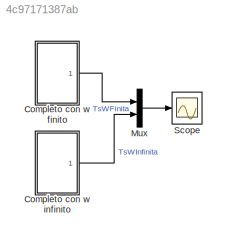
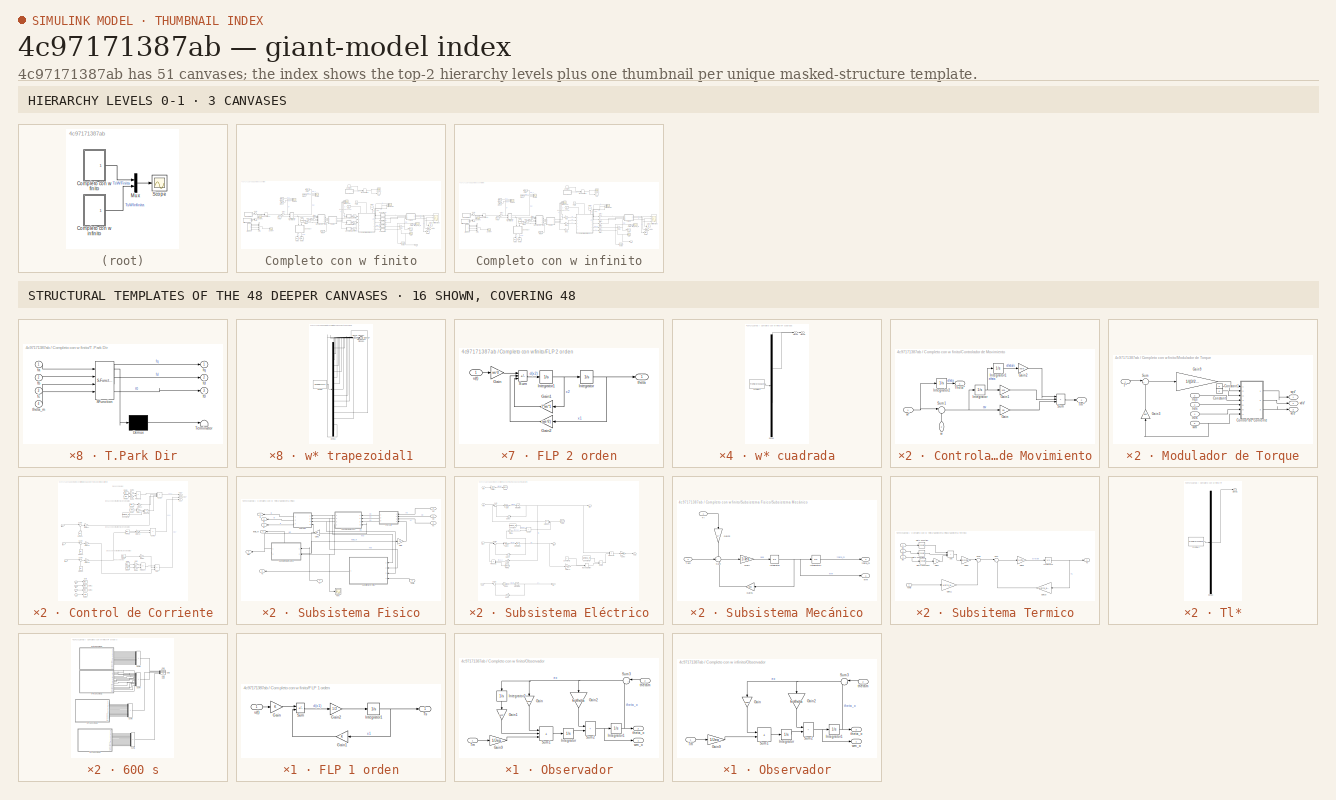
[diagram: thumbnail index - top-2 hierarchy levels (3 canvases) + 16 structural-template representatives of the remaining 48 canvases]
MODEL slx_4c97171387ab
KIND model
CONFIG AbsTol = auto
CONFIG EnableMultiTasking = off
CONFIG FixedStep = auto
CONFIG MaxStep = 1e-4
CONFIG MinStep = auto
CONFIG RelTol = 1e-4
CONFIG SampleTimeConstraint = Unconstrained
CONFIG SolverName = VariableStepAuto
CONFIG StartTime = 0.0
CONFIG StopTime = 25
WORKSPACE source: mxarray member
WORKSPACE Cts = 0.818
WORKSPACE Jeq = 5.65099476805e-06
WORKSPACE Ld = 0.0066
WORKSPACE Lls = 0.0008
WORKSPACE Lq = 0.0058
WORKSPACE Pp = 3
WORKSPACE Rs = 1.02
WORKSPACE Rts_amb = 146.7
WORKSPACE beq = 1.5e-05
WORKSPACE lambda_m = 0.01546
WORKSPACE r = 314.3008
WORKSPACE ws = 15000
WORKSPACE wsv = 30000
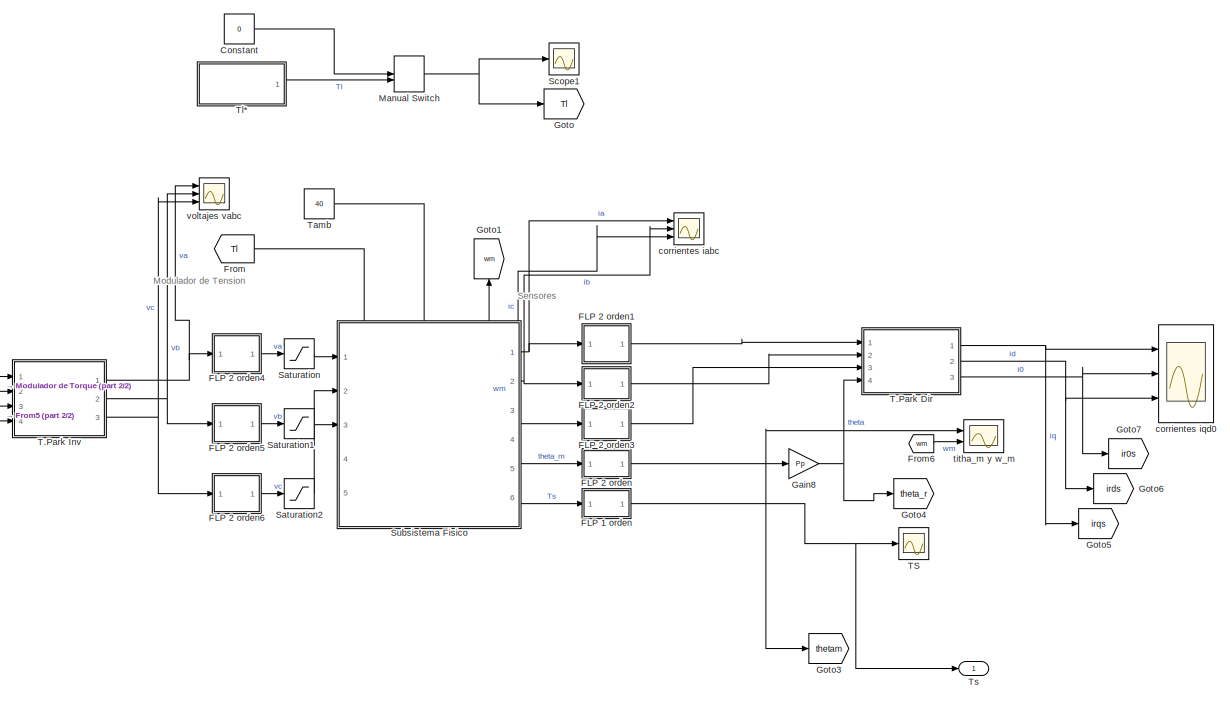
[diagram: Completo con w finito - part 1/2, right side, full height]
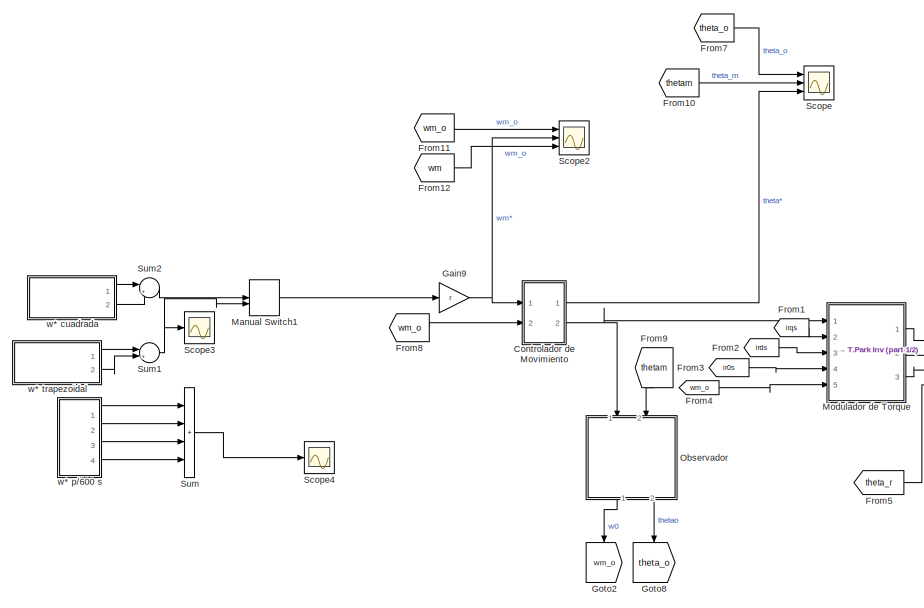
[diagram: Completo con w finito - part 2/2, left side, full height]
BLOCK [SubSystem] Completo con w finito
  Ports = [0, 1]
  RequestExecContextInheritance = off
BLOCK [Constant] Completo con w finito/Constant
  Value = 0
BLOCK [SubSystem] Completo con w finito/Controlador de Movimiento
  Ports = [2, 2]
  RequestExecContextInheritance = off
BLOCK [Gain] Completo con w finito/Controlador de Movimiento/Gain
  Gain = ba
BLOCK [Gain] Completo con w finito/Controlador de Movimiento/Gain1
  Gain = ksa
BLOCK [Gain] Completo con w finito/Controlador de Movimiento/Gain2
  Gain = ksia
BLOCK [Integrator] Completo con w finito/Controlador de Movimiento/Integrator
  Ports = [1, 1]
BLOCK [Integrator] Completo con w finito/Controlador de Movimiento/Integrator1
  Ports = [1, 1]
BLOCK [Integrator] Completo con w finito/Controlador de Movimiento/Integrator2
  Ports = [1, 1]
BLOCK [Sum] Completo con w finito/Controlador de Movimiento/Sum
  IconShape = rectangular
  Inputs = |+++
  Ports = [3, 1]
BLOCK [Sum] Completo con w finito/Controlador de Movimiento/Sum1
  Inputs = |+-
  Ports = [2, 1]
BLOCK [Outport] Completo con w finito/Controlador de Movimiento/Theta*
BLOCK [Outport] Completo con w finito/Controlador de Movimiento/Tm*'
  Port = 2
BLOCK [Inport] Completo con w finito/Controlador de Movimiento/w
  NameLocation = right
  Port = 2
BLOCK [Inport] Completo con w finito/Controlador de Movimiento/w*
BLOCK [SubSystem] Completo con w finito/FLP 1 orden
  Ports = [1, 1]
  RequestExecContextInheritance = off
BLOCK [Gain] Completo con w finito/FLP 1 orden/Gain
BLOCK [Gain] Completo con w finito/FLP 1 orden/Gain1
  NameLocation = top
BLOCK [Gain] Completo con w finito/FLP 1 orden/Gain2
  Gain = 1/2
BLOCK [Integrator] Completo con w finito/FLP 1 orden/Integrator1
  InitialCondition = 40
  Ports = [1, 1]
BLOCK [Sum] Completo con w finito/FLP 1 orden/Sum
  IconShape = rectangular
  Inputs = |+|-
  Ports = [2, 1]
BLOCK [Outport] Completo con w finito/FLP 1 orden/Ts
BLOCK [Inport] Completo con w finito/FLP 1 orden/u(t)
BLOCK [SubSystem] Completo con w finito/FLP 2 orden
  Ports = [1, 1]
  RequestExecContextInheritance = off
BLOCK [Gain] Completo con w finito/FLP 2 orden/Gain
  Gain = ws^2
BLOCK [Gain] Completo con w finito/FLP 2 orden/Gain1
  Gain = 2*ws*1
  NameLocation = top
BLOCK [Gain] Completo con w finito/FLP 2 orden/Gain2
  Gain = (ws^2)
  NameLocation = top
BLOCK [Integrator] Completo con w finito/FLP 2 orden/Integrator
  Ports = [1, 1]
BLOCK [Integrator] Completo con w finito/FLP 2 orden/Integrator1
  Ports = [1, 1]
BLOCK [Sum] Completo con w finito/FLP 2 orden/Sum
  IconShape = rectangular
  Inputs = |+|-|-
  Ports = [3, 1]
BLOCK [Outport] Completo con w finito/FLP 2 orden/theta
BLOCK [Inport] Completo con w finito/FLP 2 orden/u(t)
BLOCK [SubSystem] Completo con w finito/FLP 2 orden1
  Ports = [1, 1]
  RequestExecContextInheritance = off
BLOCK [Gain] Completo con w finito/FLP 2 orden1/Gain
  Gain = ws^2
BLOCK [Gain] Completo con w finito/FLP 2 orden1/Gain1
  Gain = 2*ws*1
  NameLocation = top
BLOCK [Gain] Completo con w finito/FLP 2 orden1/Gain2
  Gain = (ws^2)
  NameLocation = top
BLOCK [Integrator] Completo con w finito/FLP 2 orden1/Integrator
  Ports = [1, 1]
BLOCK [Integrator] Completo con w finito/FLP 2 orden1/Integrator1
  Ports = [1, 1]
BLOCK [Sum] Completo con w finito/FLP 2 orden1/Sum
  IconShape = rectangular
  Inputs = |+|-|-
  Ports = [3, 1]
BLOCK [Outport] Completo con w finito/FLP 2 orden1/ia
BLOCK [Inport] Completo con w finito/FLP 2 orden1/u(t)
BLOCK [SubSystem] Completo con w finito/FLP 2 orden2
  Ports = [1, 1]
  RequestExecContextInheritance = off
BLOCK [Gain] Completo con w finito/FLP 2 orden2/Gain
  Gain = ws^2
BLOCK [Gain] Completo con w finito/FLP 2 orden2/Gain1
  Gain = 2*ws*1
  NameLocation = top
BLOCK [Gain] Completo con w finito/FLP 2 orden2/Gain2
  Gain = (ws^2)
  NameLocation = top
BLOCK [Integrator] Completo con w finito/FLP 2 orden2/Integrator
  Ports = [1, 1]
BLOCK [Integrator] Completo con w finito/FLP 2 orden2/Integrator1
  Ports = [1, 1]
BLOCK [Sum] Completo con w finito/FLP 2 orden2/Sum
  IconShape = rectangular
  Inputs = |+|-|-
  Ports = [3, 1]
BLOCK [Outport] Completo con w finito/FLP 2 orden2/ib
BLOCK [Inport] Completo con w finito/FLP 2 orden2/u(t)
BLOCK [SubSystem] Completo con w finito/FLP 2 orden3
  Ports = [1, 1]
  RequestExecContextInheritance = off
BLOCK [Gain] Completo con w finito/FLP 2 orden3/Gain
  Gain = ws^2
BLOCK [Gain] Completo con w finito/FLP 2 orden3/Gain1
  Gain = 2*ws*1
  NameLocation = top
BLOCK [Gain] Completo con w finito/FLP 2 orden3/Gain2
  Gain = (ws^2)
  NameLocation = top
BLOCK [Integrator] Completo con w finito/FLP 2 orden3/Integrator
  Ports = [1, 1]
BLOCK [Integrator] Completo con w finito/FLP 2 orden3/Integrator1
  Ports = [1, 1]
BLOCK [Sum] Completo con w finito/FLP 2 orden3/Sum
  IconShape = rectangular
  Inputs = |+|-|-
  Ports = [3, 1]
BLOCK [Outport] Completo con w finito/FLP 2 orden3/ic
BLOCK [Inport] Completo con w finito/FLP 2 orden3/u(t)
BLOCK [SubSystem] Completo con w finito/FLP 2 orden4
  Ports = [1, 1]
  RequestExecContextInheritance = off
BLOCK [Gain] Completo con w finito/FLP 2 orden4/Gain
  Gain = wsv^2
BLOCK [Gain] Completo con w finito/FLP 2 orden4/Gain1
  Gain = 2*wsv*1
  NameLocation = top
BLOCK [Gain] Completo con w finito/FLP 2 orden4/Gain2
  Gain = (wsv^2)
  NameLocation = top
BLOCK [Integrator] Completo con w finito/FLP 2 orden4/Integrator
  Ports = [1, 1]
BLOCK [Integrator] Completo con w finito/FLP 2 orden4/Integrator1
  Ports = [1, 1]
BLOCK [Sum] Completo con w finito/FLP 2 orden4/Sum
  IconShape = rectangular
  Inputs = |+|-|-
  Ports = [3, 1]
BLOCK [Inport] Completo con w finito/FLP 2 orden4/u(t)
BLOCK [Outport] Completo con w finito/FLP 2 orden4/va
BLOCK [SubSystem] Completo con w finito/FLP 2 orden5
  Ports = [1, 1]
  RequestExecContextInheritance = off
BLOCK [Gain] Completo con w finito/FLP 2 orden5/Gain
  Gain = wsv^2
BLOCK [Gain] Completo con w finito/FLP 2 orden5/Gain1
  Gain = 2*wsv*1
  NameLocation = top
BLOCK [Gain] Completo con w finito/FLP 2 orden5/Gain2
  Gain = (wsv^2)
  NameLocation = top
BLOCK [Integrator] Completo con w finito/FLP 2 orden5/Integrator
  Ports = [1, 1]
BLOCK [Integrator] Completo con w finito/FLP 2 orden5/Integrator1
  Ports = [1, 1]
BLOCK [Sum] Completo con w finito/FLP 2 orden5/Sum
  IconShape = rectangular
  Inputs = |+|-|-
  Ports = [3, 1]
BLOCK [Inport] Completo con w finito/FLP 2 orden5/u(t)
BLOCK [Outport] Completo con w finito/FLP 2 orden5/vb
BLOCK [SubSystem] Completo con w finito/FLP 2 orden6
  Ports = [1, 1]
  RequestExecContextInheritance = off
BLOCK [Gain] Completo con w finito/FLP 2 orden6/Gain
  Gain = wsv^2
BLOCK [Gain] Completo con w finito/FLP 2 orden6/Gain1
  Gain = 2*wsv*1
  NameLocation = top
BLOCK [Gain] Completo con w finito/FLP 2 orden6/Gain2
  Gain = (wsv^2)
  NameLocation = top
BLOCK [Integrator] Completo con w finito/FLP 2 orden6/Integrator
  Ports = [1, 1]
BLOCK [Integrator] Completo con w finito/FLP 2 orden6/Integrator1
  Ports = [1, 1]
BLOCK [Sum] Completo con w finito/FLP 2 orden6/Sum
  IconShape = rectangular
  Inputs = |+|-|-
  Ports = [3, 1]
BLOCK [Inport] Completo con w finito/FLP 2 orden6/u(t)
BLOCK [Outport] Completo con w finito/FLP 2 orden6/vc
BLOCK [From] Completo con w finito/From
  GotoTag = Tl
BLOCK [From] Completo con w finito/From1
  GotoTag = irqs
BLOCK [From] Completo con w finito/From10
  GotoTag = thetam
BLOCK [From] Completo con w finito/From11
  GotoTag = wm_o
BLOCK [From] Completo con w finito/From12
  GotoTag = wm
BLOCK [From] Completo con w finito/From2
  GotoTag = irds
BLOCK [From] Completo con w finito/From3
  GotoTag = ir0s
BLOCK [From] Completo con w finito/From4
  GotoTag = wm_o
BLOCK [From] Completo con w finito/From5
  GotoTag = theta_r
BLOCK [From] Completo con w finito/From6
  GotoTag = wm
BLOCK [From] Completo con w finito/From7
  GotoTag = theta_o
BLOCK [From] Completo con w finito/From8
  GotoTag = wm_o
BLOCK [From] Completo con w finito/From9
  GotoTag = thetam
  NameLocation = left
BLOCK [Gain] Completo con w finito/Gain8
  Gain = Pp
BLOCK [Gain] Completo con w finito/Gain9
  Gain = r
BLOCK [Goto] Completo con w finito/Goto
  GotoTag = Tl
BLOCK [Goto] Completo con w finito/Goto1
  GotoTag = wm
  NameLocation = right
BLOCK [Goto] Completo con w finito/Goto2
  GotoTag = wm_o
  NameLocation = left
BLOCK [Goto] Completo con w finito/Goto3
  GotoTag = thetam
BLOCK [Goto] Completo con w finito/Goto4
  GotoTag = theta_r
BLOCK [Goto] Completo con w finito/Goto5
  GotoTag = irqs
BLOCK [Goto] Completo con w finito/Goto6
  GotoTag = irds
BLOCK [Goto] Completo con w finito/Goto7
  GotoTag = ir0s
BLOCK [Goto] Completo con w finito/Goto8
  GotoTag = theta_o
  NameLocation = left
BLOCK [ManualSwitch] Completo con w finito/Manual Switch
  CurrentSetting = 0
BLOCK [ManualSwitch] Completo con w finito/Manual Switch1
  CurrentSetting = 0
BLOCK [SubSystem] Completo con w finito/Modulador de Torque
  Ports = [5, 3]
  RequestExecContextInheritance = off
BLOCK [Constant] Completo con w finito/Modulador de Torque/Constant
  Value = 0
BLOCK [Constant] Completo con w finito/Modulador de Torque/Constant1
  Value = 0
BLOCK [SubSystem] Completo con w finito/Modulador de Torque/Control de Corriente
  Ports = [7, 3]
  RequestExecContextInheritance = off
BLOCK [Sum] Completo con w finito/Modulador de Torque/Control de Corriente/Add
  IconShape = rectangular
  Inputs = |-++
  NameLocation = top
  Ports = [3, 1]
BLOCK [Constant] Completo con w finito/Modulador de Torque/Control de Corriente/Constant1
  Value = lambda_m
BLOCK [From] Completo con w finito/Modulador de Torque/Control de Corriente/From
  GotoTag = irqs
BLOCK [From] Completo con w finito/Modulador de Torque/Control de Corriente/From12
  GotoTag = ir0s
BLOCK [From] Completo con w finito/Modulador de Torque/Control de Corriente/From13
  GotoTag = irds
  NameLocation = right
BLOCK [From] Completo con w finito/Modulador de Torque/Control de Corriente/From14
  GotoTag = irqs
  NameLocation = right
BLOCK [From] Completo con w finito/Modulador de Torque/Control de Corriente/From15
  GotoTag = ir0s
  NameLocation = right
BLOCK [From] Completo con w finito/Modulador de Torque/Control de Corriente/From2
  GotoTag = irds
  NameLocation = top
BLOCK [From] Completo con w finito/Modulador de Torque/Control de Corriente/From3
  GotoTag = wm
  NameLocation = top
BLOCK [From] Completo con w finito/Modulador de Torque/Control de Corriente/From4
  GotoTag = wm
  NameLocation = top
BLOCK [From] Completo con w finito/Modulador de Torque/Control de Corriente/From5
  GotoTag = wm
  NameLocation = top
BLOCK [From] Completo con w finito/Modulador de Torque/Control de Corriente/From6
  GotoTag = irds
BLOCK [From] Completo con w finito/Modulador de Torque/Control de Corriente/From9
  GotoTag = irqs
BLOCK [Gain] Completo con w finito/Modulador de Torque/Control de Corriente/Gain
  Gain = Lq
BLOCK [Gain] Completo con w finito/Modulador de Torque/Control de Corriente/Gain1
  Gain = Pp
BLOCK [Gain] Completo con w finito/Modulador de Torque/Control de Corriente/Gain13
  Gain = Rs
BLOCK [Gain] Completo con w finito/Modulador de Torque/Control de Corriente/Gain15
  Gain = Rs
BLOCK [Gain] Completo con w finito/Modulador de Torque/Control de Corriente/Gain16
  Gain = Rd
BLOCK [Gain] Completo con w finito/Modulador de Torque/Control de Corriente/Gain17
  Gain = Rq
BLOCK [Gain] Completo con w finito/Modulador de Torque/Control de Corriente/Gain18
  Gain = R0
BLOCK [Gain] Completo con w finito/Modulador de Torque/Control de Corriente/Gain3
  Gain = Rs
BLOCK [Gain] Completo con w finito/Modulador de Torque/Control de Corriente/Gain4
  Gain = Pp
BLOCK [Gain] Completo con w finito/Modulador de Torque/Control de Corriente/Gain5
  Gain = Pp
BLOCK [Gain] Completo con w finito/Modulador de Torque/Control de Corriente/Gain6
  Gain = Ld
BLOCK [Goto] Completo con w finito/Modulador de Torque/Control de Corriente/Goto
  GotoTag = irqs
BLOCK [Goto] Completo con w finito/Modulador de Torque/Control de Corriente/Goto1
  GotoTag = irds
BLOCK [Goto] Completo con w finito/Modulador de Torque/Control de Corriente/Goto2
  GotoTag = ir0s
BLOCK [Goto] Completo con w finito/Modulador de Torque/Control de Corriente/Goto3
  GotoTag = wm
BLOCK [Inport] Completo con w finito/Modulador de Torque/Control de Corriente/Ir0s
  Port = 6
BLOCK [Inport] Completo con w finito/Modulador de Torque/Control de Corriente/Ir0s*
  Port = 3
BLOCK [Inport] Completo con w finito/Modulador de Torque/Control de Corriente/Irds
  Port = 5
BLOCK [Inport] Completo con w finito/Modulador de Torque/Control de Corriente/Irds*
  Port = 2
BLOCK [Inport] Completo con w finito/Modulador de Torque/Control de Corriente/Irqs
  Port = 4
BLOCK [Inport] Completo con w finito/Modulador de Torque/Control de Corriente/Irqs*
BLOCK [Product] Completo con w finito/Modulador de Torque/Control de Corriente/Product
  NameLocation = top
  Ports = [2, 1]
BLOCK [Product] Completo con w finito/Modulador de Torque/Control de Corriente/Product1
  NameLocation = top
  Ports = [2, 1]
BLOCK [Product] Completo con w finito/Modulador de Torque/Control de Corriente/Product3
  NameLocation = top
  Ports = [2, 1]
BLOCK [Sum] Completo con w finito/Modulador de Torque/Control de Corriente/Sum1
  IconShape = rectangular
  Inputs = |++++
  Ports = [4, 1]
BLOCK [Sum] Completo con w finito/Modulador de Torque/Control de Corriente/Sum2
  IconShape = rectangular
  Inputs = |++
  Ports = [2, 1]
BLOCK [Sum] Completo con w finito/Modulador de Torque/Control de Corriente/Sum4
  Inputs = |+-
  Ports = [2, 1]
BLOCK [Sum] Completo con w finito/Modulador de Torque/Control de Corriente/Sum5
  Inputs = |+-
  Ports = [2, 1]
BLOCK [Sum] Completo con w finito/Modulador de Torque/Control de Corriente/Sum6
  Inputs = |+-
  Ports = [2, 1]
BLOCK [Outport] Completo con w finito/Modulador de Torque/Control de Corriente/v0s*
  Port = 3
BLOCK [Outport] Completo con w finito/Modulador de Torque/Control de Corriente/vds*
  Port = 2
BLOCK [Outport] Completo con w finito/Modulador de Torque/Control de Corriente/vqs*
BLOCK [Inport] Completo con w finito/Modulador de Torque/Control de Corriente/wm
  Port = 7
BLOCK [Gain] Completo con w finito/Modulador de Torque/Gain3
  Gain = beq
  NameLocation = right
BLOCK [Gain] Completo con w finito/Modulador de Torque/Gain9
  Gain = 1/((3/2)*Pp*lambda_m)
BLOCK [Inport] Completo con w finito/Modulador de Torque/Ir0s
  Port = 4
BLOCK [Inport] Completo con w finito/Modulador de Torque/Irds
  Port = 3
BLOCK [Inport] Completo con w finito/Modulador de Torque/Irqs
  Port = 2
BLOCK [Sum] Completo con w finito/Modulador de Torque/Sum
  Inputs = |++
  Ports = [2, 1]
BLOCK [Inport] Completo con w finito/Modulador de Torque/T*
BLOCK [Outport] Completo con w finito/Modulador de Torque/v0s*
  Port = 3
BLOCK [Outport] Completo con w finito/Modulador de Torque/vds*
  Port = 2
BLOCK [Outport] Completo con w finito/Modulador de Torque/vqs*
BLOCK [Inport] Completo con w finito/Modulador de Torque/wm
  Port = 5
BLOCK [SubSystem] Completo con w finito/Observador
  NameLocation = left
  Ports = [2, 2]
  RequestExecContextInheritance = off
BLOCK [Gain] Completo con w finito/Observador/Gain
  Gain = kow
  NameLocation = left
BLOCK [Gain] Completo con w finito/Observador/Gain1
  Gain = koTl
  NameLocation = left
BLOCK [Gain] Completo con w finito/Observador/Gain2
  Gain = kotheta
  NameLocation = left
BLOCK [Gain] Completo con w finito/Observador/Gain9
  Gain = 1/Jeq
BLOCK [Integrator] Completo con w finito/Observador/Integrator
  Ports = [1, 1]
BLOCK [Integrator] Completo con w finito/Observador/Integrator1
  Ports = [1, 1]
BLOCK [Integrator] Completo con w finito/Observador/Integrator2
  NameLocation = left
  Ports = [1, 1]
BLOCK [Sum] Completo con w finito/Observador/Sum1
  IconShape = rectangular
  Inputs = +|+|+
  Ports = [3, 1]
BLOCK [Sum] Completo con w finito/Observador/Sum2
  IconShape = rectangular
  Inputs = +|+
  Ports = [2, 1]
BLOCK [Sum] Completo con w finito/Observador/Sum3
  Inputs = |+-
  NameLocation = top
  Ports = [2, 1]
BLOCK [Inport] Completo con w finito/Observador/Tm
BLOCK [Outport] Completo con w finito/Observador/theta_o
  Port = 2
BLOCK [Inport] Completo con w finito/Observador/thetam
  NameLocation = top
  Port = 2
BLOCK [Outport] Completo con w finito/Observador/wm_o
BLOCK [Saturate] Completo con w finito/Saturation
  LowerLimit = -19.59
  UpperLimit = 19.59
BLOCK [Saturate] Completo con w finito/Saturation1
  LowerLimit = -19.59
  UpperLimit = 19.59
BLOCK [Saturate] Completo con w finito/Saturation2
  LowerLimit = -19.59
  UpperLimit = 19.59
BLOCK [Scope] Completo con w finito/Scope
  Floating = off
  NumInputPorts = 3
  Ports = [3]
  ScopeSpecificationString = Simulink.scopes.TimeScopeBlockCfg('CurrentConfiguration', extmgr.ConfigurationSet(extmgr.Configuration('Core','General UI',true,'FigureColor',[1 1 1]),extmgr.Configuration('Core','Source UI',true),extmgr.Configuration('Sources','WiredSimulink',true,'DataLoggingVariableName','ScopeData1'),extmgr.Configuration('Visuals','Time Domain',true,'SerializedDisplays',{struct('MinYLimReal','-348.95099','MaxY...<+1764ch>
BLOCK [Scope] Completo con w finito/Scope1
  Floating = off
  NumInputPorts = 1
  Ports = [1]
  ScopeSpecificationString = Simulink.scopes.TimeScopeBlockCfg('CurrentConfiguration', extmgr.ConfigurationSet(extmgr.Configuration('Core','General UI',true,'FigureColor',[1 1 1]),extmgr.Configuration('Core','Source UI',true),extmgr.Configuration('Sources','WiredSimulink',true,'DataLoggingVariableName','ScopeData1'),extmgr.Configuration('Visuals','Time Domain',true,'SerializedDisplays',{struct('MinYLimReal','-0.785','MaxYLimR...<+1509ch>
BLOCK [Scope] Completo con w finito/Scope2
  Floating = off
  NumInputPorts = 3
  Ports = [3]
  ScopeSpecificationString = Simulink.scopes.TimeScopeBlockCfg('CurrentConfiguration', extmgr.ConfigurationSet(extmgr.Configuration('Core','General UI',true,'FigureColor',[1 1 1]),extmgr.Configuration('Core','Source UI',true),extmgr.Configuration('Sources','WiredSimulink',true,'DataLoggingVariableName','ScopeData2'),extmgr.Configuration('Visuals','Time Domain',true,'SerializedDisplays',{struct('MinYLimReal','-494.6986','MaxYL...<+2007ch>
BLOCK [Scope] Completo con w finito/Scope3
  Floating = off
  NumInputPorts = 1
  Ports = [1]
  ScopeSpecificationString = Simulink.scopes.TimeScopeBlockCfg('CurrentConfiguration', extmgr.ConfigurationSet(extmgr.Configuration('Core','General UI',true),extmgr.Configuration('Core','Source UI',true),extmgr.Configuration('Sources','WiredSimulink',true,'DataLoggingVariableName','ScopeData1'),extmgr.Configuration('Visuals','Time Domain',true,'SerializedDisplays',{struct('MinYLimReal','-1.5708','MaxYLimReal','1.5708','YLabel...<+1357ch>
BLOCK [Scope] Completo con w finito/Scope4
  Floating = off
  NumInputPorts = 1
  Ports = [1]
  ScopeSpecificationString = Simulink.scopes.TimeScopeBlockCfg('CurrentConfiguration', extmgr.ConfigurationSet(extmgr.Configuration('Core','General UI',true,'FigureColor',[1 1 1]),extmgr.Configuration('Core','Source UI',true),extmgr.Configuration('Sources','WiredSimulink',true,'DataLoggingVariableName','ScopeData2'),extmgr.Configuration('Visuals','Time Domain',true,'SerializedDisplays',{struct('MinYLimReal','-1.5708','MaxYLim...<+1505ch>
BLOCK [SubSystem] Completo con w finito/Subsistema Fisico
  PortSchema = {"entries":[{"content":{"sides":[{"content":{"connectorIds":["In1","In2","In3"]},"type":"ConnectorPlacement.EquallySpacedRectSide","uuid":"428e53fe-c6d6-4999-95eb-db171c1d7752"},{"content":{"connectorIds":["Out1","Out2","Out3","Out4","Out5"],"side":"RIGHT"},"type":"ConnectorPlacement.EquallySpacedRectSide","uuid":"d3984cce-d898-4b9d-ab92-7967eebad5db"},{"content":{"connectorIds":["In4","In5","Out6...<+586ch>
  Ports = [5, 6]
  RequestExecContextInheritance = off
BLOCK [Gain] Completo con w finito/Subsistema Fisico/Gain
  Gain = Pp
BLOCK [Gain] Completo con w finito/Subsistema Fisico/Gain1
  Gain = Pp
BLOCK [SubSystem] Completo con w finito/Subsistema Fisico/Subsistema Eléctrico
  Ports = [4, 4]
  RequestExecContextInheritance = off
BLOCK [Constant] Completo con w finito/Subsistema Fisico/Subsistema Eléctrico/Constant
  Value = lambda_m
BLOCK [Constant] Completo con w finito/Subsistema Fisico/Subsistema Eléctrico/Constant1
  Value = lambda_m
BLOCK [Constant] Completo con w finito/Subsistema Fisico/Subsistema Eléctrico/Constant2
  Value = 0
BLOCK [From] Completo con w finito/Subsistema Fisico/Subsistema Eléctrico/From
  GotoTag = wmxPp
BLOCK [From] Completo con w finito/Subsistema Fisico/Subsistema Eléctrico/From1
  GotoTag = wmxPp
BLOCK [Gain] Completo con w finito/Subsistema Fisico/Subsistema Eléctrico/Gain
  Gain = 1/Lq
BLOCK [Gain] Completo con w finito/Subsistema Fisico/Subsistema Eléctrico/Gain1
  Gain = Rs
BLOCK [Gain] Completo con w finito/Subsistema Fisico/Subsistema Eléctrico/Gain10
  Gain = Ld-Lq
BLOCK [Gain] Completo con w finito/Subsistema Fisico/Subsistema Eléctrico/Gain2
  Gain = 1/Ld
BLOCK [Gain] Completo con w finito/Subsistema Fisico/Subsistema Eléctrico/Gain3
  Gain = Rs
BLOCK [Gain] Completo con w finito/Subsistema Fisico/Subsistema Eléctrico/Gain4
  Gain = Ld
BLOCK [Gain] Completo con w finito/Subsistema Fisico/Subsistema Eléctrico/Gain5
  Gain = 1/Lls
BLOCK [Gain] Completo con w finito/Subsistema Fisico/Subsistema Eléctrico/Gain6
  Gain = Rs
BLOCK [Gain] Completo con w finito/Subsistema Fisico/Subsistema Eléctrico/Gain7
  Gain = Pp
BLOCK [Gain] Completo con w finito/Subsistema Fisico/Subsistema Eléctrico/Gain8
  Gain = Lq
BLOCK [Gain] Completo con w finito/Subsistema Fisico/Subsistema Eléctrico/Gain9
  Gain = 3/2*Pp
BLOCK [Goto] Completo con w finito/Subsistema Fisico/Subsistema Eléctrico/Goto
  GotoTag = wmxPp
BLOCK [Integrator] Completo con w finito/Subsistema Fisico/Subsistema Eléctrico/Integrator
  Ports = [1, 1]
BLOCK [Integrator] Completo con w finito/Subsistema Fisico/Subsistema Eléctrico/Integrator1
  Ports = [1, 1]
BLOCK [Integrator] Completo con w finito/Subsistema Fisico/Subsistema Eléctrico/Integrator2
  Ports = [1, 1]
BLOCK [ManualSwitch] Completo con w finito/Subsistema Fisico/Subsistema Eléctrico/Manual Switch
BLOCK [Product] Completo con w finito/Subsistema Fisico/Subsistema Eléctrico/Product
  Ports = [2, 1]
BLOCK [Product] Completo con w finito/Subsistema Fisico/Subsistema Eléctrico/Product1
  Ports = [2, 1]
BLOCK [Product] Completo con w finito/Subsistema Fisico/Subsistema Eléctrico/Product2
  Ports = [2, 1]
BLOCK [Sum] Completo con w finito/Subsistema Fisico/Subsistema Eléctrico/Sum
  Inputs = |+--
  Ports = [3, 1]
BLOCK [Sum] Completo con w finito/Subsistema Fisico/Subsistema Eléctrico/Sum1
  Inputs = |++-
  Ports = [3, 1]
BLOCK [Sum] Completo con w finito/Subsistema Fisico/Subsistema Eléctrico/Sum2
  Inputs = |+-
  Ports = [2, 1]
BLOCK [Sum] Completo con w finito/Subsistema Fisico/Subsistema Eléctrico/Sum3
  IconShape = rectangular
  Ports = [2, 1]
BLOCK [Sum] Completo con w finito/Subsistema Fisico/Subsistema Eléctrico/Sum4
  IconShape = rectangular
  Ports = [2, 1]
BLOCK [Outport] Completo con w finito/Subsistema Fisico/Subsistema Eléctrico/Tem
  Port = 4
BLOCK [Outport] Completo con w finito/Subsistema Fisico/Subsistema Eléctrico/i0s
  Port = 3
BLOCK [Outport] Completo con w finito/Subsistema Fisico/Subsistema Eléctrico/irds
  Port = 2
BLOCK [Outport] Completo con w finito/Subsistema Fisico/Subsistema Eléctrico/irqs
BLOCK [Inport] Completo con w finito/Subsistema Fisico/Subsistema Eléctrico/v0s
  Port = 3
BLOCK [Inport] Completo con w finito/Subsistema Fisico/Subsistema Eléctrico/vrds
  Port = 2
BLOCK [Inport] Completo con w finito/Subsistema Fisico/Subsistema Eléctrico/vrqs
BLOCK [Inport] Completo con w finito/Subsistema Fisico/Subsistema Eléctrico/wm
  Port = 4
BLOCK [SubSystem] Completo con w finito/Subsistema Fisico/Subsistema Mecánico
  PortSchema = {"entries":[{"content":{"sides":[{"content":{"connectorIds":["In1","In2"]},"type":"ConnectorPlacement.EquallySpacedRectSide","uuid":"ee0e19e9-1195-452b-ab3d-8be3dd040414"},{"content":{"connectorIds":["Out1"],"side":"RIGHT"},"type":"ConnectorPlacement.EquallySpacedRectSide","uuid":"524e54e6-4967-4b42-ae12-58774e9397a0"},{"content":{"connectorIds":["Out2"],"side":"TOP"},"type":"ConnectorPlacement.Eq...<+396ch>
  Ports = [2, 2]
  RequestExecContextInheritance = off
BLOCK [Gain] Completo con w finito/Subsistema Fisico/Subsistema Mecánico/Gain
  Gain = 1/Jeq
BLOCK [Gain] Completo con w finito/Subsistema Fisico/Subsistema Mecánico/Gain1
  Gain = beq
BLOCK [Gain] Completo con w finito/Subsistema Fisico/Subsistema Mecánico/Gain2
  Gain = 1/r
  NameLocation = left
BLOCK [Integrator] Completo con w finito/Subsistema Fisico/Subsistema Mecánico/Integrator
  Ports = [1, 1]
BLOCK [Integrator] Completo con w finito/Subsistema Fisico/Subsistema Mecánico/Integrator1
  Ports = [1, 1]
BLOCK [Sum] Completo con w finito/Subsistema Fisico/Subsistema Mecánico/Sum
  Inputs = -+-
  Ports = [3, 1]
BLOCK [Inport] Completo con w finito/Subsistema Fisico/Subsistema Mecánico/Tem
  Port = 2
BLOCK [Inport] Completo con w finito/Subsistema Fisico/Subsistema Mecánico/Tl
BLOCK [Outport] Completo con w finito/Subsistema Fisico/Subsistema Mecánico/theta_m
  Port = 2
BLOCK [Outport] Completo con w finito/Subsistema Fisico/Subsistema Mecánico/wm
BLOCK [SubSystem] Completo con w finito/Subsistema Fisico/Subsitema Termico
  Ports = [4, 1]
  RequestExecContextInheritance = off
BLOCK [Sum] Completo con w finito/Subsistema Fisico/Subsitema Termico/Add
  IconShape = rectangular
  Inputs = +++
  Ports = [3, 1]
BLOCK [Gain] Completo con w finito/Subsistema Fisico/Subsitema Termico/Gain10
  Gain = 1/Rts_amb
BLOCK [Gain] Completo con w finito/Subsistema Fisico/Subsitema Termico/Gain11
  Gain = 1/Rts_amb
BLOCK [Gain] Completo con w finito/Subsistema Fisico/Subsitema Termico/Gain7
  Gain = 2
BLOCK [Gain] Completo con w finito/Subsistema Fisico/Subsitema Termico/Gain8
  Gain = 3/2*Rs
BLOCK [Gain] Completo con w finito/Subsistema Fisico/Subsitema Termico/Gain9
  Gain = 1/Cts
BLOCK [Integrator] Completo con w finito/Subsistema Fisico/Subsitema Termico/Integrator
  InitialCondition = 40
  Ports = [1, 1]
BLOCK [Math] Completo con w finito/Subsistema Fisico/Subsitema Termico/Math Function
  Operator = square
  Ports = [1, 1]
BLOCK [Math] Completo con w finito/Subsistema Fisico/Subsitema Termico/Math Function1
  Operator = square
  Ports = [1, 1]
BLOCK [Math] Completo con w finito/Subsistema Fisico/Subsitema Termico/Math Function2
  Operator = square
  Ports = [1, 1]
BLOCK [Sum] Completo con w finito/Subsistema Fisico/Subsitema Termico/Sum
  Inputs = |+-
  Ports = [2, 1]
BLOCK [Sum] Completo con w finito/Subsistema Fisico/Subsitema Termico/Sum1
  Inputs = |++
  Ports = [2, 1]
BLOCK [Inport] Completo con w finito/Subsistema Fisico/Subsitema Termico/Tamb
  Port = 4
BLOCK [Outport] Completo con w finito/Subsistema Fisico/Subsitema Termico/Ts
BLOCK [Inport] Completo con w finito/Subsistema Fisico/Subsitema Termico/i0s
  Port = 3
BLOCK [Inport] Completo con w finito/Subsistema Fisico/Subsitema Termico/ids
  Port = 2
BLOCK [Inport] Completo con w finito/Subsistema Fisico/Subsitema Termico/iqs
BLOCK [SubSystem] Completo con w finito/Subsistema Fisico/T.Park Dir
  ErrorFcn = Stateflow.Translate.translate
  PermitHierarchicalResolution = ExplicitOnly
  Ports = [4, 3]
  RequestExecContextInheritance = off
  SFBlockType = MATLAB Function
  TreatAsAtomicUnit = on
BLOCK [Demux] Completo con w finito/Subsistema Fisico/T.Park Dir/ Demux 
  Outputs = 1
  Ports = [1, 1]
BLOCK [S-Function] Completo con w finito/Subsistema Fisico/T.Park Dir/ SFunction 
  EnableBusSupport = on
  FunctionName = sf_sfun
  PortCounts = [4 4]
  Ports = [4, 4]
  SFcnIsStateOwnerBlock = off
  SFunctionDeploymentMode = off
  Tag = Stateflow S-Function 1
BLOCK [Terminator] Completo con w finito/Subsistema Fisico/T.Park Dir/ Terminator 
BLOCK [Outport] Completo con w finito/Subsistema Fisico/T.Park Dir/f0
  Port = 3
BLOCK [Inport] Completo con w finito/Subsistema Fisico/T.Park Dir/fa
BLOCK [Inport] Completo con w finito/Subsistema Fisico/T.Park Dir/fb
  Port = 2
BLOCK [Inport] Completo con w finito/Subsistema Fisico/T.Park Dir/fc
  Port = 3
BLOCK [Outport] Completo con w finito/Subsistema Fisico/T.Park Dir/fd
  Port = 2
BLOCK [Outport] Completo con w finito/Subsistema Fisico/T.Park Dir/fq
BLOCK [Inport] Completo con w finito/Subsistema Fisico/T.Park Dir/theta_m
  Port = 4
BLOCK [SubSystem] Completo con w finito/Subsistema Fisico/T.Park Inv
  ErrorFcn = Stateflow.Translate.translate
  PermitHierarchicalResolution = ExplicitOnly
  Ports = [4, 3]
  RequestExecContextInheritance = off
  SFBlockType = MATLAB Function
  TreatAsAtomicUnit = on
BLOCK [Demux] Completo con w finito/Subsistema Fisico/T.Park Inv/ Demux 
  Outputs = 1
  Ports = [1, 1]
BLOCK [S-Function] Completo con w finito/Subsistema Fisico/T.Park Inv/ SFunction 
  EnableBusSupport = on
  FunctionName = sf_sfun
  PortCounts = [4 4]
  Ports = [4, 4]
  SFcnIsStateOwnerBlock = off
  SFunctionDeploymentMode = off
  Tag = Stateflow S-Function 2
BLOCK [Terminator] Completo con w finito/Subsistema Fisico/T.Park Inv/ Terminator 
BLOCK [Inport] Completo con w finito/Subsistema Fisico/T.Park Inv/f0
  Port = 3
BLOCK [Outport] Completo con w finito/Subsistema Fisico/T.Park Inv/fa
BLOCK [Outport] Completo con w finito/Subsistema Fisico/T.Park Inv/fb
  Port = 2
BLOCK [Outport] Completo con w finito/Subsistema Fisico/T.Park Inv/fc
  Port = 3
BLOCK [Inport] Completo con w finito/Subsistema Fisico/T.Park Inv/fd
  Port = 2
BLOCK [Inport] Completo con w finito/Subsistema Fisico/T.Park Inv/fq
BLOCK [Inport] Completo con w finito/Subsistema Fisico/T.Park Inv/theta_m
  Port = 4
BLOCK [Inport] Completo con w finito/Subsistema Fisico/Tamb
  Port = 5
BLOCK [Scope] Completo con w finito/Subsistema Fisico/Tem
  Floating = off
  NumInputPorts = 1
  Ports = [1]
  ScopeSpecificationString = Simulink.scopes.TimeScopeBlockCfg('CurrentConfiguration', extmgr.ConfigurationSet(extmgr.Configuration('Core','General UI',true,'FigureColor',[1 1 1]),extmgr.Configuration('Core','Source UI',true),extmgr.Configuration('Sources','WiredSimulink',true,'DataLoggingVariableName','ScopeData3'),extmgr.Configuration('Visuals','Time Domain',true,'SerializedDisplays',{struct('MinYLimReal','-0.00463','MaxYLi...<+1753ch>
BLOCK [Inport] Completo con w finito/Subsistema Fisico/Tl
  Port = 4
BLOCK [Outport] Completo con w finito/Subsistema Fisico/Ts
  Port = 5
BLOCK [Outport] Completo con w finito/Subsistema Fisico/ia
BLOCK [Outport] Completo con w finito/Subsistema Fisico/ib
  Port = 2
BLOCK [Outport] Completo con w finito/Subsistema Fisico/ic
  Port = 3
BLOCK [Outport] Completo con w finito/Subsistema Fisico/theta_m
  Port = 4
BLOCK [Inport] Completo con w finito/Subsistema Fisico/va
BLOCK [Inport] Completo con w finito/Subsistema Fisico/vb
  Port = 2
BLOCK [Inport] Completo con w finito/Subsistema Fisico/vc
  Port = 3
BLOCK [Outport] Completo con w finito/Subsistema Fisico/wm
  Port = 6
BLOCK [Sum] Completo con w finito/Sum
  IconShape = rectangular
  Inputs = |+|+|+|+
  Ports = [4, 1]
BLOCK [Sum] Completo con w finito/Sum1
  Inputs = |++
  Ports = [2, 1]
BLOCK [Sum] Completo con w finito/Sum2
  Inputs = |++
  Ports = [2, 1]
BLOCK [SubSystem] Completo con w finito/T.Park Dir
  ErrorFcn = Stateflow.Translate.translate
  PermitHierarchicalResolution = ExplicitOnly
  Ports = [4, 3]
  RequestExecContextInheritance = off
  SFBlockType = MATLAB Function
  TreatAsAtomicUnit = on
BLOCK [Demux] Completo con w finito/T.Park Dir/ Demux 
  Outputs = 1
  Ports = [1, 1]
BLOCK [S-Function] Completo con w finito/T.Park Dir/ SFunction 
  EnableBusSupport = on
  FunctionName = sf_sfun
  PortCounts = [4 4]
  Ports = [4, 4]
  SFcnIsStateOwnerBlock = off
  SFunctionDeploymentMode = off
  Tag = Stateflow S-Function 3
BLOCK [Terminator] Completo con w finito/T.Park Dir/ Terminator 
BLOCK [Outport] Completo con w finito/T.Park Dir/f0
  Port = 3
BLOCK [Inport] Completo con w finito/T.Park Dir/fa
BLOCK [Inport] Completo con w finito/T.Park Dir/fb
  Port = 2
BLOCK [Inport] Completo con w finito/T.Park Dir/fc
  Port = 3
BLOCK [Outport] Completo con w finito/T.Park Dir/fd
  Port = 2
BLOCK [Outport] Completo con w finito/T.Park Dir/fq
BLOCK [Inport] Completo con w finito/T.Park Dir/theta_m
  Port = 4
BLOCK [SubSystem] Completo con w finito/T.Park Inv
  ErrorFcn = Stateflow.Translate.translate
  PermitHierarchicalResolution = ExplicitOnly
  Ports = [4, 3]
  RequestExecContextInheritance = off
  SFBlockType = MATLAB Function
  TreatAsAtomicUnit = on
BLOCK [Demux] Completo con w finito/T.Park Inv/ Demux 
  Outputs = 1
  Ports = [1, 1]
BLOCK [S-Function] Completo con w finito/T.Park Inv/ SFunction 
  EnableBusSupport = on
  FunctionName = sf_sfun
  PortCounts = [4 4]
  Ports = [4, 4]
  SFcnIsStateOwnerBlock = off
  SFunctionDeploymentMode = off
  Tag = Stateflow S-Function 4
BLOCK [Terminator] Completo con w finito/T.Park Inv/ Terminator 
BLOCK [Inport] Completo con w finito/T.Park Inv/f0
  Port = 3
BLOCK [Outport] Completo con w finito/T.Park Inv/fa
BLOCK [Outport] Completo con w finito/T.Park Inv/fb
  Port = 2
BLOCK [Outport] Completo con w finito/T.Park Inv/fc
  Port = 3
BLOCK [Inport] Completo con w finito/T.Park Inv/fd
  Port = 2
BLOCK [Inport] Completo con w finito/T.Park Inv/fq
BLOCK [Inport] Completo con w finito/T.Park Inv/theta_m
  Port = 4
BLOCK [Scope] Completo con w finito/TS
  Floating = off
  NumInputPorts = 1
  Ports = [1]
  ScopeSpecificationString = Simulink.scopes.TimeScopeBlockCfg('CurrentConfiguration', extmgr.ConfigurationSet(extmgr.Configuration('Core','General UI',true,'FigureColor',[1 1 1]),extmgr.Configuration('Core','Source UI',true),extmgr.Configuration('Sources','WiredSimulink',true,'DataLoggingVariableName','ScopeData1'),extmgr.Configuration('Visuals','Time Domain',true,'SerializedDisplays',{struct('MinYLimReal','39.55508','MaxYLi...<+1525ch>
BLOCK [Constant] Completo con w finito/Tamb
  Value = 40
BLOCK [SubSystem] Completo con w finito/Tl*
  ClipboardFcn = sigbuilder_block('clipboard');
  CloseFcn = sigbuilder_block('close');
  ContinueFcn = sigbuilder_block('continue');
  CopyFcn = sigbuilder_block('copy');
  DeleteFcn = sigbuilder_block('delete');
  LoadFcn = sigbuilder_block('load');
  MaskHideContents = on
  ModelCloseFcn = sigbuilder_block('modelClose');
  NameChangeFcn = sigbuilder_block('namechange');
  OpenFcn = sigbuilder_block('open',[388.2 64.2 550.8 400.2 ]);
  PauseFcn = sigbuilder_block('pause');
  Ports = [0, 1]
  PreSaveFcn = sigbuilder_block('preSave');
  RequestExecContextInheritance = off
  StartFcn = sigbuilder_block('start');
  StopFcn = sigbuilder_block('stop');
  Tag = STV Subsys
BLOCK [Demux] Completo con w finito/Tl*/Demux
  DisplayOption = none
  Outputs = 1
  Ports = [1, 1]
  Tag = STV Demux
BLOCK [FromWorkspace] Completo con w finito/Tl*/FromWs
  Tag = STV FromWs
  VariableName = tuvar
BLOCK [Outport] Completo con w finito/Tl*/Signal 1
  Tag = STV Outport
BLOCK [Outport] Completo con w finito/Ts
BLOCK [Scope] Completo con w finito/corrientes  iabc
  Floating = off
  NumInputPorts = 3
  Ports = [3]
  ScopeSpecificationString = Simulink.scopes.TimeScopeBlockCfg('CurrentConfiguration', extmgr.ConfigurationSet(extmgr.Configuration('Core','General UI',true,'FigureColor',[1 1 1]),extmgr.Configuration('Core','Source UI',true),extmgr.Configuration('Sources','WiredSimulink',true,'DataLoggingVariableName','ScopeData1'),extmgr.Configuration('Visuals','Time Domain',true,'SerializedDisplays',{struct('MinYLimReal','-0.67961','MaxYLi...<+2079ch>
BLOCK [Scope] Completo con w finito/corrientes iqd0
  Floating = off
  NumInputPorts = 3
  Ports = [3]
  ScopeSpecificationString = Simulink.scopes.TimeScopeBlockCfg('CurrentConfiguration', extmgr.ConfigurationSet(extmgr.Configuration('Core','General UI',true,'FigureColor',[1 1 1],'DisplayFullSourceName',true),extmgr.Configuration('Core','Source UI',true),extmgr.Configuration('Sources','WiredSimulink',true,'DataLoggingVariableName','ScopeData2'),extmgr.Configuration('Visuals','Time Domain',true,'SerializedDisplays',{struct('Mi...<+2776ch>
BLOCK [Scope] Completo con w finito/titha_m y w_m
  Floating = off
  NumInputPorts = 2
  Ports = [2]
  ScopeSpecificationString = Simulink.scopes.TimeScopeBlockCfg('CurrentConfiguration', extmgr.ConfigurationSet(extmgr.Configuration('Core','General UI',true,'FigureColor',[1 1 1]),extmgr.Configuration('Core','Source UI',true),extmgr.Configuration('Sources','WiredSimulink',true),extmgr.Configuration('Visuals','Time Domain',true,'SerializedDisplays',{struct('MinYLimReal','-236.97932','MaxYLimReal','2132.79524','YLabelReal','','...<+2226ch>
BLOCK [Scope] Completo con w finito/voltajes vabc
  Floating = off
  NumInputPorts = 3
  Ports = [3]
  ScopeSpecificationString = Simulink.scopes.TimeScopeBlockCfg('CurrentConfiguration', extmgr.ConfigurationSet(extmgr.Configuration('Core','General UI',true,'FigureColor',[1 1 1]),extmgr.Configuration('Core','Source UI',true),extmgr.Configuration('Sources','WiredSimulink',true,'DataLoggingVariableName','ScopeData2'),extmgr.Configuration('Visuals','Time Domain',true,'SerializedDisplays',{struct('MinYLimReal','-24.4949','MaxYLi...<+2031ch>
BLOCK [SubSystem] Completo con w finito/w* cuadrada
  ClipboardFcn = sigbuilder_block('clipboard');
  CloseFcn = sigbuilder_block('close');
  ContinueFcn = sigbuilder_block('continue');
  CopyFcn = sigbuilder_block('copy');
  DeleteFcn = sigbuilder_block('delete');
  LoadFcn = sigbuilder_block('load');
  MaskHideContents = on
  ModelCloseFcn = sigbuilder_block('modelClose');
  NameChangeFcn = sigbuilder_block('namechange');
  OpenFcn = sigbuilder_block('open',[5.4 36 1141.2 516.6 ]);
  PauseFcn = sigbuilder_block('pause');
  Ports = [0, 2]
  PreSaveFcn = sigbuilder_block('preSave');
  RequestExecContextInheritance = off
  StartFcn = sigbuilder_block('start');
  StopFcn = sigbuilder_block('stop');
  Tag = STV Subsys
BLOCK [Demux] Completo con w finito/w* cuadrada/Demux
  DisplayOption = none
  Outputs = 2
  Ports = [1, 2]
  Tag = STV Demux
BLOCK [FromWorkspace] Completo con w finito/w* cuadrada/FromWs
  Tag = STV FromWs
  VariableName = tuvar
BLOCK [Outport] Completo con w finito/w* cuadrada/Signal 1
  Tag = STV Outport
BLOCK [Outport] Completo con w finito/w* cuadrada/Signal 2
  Port = 2
  Tag = STV Outport
BLOCK [SubSystem] Completo con w finito/w* p//600 s
  Ports = [0, 4]
  RequestExecContextInheritance = off
BLOCK [Outport] Completo con w finito/w* p//600 s/Out1
BLOCK [Outport] Completo con w finito/w* p//600 s/Out2
  Port = 2
BLOCK [Outport] Completo con w finito/w* p//600 s/Out3
  Port = 3
BLOCK [Outport] Completo con w finito/w* p//600 s/Out4
  Port = 4
BLOCK [Sum] Completo con w finito/w* p//600 s/Sum3
  IconShape = rectangular
  Inputs = |+++++++++++++++
  Ports = [15, 1]
BLOCK [Sum] Completo con w finito/w* p//600 s/Sum4
  IconShape = rectangular
  Inputs = |+++++++++++++++
  Ports = [15, 1]
BLOCK [Sum] Completo con w finito/w* p//600 s/Sum5
  IconShape = rectangular
  Inputs = |+++++++++++++++
  Ports = [15, 1]
BLOCK [Sum] Completo con w finito/w* p//600 s/Sum6
  IconShape = rectangular
  Inputs = |+++++++++++++++
  Ports = [15, 1]
BLOCK [SubSystem] Completo con w finito/w* p//600 s/w* trapezoidal1
  ClipboardFcn = sigbuilder_block('clipboard');
  CloseFcn = sigbuilder_block('close');
  ContinueFcn = sigbuilder_block('continue');
  CopyFcn = sigbuilder_block('copy');
  DeleteFcn = sigbuilder_block('delete');
  LoadFcn = sigbuilder_block('load');
  MaskHideContents = on
  ModelCloseFcn = sigbuilder_block('modelClose');
  NameChangeFcn = sigbuilder_block('namechange');
  OpenFcn = sigbuilder_block('open',[5.4 36 1141.2 516.6 ]);
  PauseFcn = sigbuilder_block('pause');
  Ports = [0, 15]
  PreSaveFcn = sigbuilder_block('preSave');
  RequestExecContextInheritance = off
  StartFcn = sigbuilder_block('start');
  StopFcn = sigbuilder_block('stop');
  Tag = STV Subsys
BLOCK [Demux] Completo con w finito/w* p//600 s/w* trapezoidal1/Demux
  DisplayOption = none
  Outputs = 15
  Ports = [1, 15]
  Tag = STV Demux
BLOCK [FromWorkspace] Completo con w finito/w* p//600 s/w* trapezoidal1/FromWs
  Tag = STV FromWs
  VariableName = tuvar
BLOCK [Outport] Completo con w finito/w* p//600 s/w* trapezoidal1/Signal 1
  Tag = STV Outport
BLOCK [Outport] Completo con w finito/w* p//600 s/w* trapezoidal1/Signal 10
  Port = 10
  Tag = STV Outport
BLOCK [Outport] Completo con w finito/w* p//600 s/w* trapezoidal1/Signal 11
  Port = 11
  Tag = STV Outport
BLOCK [Outport] Completo con w finito/w* p//600 s/w* trapezoidal1/Signal 12
  Port = 12
  Tag = STV Outport
BLOCK [Outport] Completo con w finito/w* p//600 s/w* trapezoidal1/Signal 14
  Port = 13
  Tag = STV Outport
BLOCK [Outport] Completo con w finito/w* p//600 s/w* trapezoidal1/Signal 15
  Port = 14
  Tag = STV Outport
BLOCK [Outport] Completo con w finito/w* p//600 s/w* trapezoidal1/Signal 19
  Port = 15
  Tag = STV Outport
BLOCK [Outport] Completo con w finito/w* p//600 s/w* trapezoidal1/Signal 2
  Port = 2
  Tag = STV Outport
BLOCK [Outport] Completo con w finito/w* p//600 s/w* trapezoidal1/Signal 3
  Port = 3
  Tag = STV Outport
BLOCK [Outport] Completo con w finito/w* p//600 s/w* trapezoidal1/Signal 4
  Port = 4
  Tag = STV Outport
BLOCK [Outport] Completo con w finito/w* p//600 s/w* trapezoidal1/Signal 5
  Port = 5
  Tag = STV Outport
BLOCK [Outport] Completo con w finito/w* p//600 s/w* trapezoidal1/Signal 6
  Port = 6
  Tag = STV Outport
BLOCK [Outport] Completo con w finito/w* p//600 s/w* trapezoidal1/Signal 7
  Port = 7
  Tag = STV Outport
BLOCK [Outport] Completo con w finito/w* p//600 s/w* trapezoidal1/Signal 8
  Port = 8
  Tag = STV Outport
BLOCK [Outport] Completo con w finito/w* p//600 s/w* trapezoidal1/Signal 9
  Port = 9
  Tag = STV Outport
BLOCK [SubSystem] Completo con w finito/w* p//600 s/w* trapezoidal2
  ClipboardFcn = sigbuilder_block('clipboard');
  CloseFcn = sigbuilder_block('close');
  ContinueFcn = sigbuilder_block('continue');
  CopyFcn = sigbuilder_block('copy');
  DeleteFcn = sigbuilder_block('delete');
  LoadFcn = sigbuilder_block('load');
  MaskHideContents = on
  ModelCloseFcn = sigbuilder_block('modelClose');
  NameChangeFcn = sigbuilder_block('namechange');
  OpenFcn = sigbuilder_block('open',[5.4 36 1141.2 516.6 ]);
  PauseFcn = sigbuilder_block('pause');
  Ports = [0, 15]
  PreSaveFcn = sigbuilder_block('preSave');
  RequestExecContextInheritance = off
  StartFcn = sigbuilder_block('start');
  StopFcn = sigbuilder_block('stop');
  Tag = STV Subsys
BLOCK [Demux] Completo con w finito/w* p//600 s/w* trapezoidal2/Demux
  DisplayOption = none
  Outputs = 15
  Ports = [1, 15]
  Tag = STV Demux
BLOCK [FromWorkspace] Completo con w finito/w* p//600 s/w* trapezoidal2/FromWs
  Tag = STV FromWs
  VariableName = tuvar
BLOCK [Outport] Completo con w finito/w* p//600 s/w* trapezoidal2/Signal 1
  Tag = STV Outport
BLOCK [Outport] Completo con w finito/w* p//600 s/w* trapezoidal2/Signal 10
  Port = 10
  Tag = STV Outport
BLOCK [Outport] Completo con w finito/w* p//600 s/w* trapezoidal2/Signal 11
  Port = 11
  Tag = STV Outport
BLOCK [Outport] Completo con w finito/w* p//600 s/w* trapezoidal2/Signal 12
  Port = 12
  Tag = STV Outport
BLOCK [Outport] Completo con w finito/w* p//600 s/w* trapezoidal2/Signal 13
  Port = 13
  Tag = STV Outport
BLOCK [Outport] Completo con w finito/w* p//600 s/w* trapezoidal2/Signal 14
  Port = 14
  Tag = STV Outport
BLOCK [Outport] Completo con w finito/w* p//600 s/w* trapezoidal2/Signal 15
  Port = 15
  Tag = STV Outport
BLOCK [Outport] Completo con w finito/w* p//600 s/w* trapezoidal2/Signal 2
  Port = 2
  Tag = STV Outport
BLOCK [Outport] Completo con w finito/w* p//600 s/w* trapezoidal2/Signal 3
  Port = 3
  Tag = STV Outport
BLOCK [Outport] Completo con w finito/w* p//600 s/w* trapezoidal2/Signal 4
  Port = 4
  Tag = STV Outport
BLOCK [Outport] Completo con w finito/w* p//600 s/w* trapezoidal2/Signal 5
  Port = 5
  Tag = STV Outport
BLOCK [Outport] Completo con w finito/w* p//600 s/w* trapezoidal2/Signal 6
  Port = 6
  Tag = STV Outport
BLOCK [Outport] Completo con w finito/w* p//600 s/w* trapezoidal2/Signal 7
  Port = 7
  Tag = STV Outport
BLOCK [Outport] Completo con w finito/w* p//600 s/w* trapezoidal2/Signal 8
  Port = 8
  Tag = STV Outport
BLOCK [Outport] Completo con w finito/w* p//600 s/w* trapezoidal2/Signal 9
  Port = 9
  Tag = STV Outport
BLOCK [SubSystem] Completo con w finito/w* p//600 s/w* trapezoidal3
  ClipboardFcn = sigbuilder_block('clipboard');
  CloseFcn = sigbuilder_block('close');
  ContinueFcn = sigbuilder_block('continue');
  CopyFcn = sigbuilder_block('copy');
  DeleteFcn = sigbuilder_block('delete');
  LoadFcn = sigbuilder_block('load');
  MaskHideContents = on
  ModelCloseFcn = sigbuilder_block('modelClose');
  NameChangeFcn = sigbuilder_block('namechange');
  OpenFcn = sigbuilder_block('open',[5.4 36 1141.2 516.6 ]);
  PauseFcn = sigbuilder_block('pause');
  Ports = [0, 15]
  PreSaveFcn = sigbuilder_block('preSave');
  RequestExecContextInheritance = off
  StartFcn = sigbuilder_block('start');
  StopFcn = sigbuilder_block('stop');
  Tag = STV Subsys
BLOCK [Demux] Completo con w finito/w* p//600 s/w* trapezoidal3/Demux
  DisplayOption = none
  Outputs = 15
  Ports = [1, 15]
  Tag = STV Demux
BLOCK [FromWorkspace] Completo con w finito/w* p//600 s/w* trapezoidal3/FromWs
  Tag = STV FromWs
  VariableName = tuvar
BLOCK [Outport] Completo con w finito/w* p//600 s/w* trapezoidal3/Signal 1
  Tag = STV Outport
BLOCK [Outport] Completo con w finito/w* p//600 s/w* trapezoidal3/Signal 10
  Port = 10
  Tag = STV Outport
BLOCK [Outport] Completo con w finito/w* p//600 s/w* trapezoidal3/Signal 11
  Port = 11
  Tag = STV Outport
BLOCK [Outport] Completo con w finito/w* p//600 s/w* trapezoidal3/Signal 12
  Port = 12
  Tag = STV Outport
BLOCK [Outport] Completo con w finito/w* p//600 s/w* trapezoidal3/Signal 13
  Port = 13
  Tag = STV Outport
BLOCK [Outport] Completo con w finito/w* p//600 s/w* trapezoidal3/Signal 14
  Port = 14
  Tag = STV Outport
BLOCK [Outport] Completo con w finito/w* p//600 s/w* trapezoidal3/Signal 15
  Port = 15
  Tag = STV Outport
BLOCK [Outport] Completo con w finito/w* p//600 s/w* trapezoidal3/Signal 2
  Port = 2
  Tag = STV Outport
BLOCK [Outport] Completo con w finito/w* p//600 s/w* trapezoidal3/Signal 3
  Port = 3
  Tag = STV Outport
BLOCK [Outport] Completo con w finito/w* p//600 s/w* trapezoidal3/Signal 4
  Port = 4
  Tag = STV Outport
BLOCK [Outport] Completo con w finito/w* p//600 s/w* trapezoidal3/Signal 5
  Port = 5
  Tag = STV Outport
BLOCK [Outport] Completo con w finito/w* p//600 s/w* trapezoidal3/Signal 6
  Port = 6
  Tag = STV Outport
BLOCK [Outport] Completo con w finito/w* p//600 s/w* trapezoidal3/Signal 7
  Port = 7
  Tag = STV Outport
BLOCK [Outport] Completo con w finito/w* p//600 s/w* trapezoidal3/Signal 8
  Port = 8
  Tag = STV Outport
BLOCK [Outport] Completo con w finito/w* p//600 s/w* trapezoidal3/Signal 9
  Port = 9
  Tag = STV Outport
BLOCK [SubSystem] Completo con w finito/w* p//600 s/w* trapezoidal4
  ClipboardFcn = sigbuilder_block('clipboard');
  CloseFcn = sigbuilder_block('close');
  ContinueFcn = sigbuilder_block('continue');
  CopyFcn = sigbuilder_block('copy');
  DeleteFcn = sigbuilder_block('delete');
  LoadFcn = sigbuilder_block('load');
  MaskHideContents = on
  ModelCloseFcn = sigbuilder_block('modelClose');
  NameChangeFcn = sigbuilder_block('namechange');
  OpenFcn = sigbuilder_block('open',[5.4 36 1141.2 516.6 ]);
  PauseFcn = sigbuilder_block('pause');
  Ports = [0, 15]
  PreSaveFcn = sigbuilder_block('preSave');
  RequestExecContextInheritance = off
  StartFcn = sigbuilder_block('start');
  StopFcn = sigbuilder_block('stop');
  Tag = STV Subsys
BLOCK [Demux] Completo con w finito/w* p//600 s/w* trapezoidal4/Demux
  DisplayOption = none
  Outputs = 15
  Ports = [1, 15]
  Tag = STV Demux
BLOCK [FromWorkspace] Completo con w finito/w* p//600 s/w* trapezoidal4/FromWs
  Tag = STV FromWs
  VariableName = tuvar
BLOCK [Outport] Completo con w finito/w* p//600 s/w* trapezoidal4/Signal 1
  Tag = STV Outport
BLOCK [Outport] Completo con w finito/w* p//600 s/w* trapezoidal4/Signal 10
  Port = 10
  Tag = STV Outport
BLOCK [Outport] Completo con w finito/w* p//600 s/w* trapezoidal4/Signal 11
  Port = 11
  Tag = STV Outport
BLOCK [Outport] Completo con w finito/w* p//600 s/w* trapezoidal4/Signal 12
  Port = 12
  Tag = STV Outport
BLOCK [Outport] Completo con w finito/w* p//600 s/w* trapezoidal4/Signal 13
  Port = 13
  Tag = STV Outport
BLOCK [Outport] Completo con w finito/w* p//600 s/w* trapezoidal4/Signal 14
  Port = 14
  Tag = STV Outport
BLOCK [Outport] Completo con w finito/w* p//600 s/w* trapezoidal4/Signal 15
  Port = 15
  Tag = STV Outport
BLOCK [Outport] Completo con w finito/w* p//600 s/w* trapezoidal4/Signal 2
  Port = 2
  Tag = STV Outport
BLOCK [Outport] Completo con w finito/w* p//600 s/w* trapezoidal4/Signal 3
  Port = 3
  Tag = STV Outport
BLOCK [Outport] Completo con w finito/w* p//600 s/w* trapezoidal4/Signal 4
  Port = 4
  Tag = STV Outport
BLOCK [Outport] Completo con w finito/w* p//600 s/w* trapezoidal4/Signal 5
  Port = 5
  Tag = STV Outport
BLOCK [Outport] Completo con w finito/w* p//600 s/w* trapezoidal4/Signal 6
  Port = 6
  Tag = STV Outport
BLOCK [Outport] Completo con w finito/w* p//600 s/w* trapezoidal4/Signal 7
  Port = 7
  Tag = STV Outport
BLOCK [Outport] Completo con w finito/w* p//600 s/w* trapezoidal4/Signal 8
  Port = 8
  Tag = STV Outport
BLOCK [Outport] Completo con w finito/w* p//600 s/w* trapezoidal4/Signal 9
  Port = 9
  Tag = STV Outport
BLOCK [SubSystem] Completo con w finito/w* trapezoidal
  ClipboardFcn = sigbuilder_block('clipboard');
  CloseFcn = sigbuilder_block('close');
  ContinueFcn = sigbuilder_block('continue');
  CopyFcn = sigbuilder_block('copy');
  DeleteFcn = sigbuilder_block('delete');
  LoadFcn = sigbuilder_block('load');
  MaskHideContents = on
  ModelCloseFcn = sigbuilder_block('modelClose');
  NameChangeFcn = sigbuilder_block('namechange');
  OpenFcn = sigbuilder_block('open',[5.4 36 1141.2 516.6 ]);
  PauseFcn = sigbuilder_block('pause');
  Ports = [0, 2]
  PreSaveFcn = sigbuilder_block('preSave');
  RequestExecContextInheritance = off
  StartFcn = sigbuilder_block('start');
  StopFcn = sigbuilder_block('stop');
  Tag = STV Subsys
BLOCK [Demux] Completo con w finito/w* trapezoidal/Demux
  DisplayOption = none
  Outputs = 2
  Ports = [1, 2]
  Tag = STV Demux
BLOCK [FromWorkspace] Completo con w finito/w* trapezoidal/FromWs
  Tag = STV FromWs
  VariableName = tuvar
BLOCK [Outport] Completo con w finito/w* trapezoidal/Signal 1
  Tag = STV Outport
BLOCK [Outport] Completo con w finito/w* trapezoidal/Signal 2
  Port = 2
  Tag = STV Outport
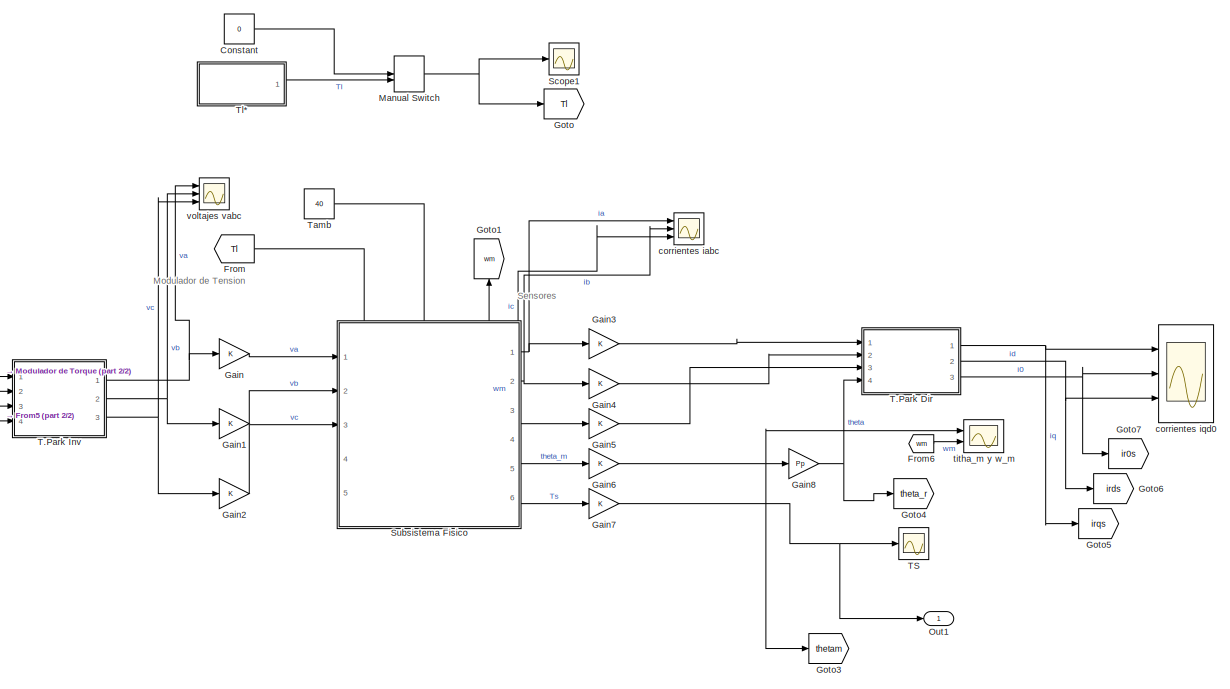
[diagram: Completo con w infinito - part 1/2, right side, full height]
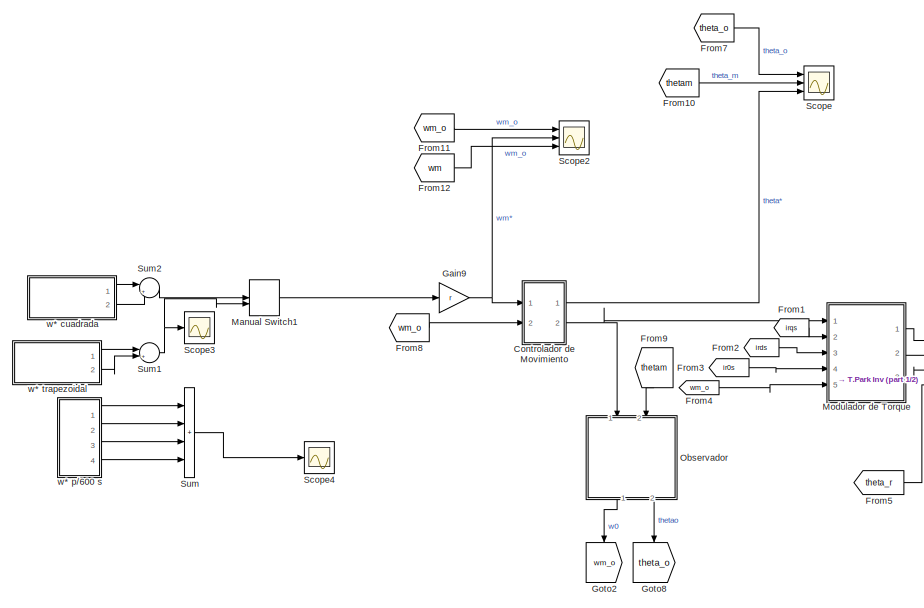
[diagram: Completo con w infinito - part 2/2, left side, full height]
BLOCK [SubSystem] Completo con w infinito
  Ports = [0, 1]
  RequestExecContextInheritance = off
BLOCK [Constant] Completo con w infinito/Constant
  Value = 0
BLOCK [SubSystem] Completo con w infinito/Controlador de Movimiento
  Ports = [2, 2]
  RequestExecContextInheritance = off
BLOCK [Gain] Completo con w infinito/Controlador de Movimiento/Gain
  Gain = ba
BLOCK [Gain] Completo con w infinito/Controlador de Movimiento/Gain1
  Gain = ksa
BLOCK [Gain] Completo con w infinito/Controlador de Movimiento/Gain2
  Gain = ksia
BLOCK [Integrator] Completo con w infinito/Controlador de Movimiento/Integrator
  Ports = [1, 1]
BLOCK [Integrator] Completo con w infinito/Controlador de Movimiento/Integrator1
  Ports = [1, 1]
BLOCK [Integrator] Completo con w infinito/Controlador de Movimiento/Integrator2
  Ports = [1, 1]
BLOCK [Sum] Completo con w infinito/Controlador de Movimiento/Sum
  IconShape = rectangular
  Inputs = |+++
  Ports = [3, 1]
BLOCK [Sum] Completo con w infinito/Controlador de Movimiento/Sum1
  Inputs = |+-
  Ports = [2, 1]
BLOCK [Outport] Completo con w infinito/Controlador de Movimiento/Theta*
BLOCK [Outport] Completo con w infinito/Controlador de Movimiento/Tm*'
  Port = 2
BLOCK [Inport] Completo con w infinito/Controlador de Movimiento/w
  NameLocation = right
  Port = 2
BLOCK [Inport] Completo con w infinito/Controlador de Movimiento/w*
BLOCK [From] Completo con w infinito/From
  GotoTag = Tl
BLOCK [From] Completo con w infinito/From1
  GotoTag = irqs
BLOCK [From] Completo con w infinito/From10
  GotoTag = thetam
BLOCK [From] Completo con w infinito/From11
  GotoTag = wm_o
BLOCK [From] Completo con w infinito/From12
  GotoTag = wm
BLOCK [From] Completo con w infinito/From2
  GotoTag = irds
BLOCK [From] Completo con w infinito/From3
  GotoTag = ir0s
BLOCK [From] Completo con w infinito/From4
  GotoTag = wm_o
BLOCK [From] Completo con w infinito/From5
  GotoTag = theta_r
BLOCK [From] Completo con w infinito/From6
  GotoTag = wm
BLOCK [From] Completo con w infinito/From7
  GotoTag = theta_o
BLOCK [From] Completo con w infinito/From8
  GotoTag = wm_o
BLOCK [From] Completo con w infinito/From9
  GotoTag = thetam
  NameLocation = left
BLOCK [Gain] Completo con w infinito/Gain
BLOCK [Gain] Completo con w infinito/Gain1
BLOCK [Gain] Completo con w infinito/Gain2
BLOCK [Gain] Completo con w infinito/Gain3
BLOCK [Gain] Completo con w infinito/Gain4
BLOCK [Gain] Completo con w infinito/Gain5
BLOCK [Gain] Completo con w infinito/Gain6
BLOCK [Gain] Completo con w infinito/Gain7
BLOCK [Gain] Completo con w infinito/Gain8
  Gain = Pp
BLOCK [Gain] Completo con w infinito/Gain9
  Gain = r
BLOCK [Goto] Completo con w infinito/Goto
  GotoTag = Tl
BLOCK [Goto] Completo con w infinito/Goto1
  GotoTag = wm
  NameLocation = right
BLOCK [Goto] Completo con w infinito/Goto2
  GotoTag = wm_o
  NameLocation = left
BLOCK [Goto] Completo con w infinito/Goto3
  GotoTag = thetam
BLOCK [Goto] Completo con w infinito/Goto4
  GotoTag = theta_r
BLOCK [Goto] Completo con w infinito/Goto5
  GotoTag = irqs
BLOCK [Goto] Completo con w infinito/Goto6
  GotoTag = irds
BLOCK [Goto] Completo con w infinito/Goto7
  GotoTag = ir0s
BLOCK [Goto] Completo con w infinito/Goto8
  GotoTag = theta_o
  NameLocation = left
BLOCK [ManualSwitch] Completo con w infinito/Manual Switch
  CurrentSetting = 0
BLOCK [ManualSwitch] Completo con w infinito/Manual Switch1
  CurrentSetting = 0
BLOCK [SubSystem] Completo con w infinito/Modulador de Torque
  Ports = [5, 3]
  RequestExecContextInheritance = off
BLOCK [Constant] Completo con w infinito/Modulador de Torque/Constant
  Value = 0
BLOCK [Constant] Completo con w infinito/Modulador de Torque/Constant1
  Value = 0
BLOCK [SubSystem] Completo con w infinito/Modulador de Torque/Control de Corriente
  Ports = [7, 3]
  RequestExecContextInheritance = off
BLOCK [Sum] Completo con w infinito/Modulador de Torque/Control de Corriente/Add
  IconShape = rectangular
  Inputs = |-++
  NameLocation = top
  Ports = [3, 1]
BLOCK [Constant] Completo con w infinito/Modulador de Torque/Control de Corriente/Constant1
  Value = lambda_m
BLOCK [From] Completo con w infinito/Modulador de Torque/Control de Corriente/From
  GotoTag = irqs
BLOCK [From] Completo con w infinito/Modulador de Torque/Control de Corriente/From12
  GotoTag = ir0s
BLOCK [From] Completo con w infinito/Modulador de Torque/Control de Corriente/From13
  GotoTag = irds
  NameLocation = right
BLOCK [From] Completo con w infinito/Modulador de Torque/Control de Corriente/From14
  GotoTag = irqs
  NameLocation = right
BLOCK [From] Completo con w infinito/Modulador de Torque/Control de Corriente/From15
  GotoTag = ir0s
  NameLocation = right
BLOCK [From] Completo con w infinito/Modulador de Torque/Control de Corriente/From2
  GotoTag = irds
  NameLocation = top
BLOCK [From] Completo con w infinito/Modulador de Torque/Control de Corriente/From3
  GotoTag = wm
  NameLocation = top
BLOCK [From] Completo con w infinito/Modulador de Torque/Control de Corriente/From4
  GotoTag = wm
  NameLocation = top
BLOCK [From] Completo con w infinito/Modulador de Torque/Control de Corriente/From5
  GotoTag = wm
  NameLocation = top
BLOCK [From] Completo con w infinito/Modulador de Torque/Control de Corriente/From6
  GotoTag = irds
BLOCK [From] Completo con w infinito/Modulador de Torque/Control de Corriente/From9
  GotoTag = irqs
BLOCK [Gain] Completo con w infinito/Modulador de Torque/Control de Corriente/Gain
  Gain = Lq
BLOCK [Gain] Completo con w infinito/Modulador de Torque/Control de Corriente/Gain1
  Gain = Pp
BLOCK [Gain] Completo con w infinito/Modulador de Torque/Control de Corriente/Gain13
  Gain = Rs
BLOCK [Gain] Completo con w infinito/Modulador de Torque/Control de Corriente/Gain15
  Gain = Rs
BLOCK [Gain] Completo con w infinito/Modulador de Torque/Control de Corriente/Gain16
  Gain = Rd
BLOCK [Gain] Completo con w infinito/Modulador de Torque/Control de Corriente/Gain17
  Gain = Rq
BLOCK [Gain] Completo con w infinito/Modulador de Torque/Control de Corriente/Gain18
  Gain = R0
BLOCK [Gain] Completo con w infinito/Modulador de Torque/Control de Corriente/Gain3
  Gain = Rs
BLOCK [Gain] Completo con w infinito/Modulador de Torque/Control de Corriente/Gain4
  Gain = Pp
BLOCK [Gain] Completo con w infinito/Modulador de Torque/Control de Corriente/Gain5
  Gain = Pp
BLOCK [Gain] Completo con w infinito/Modulador de Torque/Control de Corriente/Gain6
  Gain = Ld
BLOCK [Goto] Completo con w infinito/Modulador de Torque/Control de Corriente/Goto
  GotoTag = irqs
BLOCK [Goto] Completo con w infinito/Modulador de Torque/Control de Corriente/Goto1
  GotoTag = irds
BLOCK [Goto] Completo con w infinito/Modulador de Torque/Control de Corriente/Goto2
  GotoTag = ir0s
BLOCK [Goto] Completo con w infinito/Modulador de Torque/Control de Corriente/Goto3
  GotoTag = wm
BLOCK [Inport] Completo con w infinito/Modulador de Torque/Control de Corriente/Ir0s
  Port = 6
BLOCK [Inport] Completo con w infinito/Modulador de Torque/Control de Corriente/Ir0s*
  Port = 3
BLOCK [Inport] Completo con w infinito/Modulador de Torque/Control de Corriente/Irds
  Port = 5
BLOCK [Inport] Completo con w infinito/Modulador de Torque/Control de Corriente/Irds*
  Port = 2
BLOCK [Inport] Completo con w infinito/Modulador de Torque/Control de Corriente/Irqs
  Port = 4
BLOCK [Inport] Completo con w infinito/Modulador de Torque/Control de Corriente/Irqs*
BLOCK [Product] Completo con w infinito/Modulador de Torque/Control de Corriente/Product
  NameLocation = top
  Ports = [2, 1]
BLOCK [Product] Completo con w infinito/Modulador de Torque/Control de Corriente/Product1
  NameLocation = top
  Ports = [2, 1]
BLOCK [Product] Completo con w infinito/Modulador de Torque/Control de Corriente/Product3
  NameLocation = top
  Ports = [2, 1]
BLOCK [Sum] Completo con w infinito/Modulador de Torque/Control de Corriente/Sum1
  IconShape = rectangular
  Inputs = |++++
  Ports = [4, 1]
BLOCK [Sum] Completo con w infinito/Modulador de Torque/Control de Corriente/Sum2
  IconShape = rectangular
  Inputs = |++
  Ports = [2, 1]
BLOCK [Sum] Completo con w infinito/Modulador de Torque/Control de Corriente/Sum4
  Inputs = |+-
  Ports = [2, 1]
BLOCK [Sum] Completo con w infinito/Modulador de Torque/Control de Corriente/Sum5
  Inputs = |+-
  Ports = [2, 1]
BLOCK [Sum] Completo con w infinito/Modulador de Torque/Control de Corriente/Sum6
  Inputs = |+-
  Ports = [2, 1]
BLOCK [Outport] Completo con w infinito/Modulador de Torque/Control de Corriente/v0s*
  Port = 3
BLOCK [Outport] Completo con w infinito/Modulador de Torque/Control de Corriente/vds*
  Port = 2
BLOCK [Outport] Completo con w infinito/Modulador de Torque/Control de Corriente/vqs*
BLOCK [Inport] Completo con w infinito/Modulador de Torque/Control de Corriente/wm
  Port = 7
BLOCK [Gain] Completo con w infinito/Modulador de Torque/Gain3
  Gain = beq
  NameLocation = right
BLOCK [Gain] Completo con w infinito/Modulador de Torque/Gain9
  Gain = 1/((3/2)*Pp*lambda_m)
BLOCK [Inport] Completo con w infinito/Modulador de Torque/Ir0s
  Port = 4
BLOCK [Inport] Completo con w infinito/Modulador de Torque/Irds
  Port = 3
BLOCK [Inport] Completo con w infinito/Modulador de Torque/Irqs
  Port = 2
BLOCK [Sum] Completo con w infinito/Modulador de Torque/Sum
  Inputs = |++
  Ports = [2, 1]
BLOCK [Inport] Completo con w infinito/Modulador de Torque/T*
BLOCK [Outport] Completo con w infinito/Modulador de Torque/v0s*
  Port = 3
BLOCK [Outport] Completo con w infinito/Modulador de Torque/vds*
  Port = 2
BLOCK [Outport] Completo con w infinito/Modulador de Torque/vqs*
BLOCK [Inport] Completo con w infinito/Modulador de Torque/wm
  Port = 5
BLOCK [SubSystem] Completo con w infinito/Observador
  NameLocation = left
  Ports = [2, 2]
  RequestExecContextInheritance = off
BLOCK [Gain] Completo con w infinito/Observador/Gain
  Gain = kow
  NameLocation = left
BLOCK [Gain] Completo con w infinito/Observador/Gain2
  Gain = kotheta
  NameLocation = left
BLOCK [Gain] Completo con w infinito/Observador/Gain9
  Gain = 1/Jeq
BLOCK [Integrator] Completo con w infinito/Observador/Integrator
  Ports = [1, 1]
BLOCK [Integrator] Completo con w infinito/Observador/Integrator1
  Ports = [1, 1]
BLOCK [Sum] Completo con w infinito/Observador/Sum1
  IconShape = rectangular
  Inputs = +|+
  Ports = [2, 1]
BLOCK [Sum] Completo con w infinito/Observador/Sum2
  IconShape = rectangular
  Inputs = +|+
  Ports = [2, 1]
BLOCK [Sum] Completo con w infinito/Observador/Sum3
  Inputs = |+-
  NameLocation = top
  Ports = [2, 1]
BLOCK [Inport] Completo con w infinito/Observador/Tm
BLOCK [Outport] Completo con w infinito/Observador/theta_o
  Port = 2
BLOCK [Inport] Completo con w infinito/Observador/thetam
  NameLocation = top
  Port = 2
BLOCK [Outport] Completo con w infinito/Observador/wm_o
BLOCK [Outport] Completo con w infinito/Out1
BLOCK [Scope] Completo con w infinito/Scope
  Floating = off
  NumInputPorts = 3
  Ports = [3]
  ScopeSpecificationString = Simulink.scopes.TimeScopeBlockCfg('CurrentConfiguration', extmgr.ConfigurationSet(extmgr.Configuration('Core','General UI',true,'FigureColor',[1 1 1]),extmgr.Configuration('Core','Source UI',true),extmgr.Configuration('Sources','WiredSimulink',true,'DataLoggingVariableName','ScopeData1'),extmgr.Configuration('Visuals','Time Domain',true,'SerializedDisplays',{struct('MinYLimReal','-348.95099','MaxY...<+1764ch>
BLOCK [Scope] Completo con w infinito/Scope1
  Floating = off
  NumInputPorts = 1
  Ports = [1]
  ScopeSpecificationString = Simulink.scopes.TimeScopeBlockCfg('CurrentConfiguration', extmgr.ConfigurationSet(extmgr.Configuration('Core','General UI',true,'FigureColor',[1 1 1]),extmgr.Configuration('Core','Source UI',true),extmgr.Configuration('Sources','WiredSimulink',true,'DataLoggingVariableName','ScopeData1'),extmgr.Configuration('Visuals','Time Domain',true,'SerializedDisplays',{struct('MinYLimReal','-0.785','MaxYLimR...<+1509ch>
BLOCK [Scope] Completo con w infinito/Scope2
  Floating = off
  NumInputPorts = 3
  Ports = [3]
  ScopeSpecificationString = Simulink.scopes.TimeScopeBlockCfg('CurrentConfiguration', extmgr.ConfigurationSet(extmgr.Configuration('Core','General UI',true,'FigureColor',[1 1 1]),extmgr.Configuration('Core','Source UI',true),extmgr.Configuration('Sources','WiredSimulink',true,'DataLoggingVariableName','ScopeData2'),extmgr.Configuration('Visuals','Time Domain',true,'SerializedDisplays',{struct('MinYLimReal','-494.6986','MaxYL...<+2007ch>
BLOCK [Scope] Completo con w infinito/Scope3
  Floating = off
  NumInputPorts = 1
  Ports = [1]
  ScopeSpecificationString = Simulink.scopes.TimeScopeBlockCfg('CurrentConfiguration', extmgr.ConfigurationSet(extmgr.Configuration('Core','General UI',true),extmgr.Configuration('Core','Source UI',true),extmgr.Configuration('Sources','WiredSimulink',true,'DataLoggingVariableName','ScopeData1'),extmgr.Configuration('Visuals','Time Domain',true,'SerializedDisplays',{struct('MinYLimReal','-1.5708','MaxYLimReal','1.5708','YLabel...<+1357ch>
BLOCK [Scope] Completo con w infinito/Scope4
  Floating = off
  NumInputPorts = 1
  Ports = [1]
  ScopeSpecificationString = Simulink.scopes.TimeScopeBlockCfg('CurrentConfiguration', extmgr.ConfigurationSet(extmgr.Configuration('Core','General UI',true,'FigureColor',[1 1 1]),extmgr.Configuration('Core','Source UI',true),extmgr.Configuration('Sources','WiredSimulink',true,'DataLoggingVariableName','ScopeData2'),extmgr.Configuration('Visuals','Time Domain',true,'SerializedDisplays',{struct('MinYLimReal','-1.5708','MaxYLim...<+1505ch>
BLOCK [SubSystem] Completo con w infinito/Subsistema Fisico
  PortSchema = {"entries":[{"content":{"sides":[{"content":{"connectorIds":["In1","In2","In3"]},"type":"ConnectorPlacement.EquallySpacedRectSide","uuid":"428e53fe-c6d6-4999-95eb-db171c1d7752"},{"content":{"connectorIds":["Out1","Out2","Out3","Out4","Out5"],"side":"RIGHT"},"type":"ConnectorPlacement.EquallySpacedRectSide","uuid":"d3984cce-d898-4b9d-ab92-7967eebad5db"},{"content":{"connectorIds":["In4","In5","Out6...<+586ch>
  Ports = [5, 6]
  RequestExecContextInheritance = off
BLOCK [Gain] Completo con w infinito/Subsistema Fisico/Gain
  Gain = Pp
BLOCK [Gain] Completo con w infinito/Subsistema Fisico/Gain1
  Gain = Pp
BLOCK [SubSystem] Completo con w infinito/Subsistema Fisico/Subsistema Eléctrico
  Ports = [4, 4]
  RequestExecContextInheritance = off
BLOCK [Constant] Completo con w infinito/Subsistema Fisico/Subsistema Eléctrico/Constant
  Value = lambda_m
BLOCK [Constant] Completo con w infinito/Subsistema Fisico/Subsistema Eléctrico/Constant1
  Value = lambda_m
BLOCK [Constant] Completo con w infinito/Subsistema Fisico/Subsistema Eléctrico/Constant2
  Value = 0
BLOCK [From] Completo con w infinito/Subsistema Fisico/Subsistema Eléctrico/From
  GotoTag = wmxPp
BLOCK [From] Completo con w infinito/Subsistema Fisico/Subsistema Eléctrico/From1
  GotoTag = wmxPp
BLOCK [Gain] Completo con w infinito/Subsistema Fisico/Subsistema Eléctrico/Gain
  Gain = 1/Lq
BLOCK [Gain] Completo con w infinito/Subsistema Fisico/Subsistema Eléctrico/Gain1
  Gain = Rs
BLOCK [Gain] Completo con w infinito/Subsistema Fisico/Subsistema Eléctrico/Gain10
  Gain = Ld-Lq
BLOCK [Gain] Completo con w infinito/Subsistema Fisico/Subsistema Eléctrico/Gain2
  Gain = 1/Ld
BLOCK [Gain] Completo con w infinito/Subsistema Fisico/Subsistema Eléctrico/Gain3
  Gain = Rs
BLOCK [Gain] Completo con w infinito/Subsistema Fisico/Subsistema Eléctrico/Gain4
  Gain = Ld
BLOCK [Gain] Completo con w infinito/Subsistema Fisico/Subsistema Eléctrico/Gain5
  Gain = 1/Lls
BLOCK [Gain] Completo con w infinito/Subsistema Fisico/Subsistema Eléctrico/Gain6
  Gain = Rs
BLOCK [Gain] Completo con w infinito/Subsistema Fisico/Subsistema Eléctrico/Gain7
  Gain = Pp
BLOCK [Gain] Completo con w infinito/Subsistema Fisico/Subsistema Eléctrico/Gain8
  Gain = Lq
BLOCK [Gain] Completo con w infinito/Subsistema Fisico/Subsistema Eléctrico/Gain9
  Gain = 3/2*Pp
BLOCK [Goto] Completo con w infinito/Subsistema Fisico/Subsistema Eléctrico/Goto
  GotoTag = wmxPp
BLOCK [Integrator] Completo con w infinito/Subsistema Fisico/Subsistema Eléctrico/Integrator
  Ports = [1, 1]
BLOCK [Integrator] Completo con w infinito/Subsistema Fisico/Subsistema Eléctrico/Integrator1
  Ports = [1, 1]
BLOCK [Integrator] Completo con w infinito/Subsistema Fisico/Subsistema Eléctrico/Integrator2
  Ports = [1, 1]
BLOCK [ManualSwitch] Completo con w infinito/Subsistema Fisico/Subsistema Eléctrico/Manual Switch
BLOCK [Product] Completo con w infinito/Subsistema Fisico/Subsistema Eléctrico/Product
  Ports = [2, 1]
BLOCK [Product] Completo con w infinito/Subsistema Fisico/Subsistema Eléctrico/Product1
  Ports = [2, 1]
BLOCK [Product] Completo con w infinito/Subsistema Fisico/Subsistema Eléctrico/Product2
  Ports = [2, 1]
BLOCK [Sum] Completo con w infinito/Subsistema Fisico/Subsistema Eléctrico/Sum
  Inputs = |+--
  Ports = [3, 1]
BLOCK [Sum] Completo con w infinito/Subsistema Fisico/Subsistema Eléctrico/Sum1
  Inputs = |++-
  Ports = [3, 1]
BLOCK [Sum] Completo con w infinito/Subsistema Fisico/Subsistema Eléctrico/Sum2
  Inputs = |+-
  Ports = [2, 1]
BLOCK [Sum] Completo con w infinito/Subsistema Fisico/Subsistema Eléctrico/Sum3
  IconShape = rectangular
  Ports = [2, 1]
BLOCK [Sum] Completo con w infinito/Subsistema Fisico/Subsistema Eléctrico/Sum4
  IconShape = rectangular
  Ports = [2, 1]
BLOCK [Outport] Completo con w infinito/Subsistema Fisico/Subsistema Eléctrico/Tem
  Port = 4
BLOCK [Outport] Completo con w infinito/Subsistema Fisico/Subsistema Eléctrico/i0s
  Port = 3
BLOCK [Outport] Completo con w infinito/Subsistema Fisico/Subsistema Eléctrico/irds
  Port = 2
BLOCK [Outport] Completo con w infinito/Subsistema Fisico/Subsistema Eléctrico/irqs
BLOCK [Inport] Completo con w infinito/Subsistema Fisico/Subsistema Eléctrico/v0s
  Port = 3
BLOCK [Inport] Completo con w infinito/Subsistema Fisico/Subsistema Eléctrico/vrds
  Port = 2
BLOCK [Inport] Completo con w infinito/Subsistema Fisico/Subsistema Eléctrico/vrqs
BLOCK [Inport] Completo con w infinito/Subsistema Fisico/Subsistema Eléctrico/wm
  Port = 4
BLOCK [SubSystem] Completo con w infinito/Subsistema Fisico/Subsistema Mecánico
  PortSchema = {"entries":[{"content":{"sides":[{"content":{"connectorIds":["In1","In2"]},"type":"ConnectorPlacement.EquallySpacedRectSide","uuid":"ee0e19e9-1195-452b-ab3d-8be3dd040414"},{"content":{"connectorIds":["Out1"],"side":"RIGHT"},"type":"ConnectorPlacement.EquallySpacedRectSide","uuid":"524e54e6-4967-4b42-ae12-58774e9397a0"},{"content":{"connectorIds":["Out2"],"side":"TOP"},"type":"ConnectorPlacement.Eq...<+396ch>
  Ports = [2, 2]
  RequestExecContextInheritance = off
BLOCK [Gain] Completo con w infinito/Subsistema Fisico/Subsistema Mecánico/Gain
  Gain = 1/Jeq
BLOCK [Gain] Completo con w infinito/Subsistema Fisico/Subsistema Mecánico/Gain1
  Gain = beq
BLOCK [Gain] Completo con w infinito/Subsistema Fisico/Subsistema Mecánico/Gain2
  Gain = 1/r
  NameLocation = left
BLOCK [Integrator] Completo con w infinito/Subsistema Fisico/Subsistema Mecánico/Integrator
  Ports = [1, 1]
BLOCK [Integrator] Completo con w infinito/Subsistema Fisico/Subsistema Mecánico/Integrator1
  Ports = [1, 1]
BLOCK [Sum] Completo con w infinito/Subsistema Fisico/Subsistema Mecánico/Sum
  Inputs = -+-
  Ports = [3, 1]
BLOCK [Inport] Completo con w infinito/Subsistema Fisico/Subsistema Mecánico/Tem
  Port = 2
BLOCK [Inport] Completo con w infinito/Subsistema Fisico/Subsistema Mecánico/Tl
BLOCK [Outport] Completo con w infinito/Subsistema Fisico/Subsistema Mecánico/theta_m
  Port = 2
BLOCK [Outport] Completo con w infinito/Subsistema Fisico/Subsistema Mecánico/wm
BLOCK [SubSystem] Completo con w infinito/Subsistema Fisico/Subsitema Termico
  Ports = [4, 1]
  RequestExecContextInheritance = off
BLOCK [Sum] Completo con w infinito/Subsistema Fisico/Subsitema Termico/Add
  IconShape = rectangular
  Inputs = +++
  Ports = [3, 1]
BLOCK [Gain] Completo con w infinito/Subsistema Fisico/Subsitema Termico/Gain10
  Gain = 1/Rts_amb
BLOCK [Gain] Completo con w infinito/Subsistema Fisico/Subsitema Termico/Gain11
  Gain = 1/Rts_amb
BLOCK [Gain] Completo con w infinito/Subsistema Fisico/Subsitema Termico/Gain7
  Gain = 2
BLOCK [Gain] Completo con w infinito/Subsistema Fisico/Subsitema Termico/Gain8
  Gain = 3/2*Rs
BLOCK [Gain] Completo con w infinito/Subsistema Fisico/Subsitema Termico/Gain9
  Gain = 1/Cts
BLOCK [Integrator] Completo con w infinito/Subsistema Fisico/Subsitema Termico/Integrator
  InitialCondition = 40
  Ports = [1, 1]
BLOCK [Math] Completo con w infinito/Subsistema Fisico/Subsitema Termico/Math Function
  Operator = square
  Ports = [1, 1]
BLOCK [Math] Completo con w infinito/Subsistema Fisico/Subsitema Termico/Math Function1
  Operator = square
  Ports = [1, 1]
BLOCK [Math] Completo con w infinito/Subsistema Fisico/Subsitema Termico/Math Function2
  Operator = square
  Ports = [1, 1]
BLOCK [Sum] Completo con w infinito/Subsistema Fisico/Subsitema Termico/Sum
  Inputs = |+-
  Ports = [2, 1]
BLOCK [Sum] Completo con w infinito/Subsistema Fisico/Subsitema Termico/Sum1
  Inputs = |++
  Ports = [2, 1]
BLOCK [Inport] Completo con w infinito/Subsistema Fisico/Subsitema Termico/Tamb
  Port = 4
BLOCK [Outport] Completo con w infinito/Subsistema Fisico/Subsitema Termico/Ts
BLOCK [Inport] Completo con w infinito/Subsistema Fisico/Subsitema Termico/i0s
  Port = 3
BLOCK [Inport] Completo con w infinito/Subsistema Fisico/Subsitema Termico/ids
  Port = 2
BLOCK [Inport] Completo con w infinito/Subsistema Fisico/Subsitema Termico/iqs
BLOCK [SubSystem] Completo con w infinito/Subsistema Fisico/T.Park Dir
  ErrorFcn = Stateflow.Translate.translate
  PermitHierarchicalResolution = ExplicitOnly
  Ports = [4, 3]
  RequestExecContextInheritance = off
  SFBlockType = MATLAB Function
  TreatAsAtomicUnit = on
BLOCK [Demux] Completo con w infinito/Subsistema Fisico/T.Park Dir/ Demux 
  Outputs = 1
  Ports = [1, 1]
BLOCK [S-Function] Completo con w infinito/Subsistema Fisico/T.Park Dir/ SFunction 
  EnableBusSupport = on
  FunctionName = sf_sfun
  PortCounts = [4 4]
  Ports = [4, 4]
  SFcnIsStateOwnerBlock = off
  SFunctionDeploymentMode = off
  Tag = Stateflow S-Function 5
BLOCK [Terminator] Completo con w infinito/Subsistema Fisico/T.Park Dir/ Terminator 
BLOCK [Outport] Completo con w infinito/Subsistema Fisico/T.Park Dir/f0
  Port = 3
BLOCK [Inport] Completo con w infinito/Subsistema Fisico/T.Park Dir/fa
BLOCK [Inport] Completo con w infinito/Subsistema Fisico/T.Park Dir/fb
  Port = 2
BLOCK [Inport] Completo con w infinito/Subsistema Fisico/T.Park Dir/fc
  Port = 3
BLOCK [Outport] Completo con w infinito/Subsistema Fisico/T.Park Dir/fd
  Port = 2
BLOCK [Outport] Completo con w infinito/Subsistema Fisico/T.Park Dir/fq
BLOCK [Inport] Completo con w infinito/Subsistema Fisico/T.Park Dir/theta_m
  Port = 4
BLOCK [SubSystem] Completo con w infinito/Subsistema Fisico/T.Park Inv
  ErrorFcn = Stateflow.Translate.translate
  PermitHierarchicalResolution = ExplicitOnly
  Ports = [4, 3]
  RequestExecContextInheritance = off
  SFBlockType = MATLAB Function
  TreatAsAtomicUnit = on
BLOCK [Demux] Completo con w infinito/Subsistema Fisico/T.Park Inv/ Demux 
  Outputs = 1
  Ports = [1, 1]
BLOCK [S-Function] Completo con w infinito/Subsistema Fisico/T.Park Inv/ SFunction 
  EnableBusSupport = on
  FunctionName = sf_sfun
  PortCounts = [4 4]
  Ports = [4, 4]
  SFcnIsStateOwnerBlock = off
  SFunctionDeploymentMode = off
  Tag = Stateflow S-Function 6
BLOCK [Terminator] Completo con w infinito/Subsistema Fisico/T.Park Inv/ Terminator 
BLOCK [Inport] Completo con w infinito/Subsistema Fisico/T.Park Inv/f0
  Port = 3
BLOCK [Outport] Completo con w infinito/Subsistema Fisico/T.Park Inv/fa
BLOCK [Outport] Completo con w infinito/Subsistema Fisico/T.Park Inv/fb
  Port = 2
BLOCK [Outport] Completo con w infinito/Subsistema Fisico/T.Park Inv/fc
  Port = 3
BLOCK [Inport] Completo con w infinito/Subsistema Fisico/T.Park Inv/fd
  Port = 2
BLOCK [Inport] Completo con w infinito/Subsistema Fisico/T.Park Inv/fq
BLOCK [Inport] Completo con w infinito/Subsistema Fisico/T.Park Inv/theta_m
  Port = 4
BLOCK [Inport] Completo con w infinito/Subsistema Fisico/Tamb
  Port = 5
BLOCK [Scope] Completo con w infinito/Subsistema Fisico/Tem
  Floating = off
  NumInputPorts = 1
  Ports = [1]
  ScopeSpecificationString = Simulink.scopes.TimeScopeBlockCfg('CurrentConfiguration', extmgr.ConfigurationSet(extmgr.Configuration('Core','General UI',true,'FigureColor',[1 1 1]),extmgr.Configuration('Core','Source UI',true),extmgr.Configuration('Sources','WiredSimulink',true,'DataLoggingVariableName','ScopeData3'),extmgr.Configuration('Visuals','Time Domain',true,'SerializedDisplays',{struct('MinYLimReal','-0.00463','MaxYLi...<+1753ch>
BLOCK [Inport] Completo con w infinito/Subsistema Fisico/Tl
  Port = 4
BLOCK [Outport] Completo con w infinito/Subsistema Fisico/Ts
  Port = 5
BLOCK [Outport] Completo con w infinito/Subsistema Fisico/ia
BLOCK [Outport] Completo con w infinito/Subsistema Fisico/ib
  Port = 2
BLOCK [Outport] Completo con w infinito/Subsistema Fisico/ic
  Port = 3
BLOCK [Outport] Completo con w infinito/Subsistema Fisico/theta_m
  Port = 4
BLOCK [Inport] Completo con w infinito/Subsistema Fisico/va
BLOCK [Inport] Completo con w infinito/Subsistema Fisico/vb
  Port = 2
BLOCK [Inport] Completo con w infinito/Subsistema Fisico/vc
  Port = 3
BLOCK [Outport] Completo con w infinito/Subsistema Fisico/wm
  Port = 6
BLOCK [Sum] Completo con w infinito/Sum
  IconShape = rectangular
  Inputs = |+|+|+|+
  Ports = [4, 1]
BLOCK [Sum] Completo con w infinito/Sum1
  Inputs = |++
  Ports = [2, 1]
BLOCK [Sum] Completo con w infinito/Sum2
  Inputs = |++
  Ports = [2, 1]
BLOCK [SubSystem] Completo con w infinito/T.Park Dir
  ErrorFcn = Stateflow.Translate.translate
  PermitHierarchicalResolution = ExplicitOnly
  Ports = [4, 3]
  RequestExecContextInheritance = off
  SFBlockType = MATLAB Function
  TreatAsAtomicUnit = on
BLOCK [Demux] Completo con w infinito/T.Park Dir/ Demux 
  Outputs = 1
  Ports = [1, 1]
BLOCK [S-Function] Completo con w infinito/T.Park Dir/ SFunction 
  EnableBusSupport = on
  FunctionName = sf_sfun
  PortCounts = [4 4]
  Ports = [4, 4]
  SFcnIsStateOwnerBlock = off
  SFunctionDeploymentMode = off
  Tag = Stateflow S-Function 7
BLOCK [Terminator] Completo con w infinito/T.Park Dir/ Terminator 
BLOCK [Outport] Completo con w infinito/T.Park Dir/f0
  Port = 3
BLOCK [Inport] Completo con w infinito/T.Park Dir/fa
BLOCK [Inport] Completo con w infinito/T.Park Dir/fb
  Port = 2
BLOCK [Inport] Completo con w infinito/T.Park Dir/fc
  Port = 3
BLOCK [Outport] Completo con w infinito/T.Park Dir/fd
  Port = 2
BLOCK [Outport] Completo con w infinito/T.Park Dir/fq
BLOCK [Inport] Completo con w infinito/T.Park Dir/theta_m
  Port = 4
BLOCK [SubSystem] Completo con w infinito/T.Park Inv
  ErrorFcn = Stateflow.Translate.translate
  PermitHierarchicalResolution = ExplicitOnly
  Ports = [4, 3]
  RequestExecContextInheritance = off
  SFBlockType = MATLAB Function
  TreatAsAtomicUnit = on
BLOCK [Demux] Completo con w infinito/T.Park Inv/ Demux 
  Outputs = 1
  Ports = [1, 1]
BLOCK [S-Function] Completo con w infinito/T.Park Inv/ SFunction 
  EnableBusSupport = on
  FunctionName = sf_sfun
  PortCounts = [4 4]
  Ports = [4, 4]
  SFcnIsStateOwnerBlock = off
  SFunctionDeploymentMode = off
  Tag = Stateflow S-Function 8
BLOCK [Terminator] Completo con w infinito/T.Park Inv/ Terminator 
BLOCK [Inport] Completo con w infinito/T.Park Inv/f0
  Port = 3
BLOCK [Outport] Completo con w infinito/T.Park Inv/fa
BLOCK [Outport] Completo con w infinito/T.Park Inv/fb
  Port = 2
BLOCK [Outport] Completo con w infinito/T.Park Inv/fc
  Port = 3
BLOCK [Inport] Completo con w infinito/T.Park Inv/fd
  Port = 2
BLOCK [Inport] Completo con w infinito/T.Park Inv/fq
BLOCK [Inport] Completo con w infinito/T.Park Inv/theta_m
  Port = 4
BLOCK [Scope] Completo con w infinito/TS
  Floating = off
  NumInputPorts = 1
  Ports = [1]
  ScopeSpecificationString = Simulink.scopes.TimeScopeBlockCfg('CurrentConfiguration', extmgr.ConfigurationSet(extmgr.Configuration('Core','General UI',true,'FigureColor',[1 1 1]),extmgr.Configuration('Core','Source UI',true),extmgr.Configuration('Sources','WiredSimulink',true,'DataLoggingVariableName','ScopeData1'),extmgr.Configuration('Visuals','Time Domain',true,'SerializedDisplays',{struct('MinYLimReal','39.56583','MaxYLi...<+1519ch>
BLOCK [Constant] Completo con w infinito/Tamb
  Value = 40
BLOCK [SubSystem] Completo con w infinito/Tl*
  ClipboardFcn = sigbuilder_block('clipboard');
  CloseFcn = sigbuilder_block('close');
  ContinueFcn = sigbuilder_block('continue');
  CopyFcn = sigbuilder_block('copy');
  DeleteFcn = sigbuilder_block('delete');
  LoadFcn = sigbuilder_block('load');
  MaskHideContents = on
  ModelCloseFcn = sigbuilder_block('modelClose');
  NameChangeFcn = sigbuilder_block('namechange');
  OpenFcn = sigbuilder_block('open',[388.2 64.2 550.8 400.2 ]);
  PauseFcn = sigbuilder_block('pause');
  Ports = [0, 1]
  PreSaveFcn = sigbuilder_block('preSave');
  RequestExecContextInheritance = off
  StartFcn = sigbuilder_block('start');
  StopFcn = sigbuilder_block('stop');
  Tag = STV Subsys
BLOCK [Demux] Completo con w infinito/Tl*/Demux
  DisplayOption = none
  Outputs = 1
  Ports = [1, 1]
  Tag = STV Demux
BLOCK [FromWorkspace] Completo con w infinito/Tl*/FromWs
  Tag = STV FromWs
  VariableName = tuvar
BLOCK [Outport] Completo con w infinito/Tl*/Signal 1
  Tag = STV Outport
BLOCK [Scope] Completo con w infinito/corrientes  iabc
  Floating = off
  NumInputPorts = 3
  Ports = [3]
  ScopeSpecificationString = Simulink.scopes.TimeScopeBlockCfg('CurrentConfiguration', extmgr.ConfigurationSet(extmgr.Configuration('Core','General UI',true,'FigureColor',[1 1 1]),extmgr.Configuration('Core','Source UI',true),extmgr.Configuration('Sources','WiredSimulink',true,'DataLoggingVariableName','ScopeData1'),extmgr.Configuration('Visuals','Time Domain',true,'SerializedDisplays',{struct('MinYLimReal','-0.67961','MaxYLi...<+2079ch>
BLOCK [Scope] Completo con w infinito/corrientes iqd0
  Floating = off
  NumInputPorts = 3
  Ports = [3]
  ScopeSpecificationString = Simulink.scopes.TimeScopeBlockCfg('CurrentConfiguration', extmgr.ConfigurationSet(extmgr.Configuration('Core','General UI',true,'FigureColor',[1 1 1],'DisplayFullSourceName',true),extmgr.Configuration('Core','Source UI',true),extmgr.Configuration('Sources','WiredSimulink',true,'DataLoggingVariableName','ScopeData2'),extmgr.Configuration('Visuals','Time Domain',true,'SerializedDisplays',{struct('Mi...<+2776ch>
BLOCK [Scope] Completo con w infinito/titha_m y w_m
  Floating = off
  NumInputPorts = 2
  Ports = [2]
  ScopeSpecificationString = Simulink.scopes.TimeScopeBlockCfg('CurrentConfiguration', extmgr.ConfigurationSet(extmgr.Configuration('Core','General UI',true,'FigureColor',[1 1 1]),extmgr.Configuration('Core','Source UI',true),extmgr.Configuration('Sources','WiredSimulink',true),extmgr.Configuration('Visuals','Time Domain',true,'SerializedDisplays',{struct('MinYLimReal','-236.97932','MaxYLimReal','2132.79524','YLabelReal','','...<+2220ch>
BLOCK [Scope] Completo con w infinito/voltajes vabc
  Floating = off
  NumInputPorts = 3
  Ports = [3]
  ScopeSpecificationString = Simulink.scopes.TimeScopeBlockCfg('CurrentConfiguration', extmgr.ConfigurationSet(extmgr.Configuration('Core','General UI',true,'FigureColor',[1 1 1]),extmgr.Configuration('Core','Source UI',true),extmgr.Configuration('Sources','WiredSimulink',true,'DataLoggingVariableName','ScopeData2'),extmgr.Configuration('Visuals','Time Domain',true,'SerializedDisplays',{struct('MinYLimReal','-24.4949','MaxYLi...<+2031ch>
BLOCK [SubSystem] Completo con w infinito/w* cuadrada
  ClipboardFcn = sigbuilder_block('clipboard');
  CloseFcn = sigbuilder_block('close');
  ContinueFcn = sigbuilder_block('continue');
  CopyFcn = sigbuilder_block('copy');
  DeleteFcn = sigbuilder_block('delete');
  LoadFcn = sigbuilder_block('load');
  MaskHideContents = on
  ModelCloseFcn = sigbuilder_block('modelClose');
  NameChangeFcn = sigbuilder_block('namechange');
  OpenFcn = sigbuilder_block('open',[5.4 36 1141.2 516.6 ]);
  PauseFcn = sigbuilder_block('pause');
  Ports = [0, 2]
  PreSaveFcn = sigbuilder_block('preSave');
  RequestExecContextInheritance = off
  StartFcn = sigbuilder_block('start');
  StopFcn = sigbuilder_block('stop');
  Tag = STV Subsys
BLOCK [Demux] Completo con w infinito/w* cuadrada/Demux
  DisplayOption = none
  Outputs = 2
  Ports = [1, 2]
  Tag = STV Demux
BLOCK [FromWorkspace] Completo con w infinito/w* cuadrada/FromWs
  Tag = STV FromWs
  VariableName = tuvar
BLOCK [Outport] Completo con w infinito/w* cuadrada/Signal 1
  Tag = STV Outport
BLOCK [Outport] Completo con w infinito/w* cuadrada/Signal 2
  Port = 2
  Tag = STV Outport
BLOCK [SubSystem] Completo con w infinito/w* p//600 s
  Ports = [0, 4]
  RequestExecContextInheritance = off
BLOCK [Outport] Completo con w infinito/w* p//600 s/Out1
BLOCK [Outport] Completo con w infinito/w* p//600 s/Out2
  Port = 2
BLOCK [Outport] Completo con w infinito/w* p//600 s/Out3
  Port = 3
BLOCK [Outport] Completo con w infinito/w* p//600 s/Out4
  Port = 4
BLOCK [Sum] Completo con w infinito/w* p//600 s/Sum3
  IconShape = rectangular
  Inputs = |+++++++++++++++
  Ports = [15, 1]
BLOCK [Sum] Completo con w infinito/w* p//600 s/Sum4
  IconShape = rectangular
  Inputs = |+++++++++++++++
  Ports = [15, 1]
BLOCK [Sum] Completo con w infinito/w* p//600 s/Sum5
  IconShape = rectangular
  Inputs = |+++++++++++++++
  Ports = [15, 1]
BLOCK [Sum] Completo con w infinito/w* p//600 s/Sum6
  IconShape = rectangular
  Inputs = |+++++++++++++++
  Ports = [15, 1]
BLOCK [SubSystem] Completo con w infinito/w* p//600 s/w* trapezoidal1
  ClipboardFcn = sigbuilder_block('clipboard');
  CloseFcn = sigbuilder_block('close');
  ContinueFcn = sigbuilder_block('continue');
  CopyFcn = sigbuilder_block('copy');
  DeleteFcn = sigbuilder_block('delete');
  LoadFcn = sigbuilder_block('load');
  MaskHideContents = on
  ModelCloseFcn = sigbuilder_block('modelClose');
  NameChangeFcn = sigbuilder_block('namechange');
  OpenFcn = sigbuilder_block('open',[5.4 36 1141.2 516.6 ]);
  PauseFcn = sigbuilder_block('pause');
  Ports = [0, 15]
  PreSaveFcn = sigbuilder_block('preSave');
  RequestExecContextInheritance = off
  StartFcn = sigbuilder_block('start');
  StopFcn = sigbuilder_block('stop');
  Tag = STV Subsys
BLOCK [Demux] Completo con w infinito/w* p//600 s/w* trapezoidal1/Demux
  DisplayOption = none
  Outputs = 15
  Ports = [1, 15]
  Tag = STV Demux
BLOCK [FromWorkspace] Completo con w infinito/w* p//600 s/w* trapezoidal1/FromWs
  Tag = STV FromWs
  VariableName = tuvar
BLOCK [Outport] Completo con w infinito/w* p//600 s/w* trapezoidal1/Signal 1
  Tag = STV Outport
BLOCK [Outport] Completo con w infinito/w* p//600 s/w* trapezoidal1/Signal 10
  Port = 10
  Tag = STV Outport
BLOCK [Outport] Completo con w infinito/w* p//600 s/w* trapezoidal1/Signal 11
  Port = 11
  Tag = STV Outport
BLOCK [Outport] Completo con w infinito/w* p//600 s/w* trapezoidal1/Signal 12
  Port = 12
  Tag = STV Outport
BLOCK [Outport] Completo con w infinito/w* p//600 s/w* trapezoidal1/Signal 14
  Port = 13
  Tag = STV Outport
BLOCK [Outport] Completo con w infinito/w* p//600 s/w* trapezoidal1/Signal 15
  Port = 14
  Tag = STV Outport
BLOCK [Outport] Completo con w infinito/w* p//600 s/w* trapezoidal1/Signal 19
  Port = 15
  Tag = STV Outport
BLOCK [Outport] Completo con w infinito/w* p//600 s/w* trapezoidal1/Signal 2
  Port = 2
  Tag = STV Outport
BLOCK [Outport] Completo con w infinito/w* p//600 s/w* trapezoidal1/Signal 3
  Port = 3
  Tag = STV Outport
BLOCK [Outport] Completo con w infinito/w* p//600 s/w* trapezoidal1/Signal 4
  Port = 4
  Tag = STV Outport
BLOCK [Outport] Completo con w infinito/w* p//600 s/w* trapezoidal1/Signal 5
  Port = 5
  Tag = STV Outport
BLOCK [Outport] Completo con w infinito/w* p//600 s/w* trapezoidal1/Signal 6
  Port = 6
  Tag = STV Outport
BLOCK [Outport] Completo con w infinito/w* p//600 s/w* trapezoidal1/Signal 7
  Port = 7
  Tag = STV Outport
BLOCK [Outport] Completo con w infinito/w* p//600 s/w* trapezoidal1/Signal 8
  Port = 8
  Tag = STV Outport
BLOCK [Outport] Completo con w infinito/w* p//600 s/w* trapezoidal1/Signal 9
  Port = 9
  Tag = STV Outport
BLOCK [SubSystem] Completo con w infinito/w* p//600 s/w* trapezoidal2
  ClipboardFcn = sigbuilder_block('clipboard');
  CloseFcn = sigbuilder_block('close');
  ContinueFcn = sigbuilder_block('continue');
  CopyFcn = sigbuilder_block('copy');
  DeleteFcn = sigbuilder_block('delete');
  LoadFcn = sigbuilder_block('load');
  MaskHideContents = on
  ModelCloseFcn = sigbuilder_block('modelClose');
  NameChangeFcn = sigbuilder_block('namechange');
  OpenFcn = sigbuilder_block('open',[5.4 36 1141.2 516.6 ]);
  PauseFcn = sigbuilder_block('pause');
  Ports = [0, 15]
  PreSaveFcn = sigbuilder_block('preSave');
  RequestExecContextInheritance = off
  StartFcn = sigbuilder_block('start');
  StopFcn = sigbuilder_block('stop');
  Tag = STV Subsys
BLOCK [Demux] Completo con w infinito/w* p//600 s/w* trapezoidal2/Demux
  DisplayOption = none
  Outputs = 15
  Ports = [1, 15]
  Tag = STV Demux
BLOCK [FromWorkspace] Completo con w infinito/w* p//600 s/w* trapezoidal2/FromWs
  Tag = STV FromWs
  VariableName = tuvar
BLOCK [Outport] Completo con w infinito/w* p//600 s/w* trapezoidal2/Signal 1
  Tag = STV Outport
BLOCK [Outport] Completo con w infinito/w* p//600 s/w* trapezoidal2/Signal 10
  Port = 10
  Tag = STV Outport
BLOCK [Outport] Completo con w infinito/w* p//600 s/w* trapezoidal2/Signal 11
  Port = 11
  Tag = STV Outport
BLOCK [Outport] Completo con w infinito/w* p//600 s/w* trapezoidal2/Signal 12
  Port = 12
  Tag = STV Outport
BLOCK [Outport] Completo con w infinito/w* p//600 s/w* trapezoidal2/Signal 13
  Port = 13
  Tag = STV Outport
BLOCK [Outport] Completo con w infinito/w* p//600 s/w* trapezoidal2/Signal 14
  Port = 14
  Tag = STV Outport
BLOCK [Outport] Completo con w infinito/w* p//600 s/w* trapezoidal2/Signal 15
  Port = 15
  Tag = STV Outport
BLOCK [Outport] Completo con w infinito/w* p//600 s/w* trapezoidal2/Signal 2
  Port = 2
  Tag = STV Outport
BLOCK [Outport] Completo con w infinito/w* p//600 s/w* trapezoidal2/Signal 3
  Port = 3
  Tag = STV Outport
BLOCK [Outport] Completo con w infinito/w* p//600 s/w* trapezoidal2/Signal 4
  Port = 4
  Tag = STV Outport
BLOCK [Outport] Completo con w infinito/w* p//600 s/w* trapezoidal2/Signal 5
  Port = 5
  Tag = STV Outport
BLOCK [Outport] Completo con w infinito/w* p//600 s/w* trapezoidal2/Signal 6
  Port = 6
  Tag = STV Outport
BLOCK [Outport] Completo con w infinito/w* p//600 s/w* trapezoidal2/Signal 7
  Port = 7
  Tag = STV Outport
BLOCK [Outport] Completo con w infinito/w* p//600 s/w* trapezoidal2/Signal 8
  Port = 8
  Tag = STV Outport
BLOCK [Outport] Completo con w infinito/w* p//600 s/w* trapezoidal2/Signal 9
  Port = 9
  Tag = STV Outport
BLOCK [SubSystem] Completo con w infinito/w* p//600 s/w* trapezoidal3
  ClipboardFcn = sigbuilder_block('clipboard');
  CloseFcn = sigbuilder_block('close');
  ContinueFcn = sigbuilder_block('continue');
  CopyFcn = sigbuilder_block('copy');
  DeleteFcn = sigbuilder_block('delete');
  LoadFcn = sigbuilder_block('load');
  MaskHideContents = on
  ModelCloseFcn = sigbuilder_block('modelClose');
  NameChangeFcn = sigbuilder_block('namechange');
  OpenFcn = sigbuilder_block('open',[5.4 36 1141.2 516.6 ]);
  PauseFcn = sigbuilder_block('pause');
  Ports = [0, 15]
  PreSaveFcn = sigbuilder_block('preSave');
  RequestExecContextInheritance = off
  StartFcn = sigbuilder_block('start');
  StopFcn = sigbuilder_block('stop');
  Tag = STV Subsys
BLOCK [Demux] Completo con w infinito/w* p//600 s/w* trapezoidal3/Demux
  DisplayOption = none
  Outputs = 15
  Ports = [1, 15]
  Tag = STV Demux
BLOCK [FromWorkspace] Completo con w infinito/w* p//600 s/w* trapezoidal3/FromWs
  Tag = STV FromWs
  VariableName = tuvar
BLOCK [Outport] Completo con w infinito/w* p//600 s/w* trapezoidal3/Signal 1
  Tag = STV Outport
BLOCK [Outport] Completo con w infinito/w* p//600 s/w* trapezoidal3/Signal 10
  Port = 10
  Tag = STV Outport
BLOCK [Outport] Completo con w infinito/w* p//600 s/w* trapezoidal3/Signal 11
  Port = 11
  Tag = STV Outport
BLOCK [Outport] Completo con w infinito/w* p//600 s/w* trapezoidal3/Signal 12
  Port = 12
  Tag = STV Outport
BLOCK [Outport] Completo con w infinito/w* p//600 s/w* trapezoidal3/Signal 13
  Port = 13
  Tag = STV Outport
BLOCK [Outport] Completo con w infinito/w* p//600 s/w* trapezoidal3/Signal 14
  Port = 14
  Tag = STV Outport
BLOCK [Outport] Completo con w infinito/w* p//600 s/w* trapezoidal3/Signal 15
  Port = 15
  Tag = STV Outport
BLOCK [Outport] Completo con w infinito/w* p//600 s/w* trapezoidal3/Signal 2
  Port = 2
  Tag = STV Outport
BLOCK [Outport] Completo con w infinito/w* p//600 s/w* trapezoidal3/Signal 3
  Port = 3
  Tag = STV Outport
BLOCK [Outport] Completo con w infinito/w* p//600 s/w* trapezoidal3/Signal 4
  Port = 4
  Tag = STV Outport
BLOCK [Outport] Completo con w infinito/w* p//600 s/w* trapezoidal3/Signal 5
  Port = 5
  Tag = STV Outport
BLOCK [Outport] Completo con w infinito/w* p//600 s/w* trapezoidal3/Signal 6
  Port = 6
  Tag = STV Outport
BLOCK [Outport] Completo con w infinito/w* p//600 s/w* trapezoidal3/Signal 7
  Port = 7
  Tag = STV Outport
BLOCK [Outport] Completo con w infinito/w* p//600 s/w* trapezoidal3/Signal 8
  Port = 8
  Tag = STV Outport
BLOCK [Outport] Completo con w infinito/w* p//600 s/w* trapezoidal3/Signal 9
  Port = 9
  Tag = STV Outport
BLOCK [SubSystem] Completo con w infinito/w* p//600 s/w* trapezoidal4
  ClipboardFcn = sigbuilder_block('clipboard');
  CloseFcn = sigbuilder_block('close');
  ContinueFcn = sigbuilder_block('continue');
  CopyFcn = sigbuilder_block('copy');
  DeleteFcn = sigbuilder_block('delete');
  LoadFcn = sigbuilder_block('load');
  MaskHideContents = on
  ModelCloseFcn = sigbuilder_block('modelClose');
  NameChangeFcn = sigbuilder_block('namechange');
  OpenFcn = sigbuilder_block('open',[5.4 36 1141.2 516.6 ]);
  PauseFcn = sigbuilder_block('pause');
  Ports = [0, 15]
  PreSaveFcn = sigbuilder_block('preSave');
  RequestExecContextInheritance = off
  StartFcn = sigbuilder_block('start');
  StopFcn = sigbuilder_block('stop');
  Tag = STV Subsys
BLOCK [Demux] Completo con w infinito/w* p//600 s/w* trapezoidal4/Demux
  DisplayOption = none
  Outputs = 15
  Ports = [1, 15]
  Tag = STV Demux
BLOCK [FromWorkspace] Completo con w infinito/w* p//600 s/w* trapezoidal4/FromWs
  Tag = STV FromWs
  VariableName = tuvar
BLOCK [Outport] Completo con w infinito/w* p//600 s/w* trapezoidal4/Signal 1
  Tag = STV Outport
BLOCK [Outport] Completo con w infinito/w* p//600 s/w* trapezoidal4/Signal 10
  Port = 10
  Tag = STV Outport
BLOCK [Outport] Completo con w infinito/w* p//600 s/w* trapezoidal4/Signal 11
  Port = 11
  Tag = STV Outport
BLOCK [Outport] Completo con w infinito/w* p//600 s/w* trapezoidal4/Signal 12
  Port = 12
  Tag = STV Outport
BLOCK [Outport] Completo con w infinito/w* p//600 s/w* trapezoidal4/Signal 13
  Port = 13
  Tag = STV Outport
BLOCK [Outport] Completo con w infinito/w* p//600 s/w* trapezoidal4/Signal 14
  Port = 14
  Tag = STV Outport
BLOCK [Outport] Completo con w infinito/w* p//600 s/w* trapezoidal4/Signal 15
  Port = 15
  Tag = STV Outport
BLOCK [Outport] Completo con w infinito/w* p//600 s/w* trapezoidal4/Signal 2
  Port = 2
  Tag = STV Outport
BLOCK [Outport] Completo con w infinito/w* p//600 s/w* trapezoidal4/Signal 3
  Port = 3
  Tag = STV Outport
BLOCK [Outport] Completo con w infinito/w* p//600 s/w* trapezoidal4/Signal 4
  Port = 4
  Tag = STV Outport
BLOCK [Outport] Completo con w infinito/w* p//600 s/w* trapezoidal4/Signal 5
  Port = 5
  Tag = STV Outport
BLOCK [Outport] Completo con w infinito/w* p//600 s/w* trapezoidal4/Signal 6
  Port = 6
  Tag = STV Outport
BLOCK [Outport] Completo con w infinito/w* p//600 s/w* trapezoidal4/Signal 7
  Port = 7
  Tag = STV Outport
BLOCK [Outport] Completo con w infinito/w* p//600 s/w* trapezoidal4/Signal 8
  Port = 8
  Tag = STV Outport
BLOCK [Outport] Completo con w infinito/w* p//600 s/w* trapezoidal4/Signal 9
  Port = 9
  Tag = STV Outport
BLOCK [SubSystem] Completo con w infinito/w* trapezoidal
  ClipboardFcn = sigbuilder_block('clipboard');
  CloseFcn = sigbuilder_block('close');
  ContinueFcn = sigbuilder_block('continue');
  CopyFcn = sigbuilder_block('copy');
  DeleteFcn = sigbuilder_block('delete');
  LoadFcn = sigbuilder_block('load');
  MaskHideContents = on
  ModelCloseFcn = sigbuilder_block('modelClose');
  NameChangeFcn = sigbuilder_block('namechange');
  OpenFcn = sigbuilder_block('open',[5.4 36 1141.2 516.6 ]);
  PauseFcn = sigbuilder_block('pause');
  Ports = [0, 2]
  PreSaveFcn = sigbuilder_block('preSave');
  RequestExecContextInheritance = off
  StartFcn = sigbuilder_block('start');
  StopFcn = sigbuilder_block('stop');
  Tag = STV Subsys
BLOCK [Demux] Completo con w infinito/w* trapezoidal/Demux
  DisplayOption = none
  Outputs = 2
  Ports = [1, 2]
  Tag = STV Demux
BLOCK [FromWorkspace] Completo con w infinito/w* trapezoidal/FromWs
  Tag = STV FromWs
  VariableName = tuvar
BLOCK [Outport] Completo con w infinito/w* trapezoidal/Signal 1
  Tag = STV Outport
BLOCK [Outport] Completo con w infinito/w* trapezoidal/Signal 2
  Port = 2
  Tag = STV Outport
BLOCK [Mux] Mux
  DisplayOption = bar
  Inputs = 2
  Ports = [2, 1]
BLOCK [Scope] Scope
  Floating = off
  NumInputPorts = 1
  Ports = [1]
  ScopeSpecificationString = Simulink.scopes.TimeScopeBlockCfg('CurrentConfiguration', extmgr.ConfigurationSet(extmgr.Configuration('Core','General UI',true,'FigureColor',[1 1 1]),extmgr.Configuration('Core','Source UI',true),extmgr.Configuration('Sources','WiredSimulink',true,'DataLoggingVariableName','ScopeData1'),extmgr.Configuration('Visuals','Time Domain',true,'SerializedDisplays',{struct('MinYLimReal','39.55739','MaxYLi...<+1653ch>
ANNOTATION Completo con w finito: Modulador de Tension
ANNOTATION Completo con w finito: Sensores
ANNOTATION Completo con w finito/Modulador de Torque/Control de Corriente: Desacoplo eje d
ANNOTATION Completo con w finito/Modulador de Torque/Control de Corriente: Desacoplo eje q
ANNOTATION Completo con w finito/Modulador de Torque/Control de Corriente: Desacoplo por realimentacion propia Ir0s
ANNOTATION Completo con w finito/Modulador de Torque/Control de Corriente: Desacoplo por realimentacion propia Irds
ANNOTATION Completo con w finito/Modulador de Torque/Control de Corriente: Desacoplo por realimentacion propia Irqs
ANNOTATION Completo con w infinito: Modulador de Tension
ANNOTATION Completo con w infinito: Sensores
ANNOTATION Completo con w infinito/Modulador de Torque/Control de Corriente: Desacoplo eje d
ANNOTATION Completo con w infinito/Modulador de Torque/Control de Corriente: Desacoplo eje q
ANNOTATION Completo con w infinito/Modulador de Torque/Control de Corriente: Desacoplo por realimentacion propia Ir0s
ANNOTATION Completo con w infinito/Modulador de Torque/Control de Corriente: Desacoplo por realimentacion propia Irds
ANNOTATION Completo con w infinito/Modulador de Torque/Control de Corriente: Desacoplo por realimentacion propia Irqs
LINE Completo con w finito/Constant:1 -> Completo con w finito/Manual Switch:1
LINE Completo con w finito/Controlador de Movimiento/Gain1:1 -> Completo con w finito/Controlador de Movimiento/Sum:2
LINE Completo con w finito/Controlador de Movimiento/Gain2:1 -> Completo con w finito/Controlador de Movimiento/Sum:1
LINE Completo con w finito/Controlador de Movimiento/Gain:1 -> Completo con w finito/Controlador de Movimiento/Sum:3
LINE Completo con w finito/Controlador de Movimiento/Integrator1:1 -> Completo con w finito/Controlador de Movimiento/Gain2:1
LINE Completo con w finito/Controlador de Movimiento/Integrator2:1 -> Completo con w finito/Controlador de Movimiento/Theta*:1
NET Completo con w finito/Controlador de Movimiento/Integrator:1 -> Completo con w finito/Controlador de Movimiento/Gain1:1, Completo con w finito/Controlador de Movimiento/Integrator1:1
NET Completo con w finito/Controlador de Movimiento/Sum1:1 -> Completo con w finito/Controlador de Movimiento/Gain:1, Completo con w finito/Controlador de Movimiento/Integrator:1
LINE Completo con w finito/Controlador de Movimiento/Sum:1 -> Completo con w finito/Controlador de Movimiento/Tm*':1
NET Completo con w finito/Controlador de Movimiento/w*:1 -> Completo con w finito/Controlador de Movimiento/Integrator2:1, Completo con w finito/Controlador de Movimiento/Sum1:1
LINE Completo con w finito/Controlador de Movimiento/w:1 -> Completo con w finito/Controlador de Movimiento/Sum1:2
LINE Completo con w finito/Controlador de Movimiento:1 -> Completo con w finito/Scope:3
NET Completo con w finito/Controlador de Movimiento:2 -> Completo con w finito/Modulador de Torque:1, Completo con w finito/Observador:1
LINE Completo con w finito/FLP 1 orden/Gain1:1 -> Completo con w finito/FLP 1 orden/Sum:2
LINE Completo con w finito/FLP 1 orden/Gain2:1 -> Completo con w finito/FLP 1 orden/Integrator1:1
LINE Completo con w finito/FLP 1 orden/Gain:1 -> Completo con w finito/FLP 1 orden/Sum:1
NET Completo con w finito/FLP 1 orden/Integrator1:1 -> Completo con w finito/FLP 1 orden/Gain1:1, Completo con w finito/FLP 1 orden/Ts:1
LINE Completo con w finito/FLP 1 orden/Sum:1 -> Completo con w finito/FLP 1 orden/Gain2:1
LINE Completo con w finito/FLP 1 orden/u(t):1 -> Completo con w finito/FLP 1 orden/Gain:1
NET Completo con w finito/FLP 1 orden:1 -> Completo con w finito/TS:1, Completo con w finito/Ts:1
LINE Completo con w finito/FLP 2 orden/Gain1:1 -> Completo con w finito/FLP 2 orden/Sum:3
LINE Completo con w finito/FLP 2 orden/Gain2:1 -> Completo con w finito/FLP 2 orden/Sum:2
LINE Completo con w finito/FLP 2 orden/Gain:1 -> Completo con w finito/FLP 2 orden/Sum:1
NET Completo con w finito/FLP 2 orden/Integrator1:1 -> Completo con w finito/FLP 2 orden/Gain1:1, Completo con w finito/FLP 2 orden/Integrator:1
NET Completo con w finito/FLP 2 orden/Integrator:1 -> Completo con w finito/FLP 2 orden/Gain2:1, Completo con w finito/FLP 2 orden/theta:1
LINE Completo con w finito/FLP 2 orden/Sum:1 -> Completo con w finito/FLP 2 orden/Integrator1:1
LINE Completo con w finito/FLP 2 orden/u(t):1 -> Completo con w finito/FLP 2 orden/Gain:1
LINE Completo con w finito/FLP 2 orden1/Gain1:1 -> Completo con w finito/FLP 2 orden1/Sum:3
LINE Completo con w finito/FLP 2 orden1/Gain2:1 -> Completo con w finito/FLP 2 orden1/Sum:2
LINE Completo con w finito/FLP 2 orden1/Gain:1 -> Completo con w finito/FLP 2 orden1/Sum:1
NET Completo con w finito/FLP 2 orden1/Integrator1:1 -> Completo con w finito/FLP 2 orden1/Gain1:1, Completo con w finito/FLP 2 orden1/Integrator:1
NET Completo con w finito/FLP 2 orden1/Integrator:1 -> Completo con w finito/FLP 2 orden1/Gain2:1, Completo con w finito/FLP 2 orden1/ia:1
LINE Completo con w finito/FLP 2 orden1/Sum:1 -> Completo con w finito/FLP 2 orden1/Integrator1:1
LINE Completo con w finito/FLP 2 orden1/u(t):1 -> Completo con w finito/FLP 2 orden1/Gain:1
LINE Completo con w finito/FLP 2 orden1:1 -> Completo con w finito/T.Park Dir:1
LINE Completo con w finito/FLP 2 orden2/Gain1:1 -> Completo con w finito/FLP 2 orden2/Sum:3
LINE Completo con w finito/FLP 2 orden2/Gain2:1 -> Completo con w finito/FLP 2 orden2/Sum:2
LINE Completo con w finito/FLP 2 orden2/Gain:1 -> Completo con w finito/FLP 2 orden2/Sum:1
NET Completo con w finito/FLP 2 orden2/Integrator1:1 -> Completo con w finito/FLP 2 orden2/Gain1:1, Completo con w finito/FLP 2 orden2/Integrator:1
NET Completo con w finito/FLP 2 orden2/Integrator:1 -> Completo con w finito/FLP 2 orden2/Gain2:1, Completo con w finito/FLP 2 orden2/ib:1
LINE Completo con w finito/FLP 2 orden2/Sum:1 -> Completo con w finito/FLP 2 orden2/Integrator1:1
LINE Completo con w finito/FLP 2 orden2/u(t):1 -> Completo con w finito/FLP 2 orden2/Gain:1
LINE Completo con w finito/FLP 2 orden2:1 -> Completo con w finito/T.Park Dir:2
LINE Completo con w finito/FLP 2 orden3/Gain1:1 -> Completo con w finito/FLP 2 orden3/Sum:3
LINE Completo con w finito/FLP 2 orden3/Gain2:1 -> Completo con w finito/FLP 2 orden3/Sum:2
LINE Completo con w finito/FLP 2 orden3/Gain:1 -> Completo con w finito/FLP 2 orden3/Sum:1
NET Completo con w finito/FLP 2 orden3/Integrator1:1 -> Completo con w finito/FLP 2 orden3/Gain1:1, Completo con w finito/FLP 2 orden3/Integrator:1
NET Completo con w finito/FLP 2 orden3/Integrator:1 -> Completo con w finito/FLP 2 orden3/Gain2:1, Completo con w finito/FLP 2 orden3/ic:1
LINE Completo con w finito/FLP 2 orden3/Sum:1 -> Completo con w finito/FLP 2 orden3/Integrator1:1
LINE Completo con w finito/FLP 2 orden3/u(t):1 -> Completo con w finito/FLP 2 orden3/Gain:1
LINE Completo con w finito/FLP 2 orden3:1 -> Completo con w finito/T.Park Dir:3
LINE Completo con w finito/FLP 2 orden4/Gain1:1 -> Completo con w finito/FLP 2 orden4/Sum:3
LINE Completo con w finito/FLP 2 orden4/Gain2:1 -> Completo con w finito/FLP 2 orden4/Sum:2
LINE Completo con w finito/FLP 2 orden4/Gain:1 -> Completo con w finito/FLP 2 orden4/Sum:1
NET Completo con w finito/FLP 2 orden4/Integrator1:1 -> Completo con w finito/FLP 2 orden4/Gain1:1, Completo con w finito/FLP 2 orden4/Integrator:1
NET Completo con w finito/FLP 2 orden4/Integrator:1 -> Completo con w finito/FLP 2 orden4/Gain2:1, Completo con w finito/FLP 2 orden4/va:1
LINE Completo con w finito/FLP 2 orden4/Sum:1 -> Completo con w finito/FLP 2 orden4/Integrator1:1
LINE Completo con w finito/FLP 2 orden4/u(t):1 -> Completo con w finito/FLP 2 orden4/Gain:1
LINE Completo con w finito/FLP 2 orden4:1 -> Completo con w finito/Saturation:1
LINE Completo con w finito/FLP 2 orden5/Gain1:1 -> Completo con w finito/FLP 2 orden5/Sum:3
LINE Completo con w finito/FLP 2 orden5/Gain2:1 -> Completo con w finito/FLP 2 orden5/Sum:2
LINE Completo con w finito/FLP 2 orden5/Gain:1 -> Completo con w finito/FLP 2 orden5/Sum:1
NET Completo con w finito/FLP 2 orden5/Integrator1:1 -> Completo con w finito/FLP 2 orden5/Gain1:1, Completo con w finito/FLP 2 orden5/Integrator:1
NET Completo con w finito/FLP 2 orden5/Integrator:1 -> Completo con w finito/FLP 2 orden5/Gain2:1, Completo con w finito/FLP 2 orden5/vb:1
LINE Completo con w finito/FLP 2 orden5/Sum:1 -> Completo con w finito/FLP 2 orden5/Integrator1:1
LINE Completo con w finito/FLP 2 orden5/u(t):1 -> Completo con w finito/FLP 2 orden5/Gain:1
LINE Completo con w finito/FLP 2 orden5:1 -> Completo con w finito/Saturation1:1
LINE Completo con w finito/FLP 2 orden6/Gain1:1 -> Completo con w finito/FLP 2 orden6/Sum:3
LINE Completo con w finito/FLP 2 orden6/Gain2:1 -> Completo con w finito/FLP 2 orden6/Sum:2
LINE Completo con w finito/FLP 2 orden6/Gain:1 -> Completo con w finito/FLP 2 orden6/Sum:1
NET Completo con w finito/FLP 2 orden6/Integrator1:1 -> Completo con w finito/FLP 2 orden6/Gain1:1, Completo con w finito/FLP 2 orden6/Integrator:1
NET Completo con w finito/FLP 2 orden6/Integrator:1 -> Completo con w finito/FLP 2 orden6/Gain2:1, Completo con w finito/FLP 2 orden6/vc:1
LINE Completo con w finito/FLP 2 orden6/Sum:1 -> Completo con w finito/FLP 2 orden6/Integrator1:1
LINE Completo con w finito/FLP 2 orden6/u(t):1 -> Completo con w finito/FLP 2 orden6/Gain:1
LINE Completo con w finito/FLP 2 orden6:1 -> Completo con w finito/Saturation2:1
NET Completo con w finito/FLP 2 orden:1 -> Completo con w finito/Gain8:1, Completo con w finito/Goto3:1, Completo con w finito/titha_m y w_m:1
LINE Completo con w finito/From10:1 -> Completo con w finito/Scope:2
LINE Completo con w finito/From11:1 -> Completo con w finito/Scope2:1
LINE Completo con w finito/From12:1 -> Completo con w finito/Scope2:3
LINE Completo con w finito/From1:1 -> Completo con w finito/Modulador de Torque:2
LINE Completo con w finito/From2:1 -> Completo con w finito/Modulador de Torque:3
LINE Completo con w finito/From3:1 -> Completo con w finito/Modulador de Torque:4
LINE Completo con w finito/From4:1 -> Completo con w finito/Modulador de Torque:5
LINE Completo con w finito/From5:1 -> Completo con w finito/T.Park Inv:4
LINE Completo con w finito/From6:1 -> Completo con w finito/titha_m y w_m:2
LINE Completo con w finito/From7:1 -> Completo con w finito/Scope:1
LINE Completo con w finito/From8:1 -> Completo con w finito/Controlador de Movimiento:2
LINE Completo con w finito/From9:1 -> Completo con w finito/Observador:2
LINE Completo con w finito/From:1 -> Completo con w finito/Subsistema Fisico:4
NET Completo con w finito/Gain8:1 -> Completo con w finito/Goto4:1, Completo con w finito/T.Park Dir:4
NET Completo con w finito/Gain9:1 -> Completo con w finito/Controlador de Movimiento:1, Completo con w finito/Scope2:2
LINE Completo con w finito/Manual Switch1:1 -> Completo con w finito/Gain9:1
NET Completo con w finito/Manual Switch:1 -> Completo con w finito/Goto:1, Completo con w finito/Scope1:1
LINE Completo con w finito/Modulador de Torque/Constant1:1 -> Completo con w finito/Modulador de Torque/Control de Corriente:2
LINE Completo con w finito/Modulador de Torque/Constant:1 -> Completo con w finito/Modulador de Torque/Control de Corriente:3
LINE Completo con w finito/Modulador de Torque/Control de Corriente/Add:1 -> Completo con w finito/Modulador de Torque/Control de Corriente/vds*:1
LINE Completo con w finito/Modulador de Torque/Control de Corriente/Constant1:1 -> Completo con w finito/Modulador de Torque/Control de Corriente/Product3:2
LINE Completo con w finito/Modulador de Torque/Control de Corriente/From12:1 -> Completo con w finito/Modulador de Torque/Control de Corriente/Gain15:1
LINE Completo con w finito/Modulador de Torque/Control de Corriente/From13:1 -> Completo con w finito/Modulador de Torque/Control de Corriente/Sum4:2
LINE Completo con w finito/Modulador de Torque/Control de Corriente/From14:1 -> Completo con w finito/Modulador de Torque/Control de Corriente/Sum5:2
LINE Completo con w finito/Modulador de Torque/Control de Corriente/From15:1 -> Completo con w finito/Modulador de Torque/Control de Corriente/Sum6:2
LINE Completo con w finito/Modulador de Torque/Control de Corriente/From2:1 -> Completo con w finito/Modulador de Torque/Control de Corriente/Gain6:1
LINE Completo con w finito/Modulador de Torque/Control de Corriente/From3:1 -> Completo con w finito/Modulador de Torque/Control de Corriente/Gain4:1
LINE Completo con w finito/Modulador de Torque/Control de Corriente/From4:1 -> Completo con w finito/Modulador de Torque/Control de Corriente/Gain1:1
LINE Completo con w finito/Modulador de Torque/Control de Corriente/From5:1 -> Completo con w finito/Modulador de Torque/Control de Corriente/Gain5:1
LINE Completo con w finito/Modulador de Torque/Control de Corriente/From6:1 -> Completo con w finito/Modulador de Torque/Control de Corriente/Gain3:1
LINE Completo con w finito/Modulador de Torque/Control de Corriente/From9:1 -> Completo con w finito/Modulador de Torque/Control de Corriente/Gain13:1
LINE Completo con w finito/Modulador de Torque/Control de Corriente/From:1 -> Completo con w finito/Modulador de Torque/Control de Corriente/Gain:1
LINE Completo con w finito/Modulador de Torque/Control de Corriente/Gain13:1 -> Completo con w finito/Modulador de Torque/Control de Corriente/Sum1:2
LINE Completo con w finito/Modulador de Torque/Control de Corriente/Gain15:1 -> Completo con w finito/Modulador de Torque/Control de Corriente/Sum2:1
LINE Completo con w finito/Modulador de Torque/Control de Corriente/Gain16:1 -> Completo con w finito/Modulador de Torque/Control de Corriente/Add:3
LINE Completo con w finito/Modulador de Torque/Control de Corriente/Gain17:1 -> Completo con w finito/Modulador de Torque/Control de Corriente/Sum1:4
LINE Completo con w finito/Modulador de Torque/Control de Corriente/Gain18:1 -> Completo con w finito/Modulador de Torque/Control de Corriente/Sum2:2
LINE Completo con w finito/Modulador de Torque/Control de Corriente/Gain1:1 -> Completo con w finito/Modulador de Torque/Control de Corriente/Product:2
LINE Completo con w finito/Modulador de Torque/Control de Corriente/Gain3:1 -> Completo con w finito/Modulador de Torque/Control de Corriente/Add:2
LINE Completo con w finito/Modulador de Torque/Control de Corriente/Gain4:1 -> Completo con w finito/Modulador de Torque/Control de Corriente/Product3:1
LINE Completo con w finito/Modulador de Torque/Control de Corriente/Gain5:1 -> Completo con w finito/Modulador de Torque/Control de Corriente/Product1:2
LINE Completo con w finito/Modulador de Torque/Control de Corriente/Gain6:1 -> Completo con w finito/Modulador de Torque/Control de Corriente/Product1:1
LINE Completo con w finito/Modulador de Torque/Control de Corriente/Gain:1 -> Completo con w finito/Modulador de Torque/Control de Corriente/Product:1
LINE Completo con w finito/Modulador de Torque/Control de Corriente/Ir0s*:1 -> Completo con w finito/Modulador de Torque/Control de Corriente/Sum6:1
LINE Completo con w finito/Modulador de Torque/Control de Corriente/Ir0s:1 -> Completo con w finito/Modulador de Torque/Control de Corriente/Goto2:1
LINE Completo con w finito/Modulador de Torque/Control de Corriente/Irds*:1 -> Completo con w finito/Modulador de Torque/Control de Corriente/Sum4:1
LINE Completo con w finito/Modulador de Torque/Control de Corriente/Irds:1 -> Completo con w finito/Modulador de Torque/Control de Corriente/Goto1:1
LINE Completo con w finito/Modulador de Torque/Control de Corriente/Irqs*:1 -> Completo con w finito/Modulador de Torque/Control de Corriente/Sum5:1
LINE Completo con w finito/Modulador de Torque/Control de Corriente/Irqs:1 -> Completo con w finito/Modulador de Torque/Control de Corriente/Goto:1
LINE Completo con w finito/Modulador de Torque/Control de Corriente/Product1:1 -> Completo con w finito/Modulador de Torque/Control de Corriente/Sum1:1
LINE Completo con w finito/Modulador de Torque/Control de Corriente/Product3:1 -> Completo con w finito/Modulador de Torque/Control de Corriente/Sum1:3
LINE Completo con w finito/Modulador de Torque/Control de Corriente/Product:1 -> Completo con w finito/Modulador de Torque/Control de Corriente/Add:1
LINE Completo con w finito/Modulador de Torque/Control de Corriente/Sum1:1 -> Completo con w finito/Modulador de Torque/Control de Corriente/vqs*:1
LINE Completo con w finito/Modulador de Torque/Control de Corriente/Sum2:1 -> Completo con w finito/Modulador de Torque/Control de Corriente/v0s*:1
LINE Completo con w finito/Modulador de Torque/Control de Corriente/Sum4:1 -> Completo con w finito/Modulador de Torque/Control de Corriente/Gain16:1
LINE Completo con w finito/Modulador de Torque/Control de Corriente/Sum5:1 -> Completo con w finito/Modulador de Torque/Control de Corriente/Gain17:1
LINE Completo con w finito/Modulador de Torque/Control de Corriente/Sum6:1 -> Completo con w finito/Modulador de Torque/Control de Corriente/Gain18:1
LINE Completo con w finito/Modulador de Torque/Control de Corriente/wm:1 -> Completo con w finito/Modulador de Torque/Control de Corriente/Goto3:1
LINE Completo con w finito/Modulador de Torque/Control de Corriente:1 -> Completo con w finito/Modulador de Torque/vqs*:1
LINE Completo con w finito/Modulador de Torque/Control de Corriente:2 -> Completo con w finito/Modulador de Torque/vds*:1
LINE Completo con w finito/Modulador de Torque/Control de Corriente:3 -> Completo con w finito/Modulador de Torque/v0s*:1
LINE Completo con w finito/Modulador de Torque/Gain3:1 -> Completo con w finito/Modulador de Torque/Sum:2
LINE Completo con w finito/Modulador de Torque/Gain9:1 -> Completo con w finito/Modulador de Torque/Control de Corriente:1
LINE Completo con w finito/Modulador de Torque/Ir0s:1 -> Completo con w finito/Modulador de Torque/Control de Corriente:6
LINE Completo con w finito/Modulador de Torque/Irds:1 -> Completo con w finito/Modulador de Torque/Control de Corriente:5
LINE Completo con w finito/Modulador de Torque/Irqs:1 -> Completo con w finito/Modulador de Torque/Control de Corriente:4
LINE Completo con w finito/Modulador de Torque/Sum:1 -> Completo con w finito/Modulador de Torque/Gain9:1
LINE Completo con w finito/Modulador de Torque/T*:1 -> Completo con w finito/Modulador de Torque/Sum:1
NET Completo con w finito/Modulador de Torque/wm:1 -> Completo con w finito/Modulador de Torque/Control de Corriente:7, Completo con w finito/Modulador de Torque/Gain3:1
LINE Completo con w finito/Modulador de Torque:1 -> Completo con w finito/T.Park Inv:1
LINE Completo con w finito/Modulador de Torque:2 -> Completo con w finito/T.Park Inv:2
LINE Completo con w finito/Modulador de Torque:3 -> Completo con w finito/T.Park Inv:3
LINE Completo con w finito/Observador/Gain1:1 -> Completo con w finito/Observador/Sum1:2
LINE Completo con w finito/Observador/Gain2:1 -> Completo con w finito/Observador/Sum2:1
LINE Completo con w finito/Observador/Gain9:1 -> Completo con w finito/Observador/Sum1:3
LINE Completo con w finito/Observador/Gain:1 -> Completo con w finito/Observador/Sum1:1
NET Completo con w finito/Observador/Integrator1:1 -> Completo con w finito/Observador/Sum3:2, Completo con w finito/Observador/theta_o:1
LINE Completo con w finito/Observador/Integrator2:1 -> Completo con w finito/Observador/Gain1:1
LINE Completo con w finito/Observador/Integrator:1 -> Completo con w finito/Observador/Sum2:2
LINE Completo con w finito/Observador/Sum1:1 -> Completo con w finito/Observador/Integrator:1
NET Completo con w finito/Observador/Sum2:1 -> Completo con w finito/Observador/Integrator1:1, Completo con w finito/Observador/wm_o:1
NET Completo con w finito/Observador/Sum3:1 -> Completo con w finito/Observador/Gain2:1, Completo con w finito/Observador/Gain:1, Completo con w finito/Observador/Integrator2:1
LINE Completo con w finito/Observador/Tm:1 -> Completo con w finito/Observador/Gain9:1
LINE Completo con w finito/Observador/thetam:1 -> Completo con w finito/Observador/Sum3:1
LINE Completo con w finito/Observador:1 -> Completo con w finito/Goto2:1
LINE Completo con w finito/Observador:2 -> Completo con w finito/Goto8:1
LINE Completo con w finito/Saturation1:1 -> Completo con w finito/Subsistema Fisico:2
LINE Completo con w finito/Saturation2:1 -> Completo con w finito/Subsistema Fisico:3
LINE Completo con w finito/Saturation:1 -> Completo con w finito/Subsistema Fisico:1
LINE Completo con w finito/Subsistema Fisico/Gain1:1 -> Completo con w finito/Subsistema Fisico/T.Park Inv:4
LINE Completo con w finito/Subsistema Fisico/Gain:1 -> Completo con w finito/Subsistema Fisico/T.Park Dir:4
LINE Completo con w finito/Subsistema Fisico/Subsistema Eléctrico/Constant1:1 -> Completo con w finito/Subsistema Fisico/Subsistema Eléctrico/Sum4:1
LINE Completo con w finito/Subsistema Fisico/Subsistema Eléctrico/Constant2:1 -> Completo con w finito/Subsistema Fisico/Subsistema Eléctrico/Manual Switch:1
LINE Completo con w finito/Subsistema Fisico/Subsistema Eléctrico/Constant:1 -> Completo con w finito/Subsistema Fisico/Subsistema Eléctrico/Sum3:1
LINE Completo con w finito/Subsistema Fisico/Subsistema Eléctrico/From1:1 -> Completo con w finito/Subsistema Fisico/Subsistema Eléctrico/Product1:2
LINE Completo con w finito/Subsistema Fisico/Subsistema Eléctrico/From:1 -> Completo con w finito/Subsistema Fisico/Subsistema Eléctrico/Product:1
LINE Completo con w finito/Subsistema Fisico/Subsistema Eléctrico/Gain10:1 -> Completo con w finito/Subsistema Fisico/Subsistema Eléctrico/Manual Switch:2
LINE Completo con w finito/Subsistema Fisico/Subsistema Eléctrico/Gain1:1 -> Completo con w finito/Subsistema Fisico/Subsistema Eléctrico/Sum:3
LINE Completo con w finito/Subsistema Fisico/Subsistema Eléctrico/Gain2:1 -> Completo con w finito/Subsistema Fisico/Subsistema Eléctrico/Integrator1:1
LINE Completo con w finito/Subsistema Fisico/Subsistema Eléctrico/Gain3:1 -> Completo con w finito/Subsistema Fisico/Subsistema Eléctrico/Sum1:3
LINE Completo con w finito/Subsistema Fisico/Subsistema Eléctrico/Gain4:1 -> Completo con w finito/Subsistema Fisico/Subsistema Eléctrico/Sum3:2
LINE Completo con w finito/Subsistema Fisico/Subsistema Eléctrico/Gain5:1 -> Completo con w finito/Subsistema Fisico/Subsistema Eléctrico/Integrator2:1
LINE Completo con w finito/Subsistema Fisico/Subsistema Eléctrico/Gain6:1 -> Completo con w finito/Subsistema Fisico/Subsistema Eléctrico/Sum2:2
LINE Completo con w finito/Subsistema Fisico/Subsistema Eléctrico/Gain7:1 -> Completo con w finito/Subsistema Fisico/Subsistema Eléctrico/Goto:1
LINE Completo con w finito/Subsistema Fisico/Subsistema Eléctrico/Gain8:1 -> Completo con w finito/Subsistema Fisico/Subsistema Eléctrico/Product1:1
LINE Completo con w finito/Subsistema Fisico/Subsistema Eléctrico/Gain9:1 -> Completo con w finito/Subsistema Fisico/Subsistema Eléctrico/Tem:1
LINE Completo con w finito/Subsistema Fisico/Subsistema Eléctrico/Gain:1 -> Completo con w finito/Subsistema Fisico/Subsistema Eléctrico/Integrator:1
NET Completo con w finito/Subsistema Fisico/Subsistema Eléctrico/Integrator1:1 -> Completo con w finito/Subsistema Fisico/Subsistema Eléctrico/Gain10:1, Completo con w finito/Subsistema Fisico/Subsistema Eléctrico/Gain3:1, Completo con w finito/Subsistema Fisico/Subsistema Eléctrico/Gain4:1, Completo con w finito/Subsistema Fisico/Subsistema Eléctrico/irds:1
NET Completo con w finito/Subsistema Fisico/Subsistema Eléctrico/Integrator2:1 -> Completo con w finito/Subsistema Fisico/Subsistema Eléctrico/Gain6:1, Completo con w finito/Subsistema Fisico/Subsistema Eléctrico/i0s:1
NET Completo con w finito/Subsistema Fisico/Subsistema Eléctrico/Integrator:1 -> Completo con w finito/Subsistema Fisico/Subsistema Eléctrico/Gain1:1, Completo con w finito/Subsistema Fisico/Subsistema Eléctrico/Gain8:1, Completo con w finito/Subsistema Fisico/Subsistema Eléctrico/Product2:1, Completo con w finito/Subsistema Fisico/Subsistema Eléctrico/irqs:1
LINE Completo con w finito/Subsistema Fisico/Subsistema Eléctrico/Manual Switch:1 -> Completo con w finito/Subsistema Fisico/Subsistema Eléctrico/Sum4:2
LINE Completo con w finito/Subsistema Fisico/Subsistema Eléctrico/Product1:1 -> Completo con w finito/Subsistema Fisico/Subsistema Eléctrico/Sum1:2
LINE Completo con w finito/Subsistema Fisico/Subsistema Eléctrico/Product2:1 -> Completo con w finito/Subsistema Fisico/Subsistema Eléctrico/Gain9:1
LINE Completo con w finito/Subsistema Fisico/Subsistema Eléctrico/Product:1 -> Completo con w finito/Subsistema Fisico/Subsistema Eléctrico/Sum:2
LINE Completo con w finito/Subsistema Fisico/Subsistema Eléctrico/Sum1:1 -> Completo con w finito/Subsistema Fisico/Subsistema Eléctrico/Gain2:1
LINE Completo con w finito/Subsistema Fisico/Subsistema Eléctrico/Sum2:1 -> Completo con w finito/Subsistema Fisico/Subsistema Eléctrico/Gain5:1
LINE Completo con w finito/Subsistema Fisico/Subsistema Eléctrico/Sum3:1 -> Completo con w finito/Subsistema Fisico/Subsistema Eléctrico/Product:2
LINE Completo con w finito/Subsistema Fisico/Subsistema Eléctrico/Sum4:1 -> Completo con w finito/Subsistema Fisico/Subsistema Eléctrico/Product2:2
LINE Completo con w finito/Subsistema Fisico/Subsistema Eléctrico/Sum:1 -> Completo con w finito/Subsistema Fisico/Subsistema Eléctrico/Gain:1
LINE Completo con w finito/Subsistema Fisico/Subsistema Eléctrico/v0s:1 -> Completo con w finito/Subsistema Fisico/Subsistema Eléctrico/Sum2:1
LINE Completo con w finito/Subsistema Fisico/Subsistema Eléctrico/vrds:1 -> Completo con w finito/Subsistema Fisico/Subsistema Eléctrico/Sum1:1
LINE Completo con w finito/Subsistema Fisico/Subsistema Eléctrico/vrqs:1 -> Completo con w finito/Subsistema Fisico/Subsistema Eléctrico/Sum:1
LINE Completo con w finito/Subsistema Fisico/Subsistema Eléctrico/wm:1 -> Completo con w finito/Subsistema Fisico/Subsistema Eléctrico/Gain7:1
NET Completo con w finito/Subsistema Fisico/Subsistema Eléctrico:1 -> Completo con w finito/Subsistema Fisico/Subsitema Termico:1, Completo con w finito/Subsistema Fisico/T.Park Inv:1
NET Completo con w finito/Subsistema Fisico/Subsistema Eléctrico:2 -> Completo con w finito/Subsistema Fisico/Subsitema Termico:2, Completo con w finito/Subsistema Fisico/T.Park Inv:2
NET Completo con w finito/Subsistema Fisico/Subsistema Eléctrico:3 -> Completo con w finito/Subsistema Fisico/Subsitema Termico:3, Completo con w finito/Subsistema Fisico/T.Park Inv:3
NET Completo con w finito/Subsistema Fisico/Subsistema Eléctrico:4 -> Completo con w finito/Subsistema Fisico/Subsistema Mecánico:2, Completo con w finito/Subsistema Fisico/Tem:1
LINE Completo con w finito/Subsistema Fisico/Subsistema Mecánico/Gain1:1 -> Completo con w finito/Subsistema Fisico/Subsistema Mecánico/Sum:3
LINE Completo con w finito/Subsistema Fisico/Subsistema Mecánico/Gain2:1 -> Completo con w finito/Subsistema Fisico/Subsistema Mecánico/Sum:1
LINE Completo con w finito/Subsistema Fisico/Subsistema Mecánico/Gain:1 -> Completo con w finito/Subsistema Fisico/Subsistema Mecánico/Integrator:1
LINE Completo con w finito/Subsistema Fisico/Subsistema Mecánico/Integrator1:1 -> Completo con w finito/Subsistema Fisico/Subsistema Mecánico/theta_m:1
NET Completo con w finito/Subsistema Fisico/Subsistema Mecánico/Integrator:1 -> Completo con w finito/Subsistema Fisico/Subsistema Mecánico/Gain1:1, Completo con w finito/Subsistema Fisico/Subsistema Mecánico/Integrator1:1, Completo con w finito/Subsistema Fisico/Subsistema Mecánico/wm:1
LINE Completo con w finito/Subsistema Fisico/Subsistema Mecánico/Sum:1 -> Completo con w finito/Subsistema Fisico/Subsistema Mecánico/Gain:1
LINE Completo con w finito/Subsistema Fisico/Subsistema Mecánico/Tem:1 -> Completo con w finito/Subsistema Fisico/Subsistema Mecánico/Sum:2
LINE Completo con w finito/Subsistema Fisico/Subsistema Mecánico/Tl:1 -> Completo con w finito/Subsistema Fisico/Subsistema Mecánico/Gain2:1
NET Completo con w finito/Subsistema Fisico/Subsistema Mecánico:1 -> Completo con w finito/Subsistema Fisico/Subsistema Eléctrico:4, Completo con w finito/Subsistema Fisico/wm:1
NET Completo con w finito/Subsistema Fisico/Subsistema Mecánico:2 -> Completo con w finito/Subsistema Fisico/Gain1:1, Completo con w finito/Subsistema Fisico/Gain:1, Completo con w finito/Subsistema Fisico/theta_m:1
LINE Completo con w finito/Subsistema Fisico/Subsitema Termico/Add:1 -> Completo con w finito/Subsistema Fisico/Subsitema Termico/Gain8:1
LINE Completo con w finito/Subsistema Fisico/Subsitema Termico/Gain10:1 -> Completo con w finito/Subsistema Fisico/Subsitema Termico/Sum:2
LINE Completo con w finito/Subsistema Fisico/Subsitema Termico/Gain11:1 -> Completo con w finito/Subsistema Fisico/Subsitema Termico/Sum1:2
LINE Completo con w finito/Subsistema Fisico/Subsitema Termico/Gain7:1 -> Completo con w finito/Subsistema Fisico/Subsitema Termico/Add:3
LINE Completo con w finito/Subsistema Fisico/Subsitema Termico/Gain8:1 -> Completo con w finito/Subsistema Fisico/Subsitema Termico/Sum1:1
LINE Completo con w finito/Subsistema Fisico/Subsitema Termico/Gain9:1 -> Completo con w finito/Subsistema Fisico/Subsitema Termico/Integrator:1
NET Completo con w finito/Subsistema Fisico/Subsitema Termico/Integrator:1 -> Completo con w finito/Subsistema Fisico/Subsitema Termico/Gain10:1, Completo con w finito/Subsistema Fisico/Subsitema Termico/Ts:1
LINE Completo con w finito/Subsistema Fisico/Subsitema Termico/Math Function1:1 -> Completo con w finito/Subsistema Fisico/Subsitema Termico/Add:2
LINE Completo con w finito/Subsistema Fisico/Subsitema Termico/Math Function2:1 -> Completo con w finito/Subsistema Fisico/Subsitema Termico/Gain7:1
LINE Completo con w finito/Subsistema Fisico/Subsitema Termico/Math Function:1 -> Completo con w finito/Subsistema Fisico/Subsitema Termico/Add:1
LINE Completo con w finito/Subsistema Fisico/Subsitema Termico/Sum1:1 -> Completo con w finito/Subsistema Fisico/Subsitema Termico/Sum:1
LINE Completo con w finito/Subsistema Fisico/Subsitema Termico/Sum:1 -> Completo con w finito/Subsistema Fisico/Subsitema Termico/Gain9:1
LINE Completo con w finito/Subsistema Fisico/Subsitema Termico/Tamb:1 -> Completo con w finito/Subsistema Fisico/Subsitema Termico/Gain11:1
LINE Completo con w finito/Subsistema Fisico/Subsitema Termico/i0s:1 -> Completo con w finito/Subsistema Fisico/Subsitema Termico/Math Function2:1
LINE Completo con w finito/Subsistema Fisico/Subsitema Termico/ids:1 -> Completo con w finito/Subsistema Fisico/Subsitema Termico/Math Function1:1
LINE Completo con w finito/Subsistema Fisico/Subsitema Termico/iqs:1 -> Completo con w finito/Subsistema Fisico/Subsitema Termico/Math Function:1
LINE Completo con w finito/Subsistema Fisico/Subsitema Termico:1 -> Completo con w finito/Subsistema Fisico/Ts:1
LINE Completo con w finito/Subsistema Fisico/T.Park Dir:1 -> Completo con w finito/Subsistema Fisico/Subsistema Eléctrico:1
LINE Completo con w finito/Subsistema Fisico/T.Park Dir:2 -> Completo con w finito/Subsistema Fisico/Subsistema Eléctrico:2
LINE Completo con w finito/Subsistema Fisico/T.Park Dir:3 -> Completo con w finito/Subsistema Fisico/Subsistema Eléctrico:3
LINE Completo con w finito/Subsistema Fisico/T.Park Inv:1 -> Completo con w finito/Subsistema Fisico/ia:1
LINE Completo con w finito/Subsistema Fisico/T.Park Inv:2 -> Completo con w finito/Subsistema Fisico/ib:1
LINE Completo con w finito/Subsistema Fisico/T.Park Inv:3 -> Completo con w finito/Subsistema Fisico/ic:1
LINE Completo con w finito/Subsistema Fisico/Tamb:1 -> Completo con w finito/Subsistema Fisico/Subsitema Termico:4
LINE Completo con w finito/Subsistema Fisico/Tl:1 -> Completo con w finito/Subsistema Fisico/Subsistema Mecánico:1
LINE Completo con w finito/Subsistema Fisico/va:1 -> Completo con w finito/Subsistema Fisico/T.Park Dir:1
LINE Completo con w finito/Subsistema Fisico/vb:1 -> Completo con w finito/Subsistema Fisico/T.Park Dir:2
LINE Completo con w finito/Subsistema Fisico/vc:1 -> Completo con w finito/Subsistema Fisico/T.Park Dir:3
NET Completo con w finito/Subsistema Fisico:1 -> Completo con w finito/FLP 2 orden1:1, Completo con w finito/corrientes  iabc:1
NET Completo con w finito/Subsistema Fisico:2 -> Completo con w finito/FLP 2 orden2:1, Completo con w finito/corrientes  iabc:2
NET Completo con w finito/Subsistema Fisico:3 -> Completo con w finito/FLP 2 orden3:1, Completo con w finito/corrientes  iabc:3
LINE Completo con w finito/Subsistema Fisico:4 -> Completo con w finito/FLP 2 orden:1
LINE Completo con w finito/Subsistema Fisico:5 -> Completo con w finito/FLP 1 orden:1
LINE Completo con w finito/Subsistema Fisico:6 -> Completo con w finito/Goto1:1
NET Completo con w finito/Sum1:1 -> Completo con w finito/Manual Switch1:2, Completo con w finito/Scope3:1
LINE Completo con w finito/Sum2:1 -> Completo con w finito/Manual Switch1:1
LINE Completo con w finito/Sum:1 -> Completo con w finito/Scope4:1
NET Completo con w finito/T.Park Dir:1 -> Completo con w finito/Goto5:1, Completo con w finito/corrientes iqd0:1
NET Completo con w finito/T.Park Dir:2 -> Completo con w finito/Goto6:1, Completo con w finito/corrientes iqd0:3
NET Completo con w finito/T.Park Dir:3 -> Completo con w finito/Goto7:1, Completo con w finito/corrientes iqd0:2
NET Completo con w finito/T.Park Inv:1 -> Completo con w finito/FLP 2 orden4:1, Completo con w finito/voltajes vabc:1
NET Completo con w finito/T.Park Inv:2 -> Completo con w finito/FLP 2 orden5:1, Completo con w finito/voltajes vabc:2
NET Completo con w finito/T.Park Inv:3 -> Completo con w finito/FLP 2 orden6:1, Completo con w finito/voltajes vabc:3
LINE Completo con w finito/Tamb:1 -> Completo con w finito/Subsistema Fisico:5
LINE Completo con w finito/Tl*:1 -> Completo con w finito/Manual Switch:2
LINE Completo con w finito/w* cuadrada:1 -> Completo con w finito/Sum2:1
LINE Completo con w finito/w* cuadrada:2 -> Completo con w finito/Sum2:2
LINE Completo con w finito/w* p//600 s/Sum3:1 -> Completo con w finito/w* p//600 s/Out1:1
LINE Completo con w finito/w* p//600 s/Sum4:1 -> Completo con w finito/w* p//600 s/Out2:1
LINE Completo con w finito/w* p//600 s/Sum5:1 -> Completo con w finito/w* p//600 s/Out3:1
LINE Completo con w finito/w* p//600 s/Sum6:1 -> Completo con w finito/w* p//600 s/Out4:1
LINE Completo con w finito/w* p//600 s/w* trapezoidal1:1 -> Completo con w finito/w* p//600 s/Sum3:1
LINE Completo con w finito/w* p//600 s/w* trapezoidal1:10 -> Completo con w finito/w* p//600 s/Sum3:10
LINE Completo con w finito/w* p//600 s/w* trapezoidal1:11 -> Completo con w finito/w* p//600 s/Sum3:11
LINE Completo con w finito/w* p//600 s/w* trapezoidal1:12 -> Completo con w finito/w* p//600 s/Sum3:12
LINE Completo con w finito/w* p//600 s/w* trapezoidal1:13 -> Completo con w finito/w* p//600 s/Sum3:13
LINE Completo con w finito/w* p//600 s/w* trapezoidal1:14 -> Completo con w finito/w* p//600 s/Sum3:14
LINE Completo con w finito/w* p//600 s/w* trapezoidal1:15 -> Completo con w finito/w* p//600 s/Sum3:15
LINE Completo con w finito/w* p//600 s/w* trapezoidal1:2 -> Completo con w finito/w* p//600 s/Sum3:2
LINE Completo con w finito/w* p//600 s/w* trapezoidal1:3 -> Completo con w finito/w* p//600 s/Sum3:3
LINE Completo con w finito/w* p//600 s/w* trapezoidal1:4 -> Completo con w finito/w* p//600 s/Sum3:4
LINE Completo con w finito/w* p//600 s/w* trapezoidal1:5 -> Completo con w finito/w* p//600 s/Sum3:5
LINE Completo con w finito/w* p//600 s/w* trapezoidal1:6 -> Completo con w finito/w* p//600 s/Sum3:6
LINE Completo con w finito/w* p//600 s/w* trapezoidal1:7 -> Completo con w finito/w* p//600 s/Sum3:7
LINE Completo con w finito/w* p//600 s/w* trapezoidal1:8 -> Completo con w finito/w* p//600 s/Sum3:8
LINE Completo con w finito/w* p//600 s/w* trapezoidal1:9 -> Completo con w finito/w* p//600 s/Sum3:9
LINE Completo con w finito/w* p//600 s/w* trapezoidal2:1 -> Completo con w finito/w* p//600 s/Sum4:1
LINE Completo con w finito/w* p//600 s/w* trapezoidal2:10 -> Completo con w finito/w* p//600 s/Sum4:10
LINE Completo con w finito/w* p//600 s/w* trapezoidal2:11 -> Completo con w finito/w* p//600 s/Sum4:11
LINE Completo con w finito/w* p//600 s/w* trapezoidal2:12 -> Completo con w finito/w* p//600 s/Sum4:12
LINE Completo con w finito/w* p//600 s/w* trapezoidal2:13 -> Completo con w finito/w* p//600 s/Sum4:13
LINE Completo con w finito/w* p//600 s/w* trapezoidal2:14 -> Completo con w finito/w* p//600 s/Sum4:15
LINE Completo con w finito/w* p//600 s/w* trapezoidal2:15 -> Completo con w finito/w* p//600 s/Sum4:14
LINE Completo con w finito/w* p//600 s/w* trapezoidal2:2 -> Completo con w finito/w* p//600 s/Sum4:2
LINE Completo con w finito/w* p//600 s/w* trapezoidal2:3 -> Completo con w finito/w* p//600 s/Sum4:3
LINE Completo con w finito/w* p//600 s/w* trapezoidal2:4 -> Completo con w finito/w* p//600 s/Sum4:4
LINE Completo con w finito/w* p//600 s/w* trapezoidal2:5 -> Completo con w finito/w* p//600 s/Sum4:5
LINE Completo con w finito/w* p//600 s/w* trapezoidal2:6 -> Completo con w finito/w* p//600 s/Sum4:6
LINE Completo con w finito/w* p//600 s/w* trapezoidal2:7 -> Completo con w finito/w* p//600 s/Sum4:7
LINE Completo con w finito/w* p//600 s/w* trapezoidal2:8 -> Completo con w finito/w* p//600 s/Sum4:8
LINE Completo con w finito/w* p//600 s/w* trapezoidal2:9 -> Completo con w finito/w* p//600 s/Sum4:9
LINE Completo con w finito/w* p//600 s/w* trapezoidal3:1 -> Completo con w finito/w* p//600 s/Sum5:1
LINE Completo con w finito/w* p//600 s/w* trapezoidal3:10 -> Completo con w finito/w* p//600 s/Sum5:10
LINE Completo con w finito/w* p//600 s/w* trapezoidal3:11 -> Completo con w finito/w* p//600 s/Sum5:11
LINE Completo con w finito/w* p//600 s/w* trapezoidal3:12 -> Completo con w finito/w* p//600 s/Sum5:12
LINE Completo con w finito/w* p//600 s/w* trapezoidal3:13 -> Completo con w finito/w* p//600 s/Sum5:13
LINE Completo con w finito/w* p//600 s/w* trapezoidal3:14 -> Completo con w finito/w* p//600 s/Sum5:14
LINE Completo con w finito/w* p//600 s/w* trapezoidal3:15 -> Completo con w finito/w* p//600 s/Sum5:15
LINE Completo con w finito/w* p//600 s/w* trapezoidal3:2 -> Completo con w finito/w* p//600 s/Sum5:2
LINE Completo con w finito/w* p//600 s/w* trapezoidal3:3 -> Completo con w finito/w* p//600 s/Sum5:3
LINE Completo con w finito/w* p//600 s/w* trapezoidal3:4 -> Completo con w finito/w* p//600 s/Sum5:4
LINE Completo con w finito/w* p//600 s/w* trapezoidal3:5 -> Completo con w finito/w* p//600 s/Sum5:5
LINE Completo con w finito/w* p//600 s/w* trapezoidal3:6 -> Completo con w finito/w* p//600 s/Sum5:6
LINE Completo con w finito/w* p//600 s/w* trapezoidal3:7 -> Completo con w finito/w* p//600 s/Sum5:7
LINE Completo con w finito/w* p//600 s/w* trapezoidal3:8 -> Completo con w finito/w* p//600 s/Sum5:8
LINE Completo con w finito/w* p//600 s/w* trapezoidal3:9 -> Completo con w finito/w* p//600 s/Sum5:9
LINE Completo con w finito/w* p//600 s/w* trapezoidal4:1 -> Completo con w finito/w* p//600 s/Sum6:1
LINE Completo con w finito/w* p//600 s/w* trapezoidal4:10 -> Completo con w finito/w* p//600 s/Sum6:10
LINE Completo con w finito/w* p//600 s/w* trapezoidal4:11 -> Completo con w finito/w* p//600 s/Sum6:11
LINE Completo con w finito/w* p//600 s/w* trapezoidal4:12 -> Completo con w finito/w* p//600 s/Sum6:12
LINE Completo con w finito/w* p//600 s/w* trapezoidal4:13 -> Completo con w finito/w* p//600 s/Sum6:13
LINE Completo con w finito/w* p//600 s/w* trapezoidal4:14 -> Completo con w finito/w* p//600 s/Sum6:14
LINE Completo con w finito/w* p//600 s/w* trapezoidal4:15 -> Completo con w finito/w* p//600 s/Sum6:15
LINE Completo con w finito/w* p//600 s/w* trapezoidal4:2 -> Completo con w finito/w* p//600 s/Sum6:2
LINE Completo con w finito/w* p//600 s/w* trapezoidal4:3 -> Completo con w finito/w* p//600 s/Sum6:3
LINE Completo con w finito/w* p//600 s/w* trapezoidal4:4 -> Completo con w finito/w* p//600 s/Sum6:4
LINE Completo con w finito/w* p//600 s/w* trapezoidal4:5 -> Completo con w finito/w* p//600 s/Sum6:5
LINE Completo con w finito/w* p//600 s/w* trapezoidal4:6 -> Completo con w finito/w* p//600 s/Sum6:6
LINE Completo con w finito/w* p//600 s/w* trapezoidal4:7 -> Completo con w finito/w* p//600 s/Sum6:7
LINE Completo con w finito/w* p//600 s/w* trapezoidal4:8 -> Completo con w finito/w* p//600 s/Sum6:8
LINE Completo con w finito/w* p//600 s/w* trapezoidal4:9 -> Completo con w finito/w* p//600 s/Sum6:9
LINE Completo con w finito/w* p//600 s:1 -> Completo con w finito/Sum:1
LINE Completo con w finito/w* p//600 s:2 -> Completo con w finito/Sum:2
LINE Completo con w finito/w* p//600 s:3 -> Completo con w finito/Sum:3
LINE Completo con w finito/w* p//600 s:4 -> Completo con w finito/Sum:4
LINE Completo con w finito/w* trapezoidal:1 -> Completo con w finito/Sum1:1
LINE Completo con w finito/w* trapezoidal:2 -> Completo con w finito/Sum1:2
LINE Completo con w finito:1 -> Mux:1
LINE Completo con w infinito/Constant:1 -> Completo con w infinito/Manual Switch:1
LINE Completo con w infinito/Controlador de Movimiento/Gain1:1 -> Completo con w infinito/Controlador de Movimiento/Sum:2
LINE Completo con w infinito/Controlador de Movimiento/Gain2:1 -> Completo con w infinito/Controlador de Movimiento/Sum:1
LINE Completo con w infinito/Controlador de Movimiento/Gain:1 -> Completo con w infinito/Controlador de Movimiento/Sum:3
LINE Completo con w infinito/Controlador de Movimiento/Integrator1:1 -> Completo con w infinito/Controlador de Movimiento/Gain2:1
LINE Completo con w infinito/Controlador de Movimiento/Integrator2:1 -> Completo con w infinito/Controlador de Movimiento/Theta*:1
NET Completo con w infinito/Controlador de Movimiento/Integrator:1 -> Completo con w infinito/Controlador de Movimiento/Gain1:1, Completo con w infinito/Controlador de Movimiento/Integrator1:1
NET Completo con w infinito/Controlador de Movimiento/Sum1:1 -> Completo con w infinito/Controlador de Movimiento/Gain:1, Completo con w infinito/Controlador de Movimiento/Integrator:1
LINE Completo con w infinito/Controlador de Movimiento/Sum:1 -> Completo con w infinito/Controlador de Movimiento/Tm*':1
NET Completo con w infinito/Controlador de Movimiento/w*:1 -> Completo con w infinito/Controlador de Movimiento/Integrator2:1, Completo con w infinito/Controlador de Movimiento/Sum1:1
LINE Completo con w infinito/Controlador de Movimiento/w:1 -> Completo con w infinito/Controlador de Movimiento/Sum1:2
LINE Completo con w infinito/Controlador de Movimiento:1 -> Completo con w infinito/Scope:3
NET Completo con w infinito/Controlador de Movimiento:2 -> Completo con w infinito/Modulador de Torque:1, Completo con w infinito/Observador:1
LINE Completo con w infinito/From10:1 -> Completo con w infinito/Scope:2
LINE Completo con w infinito/From11:1 -> Completo con w infinito/Scope2:1
LINE Completo con w infinito/From12:1 -> Completo con w infinito/Scope2:3
LINE Completo con w infinito/From1:1 -> Completo con w infinito/Modulador de Torque:2
LINE Completo con w infinito/From2:1 -> Completo con w infinito/Modulador de Torque:3
LINE Completo con w infinito/From3:1 -> Completo con w infinito/Modulador de Torque:4
LINE Completo con w infinito/From4:1 -> Completo con w infinito/Modulador de Torque:5
LINE Completo con w infinito/From5:1 -> Completo con w infinito/T.Park Inv:4
LINE Completo con w infinito/From6:1 -> Completo con w infinito/titha_m y w_m:2
LINE Completo con w infinito/From7:1 -> Completo con w infinito/Scope:1
LINE Completo con w infinito/From8:1 -> Completo con w infinito/Controlador de Movimiento:2
LINE Completo con w infinito/From9:1 -> Completo con w infinito/Observador:2
LINE Completo con w infinito/From:1 -> Completo con w infinito/Subsistema Fisico:4
LINE Completo con w infinito/Gain1:1 -> Completo con w infinito/Subsistema Fisico:2
LINE Completo con w infinito/Gain2:1 -> Completo con w infinito/Subsistema Fisico:3
LINE Completo con w infinito/Gain3:1 -> Completo con w infinito/T.Park Dir:1
LINE Completo con w infinito/Gain4:1 -> Completo con w infinito/T.Park Dir:2
LINE Completo con w infinito/Gain5:1 -> Completo con w infinito/T.Park Dir:3
NET Completo con w infinito/Gain6:1 -> Completo con w infinito/Gain8:1, Completo con w infinito/Goto3:1, Completo con w infinito/titha_m y w_m:1
NET Completo con w infinito/Gain7:1 -> Completo con w infinito/Out1:1, Completo con w infinito/TS:1
NET Completo con w infinito/Gain8:1 -> Completo con w infinito/Goto4:1, Completo con w infinito/T.Park Dir:4
NET Completo con w infinito/Gain9:1 -> Completo con w infinito/Controlador de Movimiento:1, Completo con w infinito/Scope2:2
LINE Completo con w infinito/Gain:1 -> Completo con w infinito/Subsistema Fisico:1
LINE Completo con w infinito/Manual Switch1:1 -> Completo con w infinito/Gain9:1
NET Completo con w infinito/Manual Switch:1 -> Completo con w infinito/Goto:1, Completo con w infinito/Scope1:1
LINE Completo con w infinito/Modulador de Torque/Constant1:1 -> Completo con w infinito/Modulador de Torque/Control de Corriente:2
LINE Completo con w infinito/Modulador de Torque/Constant:1 -> Completo con w infinito/Modulador de Torque/Control de Corriente:3
LINE Completo con w infinito/Modulador de Torque/Control de Corriente/Add:1 -> Completo con w infinito/Modulador de Torque/Control de Corriente/vds*:1
LINE Completo con w infinito/Modulador de Torque/Control de Corriente/Constant1:1 -> Completo con w infinito/Modulador de Torque/Control de Corriente/Product3:2
LINE Completo con w infinito/Modulador de Torque/Control de Corriente/From12:1 -> Completo con w infinito/Modulador de Torque/Control de Corriente/Gain15:1
LINE Completo con w infinito/Modulador de Torque/Control de Corriente/From13:1 -> Completo con w infinito/Modulador de Torque/Control de Corriente/Sum4:2
LINE Completo con w infinito/Modulador de Torque/Control de Corriente/From14:1 -> Completo con w infinito/Modulador de Torque/Control de Corriente/Sum5:2
LINE Completo con w infinito/Modulador de Torque/Control de Corriente/From15:1 -> Completo con w infinito/Modulador de Torque/Control de Corriente/Sum6:2
LINE Completo con w infinito/Modulador de Torque/Control de Corriente/From2:1 -> Completo con w infinito/Modulador de Torque/Control de Corriente/Gain6:1
LINE Completo con w infinito/Modulador de Torque/Control de Corriente/From3:1 -> Completo con w infinito/Modulador de Torque/Control de Corriente/Gain4:1
LINE Completo con w infinito/Modulador de Torque/Control de Corriente/From4:1 -> Completo con w infinito/Modulador de Torque/Control de Corriente/Gain1:1
LINE Completo con w infinito/Modulador de Torque/Control de Corriente/From5:1 -> Completo con w infinito/Modulador de Torque/Control de Corriente/Gain5:1
LINE Completo con w infinito/Modulador de Torque/Control de Corriente/From6:1 -> Completo con w infinito/Modulador de Torque/Control de Corriente/Gain3:1
LINE Completo con w infinito/Modulador de Torque/Control de Corriente/From9:1 -> Completo con w infinito/Modulador de Torque/Control de Corriente/Gain13:1
LINE Completo con w infinito/Modulador de Torque/Control de Corriente/From:1 -> Completo con w infinito/Modulador de Torque/Control de Corriente/Gain:1
LINE Completo con w infinito/Modulador de Torque/Control de Corriente/Gain13:1 -> Completo con w infinito/Modulador de Torque/Control de Corriente/Sum1:2
LINE Completo con w infinito/Modulador de Torque/Control de Corriente/Gain15:1 -> Completo con w infinito/Modulador de Torque/Control de Corriente/Sum2:1
LINE Completo con w infinito/Modulador de Torque/Control de Corriente/Gain16:1 -> Completo con w infinito/Modulador de Torque/Control de Corriente/Add:3
LINE Completo con w infinito/Modulador de Torque/Control de Corriente/Gain17:1 -> Completo con w infinito/Modulador de Torque/Control de Corriente/Sum1:4
LINE Completo con w infinito/Modulador de Torque/Control de Corriente/Gain18:1 -> Completo con w infinito/Modulador de Torque/Control de Corriente/Sum2:2
LINE Completo con w infinito/Modulador de Torque/Control de Corriente/Gain1:1 -> Completo con w infinito/Modulador de Torque/Control de Corriente/Product:2
LINE Completo con w infinito/Modulador de Torque/Control de Corriente/Gain3:1 -> Completo con w infinito/Modulador de Torque/Control de Corriente/Add:2
LINE Completo con w infinito/Modulador de Torque/Control de Corriente/Gain4:1 -> Completo con w infinito/Modulador de Torque/Control de Corriente/Product3:1
LINE Completo con w infinito/Modulador de Torque/Control de Corriente/Gain5:1 -> Completo con w infinito/Modulador de Torque/Control de Corriente/Product1:2
LINE Completo con w infinito/Modulador de Torque/Control de Corriente/Gain6:1 -> Completo con w infinito/Modulador de Torque/Control de Corriente/Product1:1
LINE Completo con w infinito/Modulador de Torque/Control de Corriente/Gain:1 -> Completo con w infinito/Modulador de Torque/Control de Corriente/Product:1
LINE Completo con w infinito/Modulador de Torque/Control de Corriente/Ir0s*:1 -> Completo con w infinito/Modulador de Torque/Control de Corriente/Sum6:1
LINE Completo con w infinito/Modulador de Torque/Control de Corriente/Ir0s:1 -> Completo con w infinito/Modulador de Torque/Control de Corriente/Goto2:1
LINE Completo con w infinito/Modulador de Torque/Control de Corriente/Irds*:1 -> Completo con w infinito/Modulador de Torque/Control de Corriente/Sum4:1
LINE Completo con w infinito/Modulador de Torque/Control de Corriente/Irds:1 -> Completo con w infinito/Modulador de Torque/Control de Corriente/Goto1:1
LINE Completo con w infinito/Modulador de Torque/Control de Corriente/Irqs*:1 -> Completo con w infinito/Modulador de Torque/Control de Corriente/Sum5:1
LINE Completo con w infinito/Modulador de Torque/Control de Corriente/Irqs:1 -> Completo con w infinito/Modulador de Torque/Control de Corriente/Goto:1
LINE Completo con w infinito/Modulador de Torque/Control de Corriente/Product1:1 -> Completo con w infinito/Modulador de Torque/Control de Corriente/Sum1:1
LINE Completo con w infinito/Modulador de Torque/Control de Corriente/Product3:1 -> Completo con w infinito/Modulador de Torque/Control de Corriente/Sum1:3
LINE Completo con w infinito/Modulador de Torque/Control de Corriente/Product:1 -> Completo con w infinito/Modulador de Torque/Control de Corriente/Add:1
LINE Completo con w infinito/Modulador de Torque/Control de Corriente/Sum1:1 -> Completo con w infinito/Modulador de Torque/Control de Corriente/vqs*:1
LINE Completo con w infinito/Modulador de Torque/Control de Corriente/Sum2:1 -> Completo con w infinito/Modulador de Torque/Control de Corriente/v0s*:1
LINE Completo con w infinito/Modulador de Torque/Control de Corriente/Sum4:1 -> Completo con w infinito/Modulador de Torque/Control de Corriente/Gain16:1
LINE Completo con w infinito/Modulador de Torque/Control de Corriente/Sum5:1 -> Completo con w infinito/Modulador de Torque/Control de Corriente/Gain17:1
LINE Completo con w infinito/Modulador de Torque/Control de Corriente/Sum6:1 -> Completo con w infinito/Modulador de Torque/Control de Corriente/Gain18:1
LINE Completo con w infinito/Modulador de Torque/Control de Corriente/wm:1 -> Completo con w infinito/Modulador de Torque/Control de Corriente/Goto3:1
LINE Completo con w infinito/Modulador de Torque/Control de Corriente:1 -> Completo con w infinito/Modulador de Torque/vqs*:1
LINE Completo con w infinito/Modulador de Torque/Control de Corriente:2 -> Completo con w infinito/Modulador de Torque/vds*:1
LINE Completo con w infinito/Modulador de Torque/Control de Corriente:3 -> Completo con w infinito/Modulador de Torque/v0s*:1
LINE Completo con w infinito/Modulador de Torque/Gain3:1 -> Completo con w infinito/Modulador de Torque/Sum:2
LINE Completo con w infinito/Modulador de Torque/Gain9:1 -> Completo con w infinito/Modulador de Torque/Control de Corriente:1
LINE Completo con w infinito/Modulador de Torque/Ir0s:1 -> Completo con w infinito/Modulador de Torque/Control de Corriente:6
LINE Completo con w infinito/Modulador de Torque/Irds:1 -> Completo con w infinito/Modulador de Torque/Control de Corriente:5
LINE Completo con w infinito/Modulador de Torque/Irqs:1 -> Completo con w infinito/Modulador de Torque/Control de Corriente:4
LINE Completo con w infinito/Modulador de Torque/Sum:1 -> Completo con w infinito/Modulador de Torque/Gain9:1
LINE Completo con w infinito/Modulador de Torque/T*:1 -> Completo con w infinito/Modulador de Torque/Sum:1
NET Completo con w infinito/Modulador de Torque/wm:1 -> Completo con w infinito/Modulador de Torque/Control de Corriente:7, Completo con w infinito/Modulador de Torque/Gain3:1
LINE Completo con w infinito/Modulador de Torque:1 -> Completo con w infinito/T.Park Inv:1
LINE Completo con w infinito/Modulador de Torque:2 -> Completo con w infinito/T.Park Inv:2
LINE Completo con w infinito/Modulador de Torque:3 -> Completo con w infinito/T.Park Inv:3
LINE Completo con w infinito/Observador/Gain2:1 -> Completo con w infinito/Observador/Sum2:1
LINE Completo con w infinito/Observador/Gain9:1 -> Completo con w infinito/Observador/Sum1:2
LINE Completo con w infinito/Observador/Gain:1 -> Completo con w infinito/Observador/Sum1:1
NET Completo con w infinito/Observador/Integrator1:1 -> Completo con w infinito/Observador/Sum3:2, Completo con w infinito/Observador/theta_o:1
LINE Completo con w infinito/Observador/Integrator:1 -> Completo con w infinito/Observador/Sum2:2
LINE Completo con w infinito/Observador/Sum1:1 -> Completo con w infinito/Observador/Integrator:1
NET Completo con w infinito/Observador/Sum2:1 -> Completo con w infinito/Observador/Integrator1:1, Completo con w infinito/Observador/wm_o:1
NET Completo con w infinito/Observador/Sum3:1 -> Completo con w infinito/Observador/Gain2:1, Completo con w infinito/Observador/Gain:1
LINE Completo con w infinito/Observador/Tm:1 -> Completo con w infinito/Observador/Gain9:1
LINE Completo con w infinito/Observador/thetam:1 -> Completo con w infinito/Observador/Sum3:1
LINE Completo con w infinito/Observador:1 -> Completo con w infinito/Goto2:1
LINE Completo con w infinito/Observador:2 -> Completo con w infinito/Goto8:1
LINE Completo con w infinito/Subsistema Fisico/Gain1:1 -> Completo con w infinito/Subsistema Fisico/T.Park Inv:4
LINE Completo con w infinito/Subsistema Fisico/Gain:1 -> Completo con w infinito/Subsistema Fisico/T.Park Dir:4
LINE Completo con w infinito/Subsistema Fisico/Subsistema Eléctrico/Constant1:1 -> Completo con w infinito/Subsistema Fisico/Subsistema Eléctrico/Sum4:1
LINE Completo con w infinito/Subsistema Fisico/Subsistema Eléctrico/Constant2:1 -> Completo con w infinito/Subsistema Fisico/Subsistema Eléctrico/Manual Switch:1
LINE Completo con w infinito/Subsistema Fisico/Subsistema Eléctrico/Constant:1 -> Completo con w infinito/Subsistema Fisico/Subsistema Eléctrico/Sum3:1
LINE Completo con w infinito/Subsistema Fisico/Subsistema Eléctrico/From1:1 -> Completo con w infinito/Subsistema Fisico/Subsistema Eléctrico/Product1:2
LINE Completo con w infinito/Subsistema Fisico/Subsistema Eléctrico/From:1 -> Completo con w infinito/Subsistema Fisico/Subsistema Eléctrico/Product:1
LINE Completo con w infinito/Subsistema Fisico/Subsistema Eléctrico/Gain10:1 -> Completo con w infinito/Subsistema Fisico/Subsistema Eléctrico/Manual Switch:2
LINE Completo con w infinito/Subsistema Fisico/Subsistema Eléctrico/Gain1:1 -> Completo con w infinito/Subsistema Fisico/Subsistema Eléctrico/Sum:3
LINE Completo con w infinito/Subsistema Fisico/Subsistema Eléctrico/Gain2:1 -> Completo con w infinito/Subsistema Fisico/Subsistema Eléctrico/Integrator1:1
LINE Completo con w infinito/Subsistema Fisico/Subsistema Eléctrico/Gain3:1 -> Completo con w infinito/Subsistema Fisico/Subsistema Eléctrico/Sum1:3
LINE Completo con w infinito/Subsistema Fisico/Subsistema Eléctrico/Gain4:1 -> Completo con w infinito/Subsistema Fisico/Subsistema Eléctrico/Sum3:2
LINE Completo con w infinito/Subsistema Fisico/Subsistema Eléctrico/Gain5:1 -> Completo con w infinito/Subsistema Fisico/Subsistema Eléctrico/Integrator2:1
LINE Completo con w infinito/Subsistema Fisico/Subsistema Eléctrico/Gain6:1 -> Completo con w infinito/Subsistema Fisico/Subsistema Eléctrico/Sum2:2
LINE Completo con w infinito/Subsistema Fisico/Subsistema Eléctrico/Gain7:1 -> Completo con w infinito/Subsistema Fisico/Subsistema Eléctrico/Goto:1
LINE Completo con w infinito/Subsistema Fisico/Subsistema Eléctrico/Gain8:1 -> Completo con w infinito/Subsistema Fisico/Subsistema Eléctrico/Product1:1
LINE Completo con w infinito/Subsistema Fisico/Subsistema Eléctrico/Gain9:1 -> Completo con w infinito/Subsistema Fisico/Subsistema Eléctrico/Tem:1
LINE Completo con w infinito/Subsistema Fisico/Subsistema Eléctrico/Gain:1 -> Completo con w infinito/Subsistema Fisico/Subsistema Eléctrico/Integrator:1
NET Completo con w infinito/Subsistema Fisico/Subsistema Eléctrico/Integrator1:1 -> Completo con w infinito/Subsistema Fisico/Subsistema Eléctrico/Gain10:1, Completo con w infinito/Subsistema Fisico/Subsistema Eléctrico/Gain3:1, Completo con w infinito/Subsistema Fisico/Subsistema Eléctrico/Gain4:1, Completo con w infinito/Subsistema Fisico/Subsistema Eléctrico/irds:1
NET Completo con w infinito/Subsistema Fisico/Subsistema Eléctrico/Integrator2:1 -> Completo con w infinito/Subsistema Fisico/Subsistema Eléctrico/Gain6:1, Completo con w infinito/Subsistema Fisico/Subsistema Eléctrico/i0s:1
NET Completo con w infinito/Subsistema Fisico/Subsistema Eléctrico/Integrator:1 -> Completo con w infinito/Subsistema Fisico/Subsistema Eléctrico/Gain1:1, Completo con w infinito/Subsistema Fisico/Subsistema Eléctrico/Gain8:1, Completo con w infinito/Subsistema Fisico/Subsistema Eléctrico/Product2:1, Completo con w infinito/Subsistema Fisico/Subsistema Eléctrico/irqs:1
LINE Completo con w infinito/Subsistema Fisico/Subsistema Eléctrico/Manual Switch:1 -> Completo con w infinito/Subsistema Fisico/Subsistema Eléctrico/Sum4:2
LINE Completo con w infinito/Subsistema Fisico/Subsistema Eléctrico/Product1:1 -> Completo con w infinito/Subsistema Fisico/Subsistema Eléctrico/Sum1:2
LINE Completo con w infinito/Subsistema Fisico/Subsistema Eléctrico/Product2:1 -> Completo con w infinito/Subsistema Fisico/Subsistema Eléctrico/Gain9:1
LINE Completo con w infinito/Subsistema Fisico/Subsistema Eléctrico/Product:1 -> Completo con w infinito/Subsistema Fisico/Subsistema Eléctrico/Sum:2
LINE Completo con w infinito/Subsistema Fisico/Subsistema Eléctrico/Sum1:1 -> Completo con w infinito/Subsistema Fisico/Subsistema Eléctrico/Gain2:1
LINE Completo con w infinito/Subsistema Fisico/Subsistema Eléctrico/Sum2:1 -> Completo con w infinito/Subsistema Fisico/Subsistema Eléctrico/Gain5:1
LINE Completo con w infinito/Subsistema Fisico/Subsistema Eléctrico/Sum3:1 -> Completo con w infinito/Subsistema Fisico/Subsistema Eléctrico/Product:2
LINE Completo con w infinito/Subsistema Fisico/Subsistema Eléctrico/Sum4:1 -> Completo con w infinito/Subsistema Fisico/Subsistema Eléctrico/Product2:2
LINE Completo con w infinito/Subsistema Fisico/Subsistema Eléctrico/Sum:1 -> Completo con w infinito/Subsistema Fisico/Subsistema Eléctrico/Gain:1
LINE Completo con w infinito/Subsistema Fisico/Subsistema Eléctrico/v0s:1 -> Completo con w infinito/Subsistema Fisico/Subsistema Eléctrico/Sum2:1
LINE Completo con w infinito/Subsistema Fisico/Subsistema Eléctrico/vrds:1 -> Completo con w infinito/Subsistema Fisico/Subsistema Eléctrico/Sum1:1
LINE Completo con w infinito/Subsistema Fisico/Subsistema Eléctrico/vrqs:1 -> Completo con w infinito/Subsistema Fisico/Subsistema Eléctrico/Sum:1
LINE Completo con w infinito/Subsistema Fisico/Subsistema Eléctrico/wm:1 -> Completo con w infinito/Subsistema Fisico/Subsistema Eléctrico/Gain7:1
NET Completo con w infinito/Subsistema Fisico/Subsistema Eléctrico:1 -> Completo con w infinito/Subsistema Fisico/Subsitema Termico:1, Completo con w infinito/Subsistema Fisico/T.Park Inv:1
NET Completo con w infinito/Subsistema Fisico/Subsistema Eléctrico:2 -> Completo con w infinito/Subsistema Fisico/Subsitema Termico:2, Completo con w infinito/Subsistema Fisico/T.Park Inv:2
NET Completo con w infinito/Subsistema Fisico/Subsistema Eléctrico:3 -> Completo con w infinito/Subsistema Fisico/Subsitema Termico:3, Completo con w infinito/Subsistema Fisico/T.Park Inv:3
NET Completo con w infinito/Subsistema Fisico/Subsistema Eléctrico:4 -> Completo con w infinito/Subsistema Fisico/Subsistema Mecánico:2, Completo con w infinito/Subsistema Fisico/Tem:1
LINE Completo con w infinito/Subsistema Fisico/Subsistema Mecánico/Gain1:1 -> Completo con w infinito/Subsistema Fisico/Subsistema Mecánico/Sum:3
LINE Completo con w infinito/Subsistema Fisico/Subsistema Mecánico/Gain2:1 -> Completo con w infinito/Subsistema Fisico/Subsistema Mecánico/Sum:1
LINE Completo con w infinito/Subsistema Fisico/Subsistema Mecánico/Gain:1 -> Completo con w infinito/Subsistema Fisico/Subsistema Mecánico/Integrator:1
LINE Completo con w infinito/Subsistema Fisico/Subsistema Mecánico/Integrator1:1 -> Completo con w infinito/Subsistema Fisico/Subsistema Mecánico/theta_m:1
NET Completo con w infinito/Subsistema Fisico/Subsistema Mecánico/Integrator:1 -> Completo con w infinito/Subsistema Fisico/Subsistema Mecánico/Gain1:1, Completo con w infinito/Subsistema Fisico/Subsistema Mecánico/Integrator1:1, Completo con w infinito/Subsistema Fisico/Subsistema Mecánico/wm:1
LINE Completo con w infinito/Subsistema Fisico/Subsistema Mecánico/Sum:1 -> Completo con w infinito/Subsistema Fisico/Subsistema Mecánico/Gain:1
LINE Completo con w infinito/Subsistema Fisico/Subsistema Mecánico/Tem:1 -> Completo con w infinito/Subsistema Fisico/Subsistema Mecánico/Sum:2
LINE Completo con w infinito/Subsistema Fisico/Subsistema Mecánico/Tl:1 -> Completo con w infinito/Subsistema Fisico/Subsistema Mecánico/Gain2:1
NET Completo con w infinito/Subsistema Fisico/Subsistema Mecánico:1 -> Completo con w infinito/Subsistema Fisico/Subsistema Eléctrico:4, Completo con w infinito/Subsistema Fisico/wm:1
NET Completo con w infinito/Subsistema Fisico/Subsistema Mecánico:2 -> Completo con w infinito/Subsistema Fisico/Gain1:1, Completo con w infinito/Subsistema Fisico/Gain:1, Completo con w infinito/Subsistema Fisico/theta_m:1
LINE Completo con w infinito/Subsistema Fisico/Subsitema Termico/Add:1 -> Completo con w infinito/Subsistema Fisico/Subsitema Termico/Gain8:1
LINE Completo con w infinito/Subsistema Fisico/Subsitema Termico/Gain10:1 -> Completo con w infinito/Subsistema Fisico/Subsitema Termico/Sum:2
LINE Completo con w infinito/Subsistema Fisico/Subsitema Termico/Gain11:1 -> Completo con w infinito/Subsistema Fisico/Subsitema Termico/Sum1:2
LINE Completo con w infinito/Subsistema Fisico/Subsitema Termico/Gain7:1 -> Completo con w infinito/Subsistema Fisico/Subsitema Termico/Add:3
LINE Completo con w infinito/Subsistema Fisico/Subsitema Termico/Gain8:1 -> Completo con w infinito/Subsistema Fisico/Subsitema Termico/Sum1:1
LINE Completo con w infinito/Subsistema Fisico/Subsitema Termico/Gain9:1 -> Completo con w infinito/Subsistema Fisico/Subsitema Termico/Integrator:1
NET Completo con w infinito/Subsistema Fisico/Subsitema Termico/Integrator:1 -> Completo con w infinito/Subsistema Fisico/Subsitema Termico/Gain10:1, Completo con w infinito/Subsistema Fisico/Subsitema Termico/Ts:1
LINE Completo con w infinito/Subsistema Fisico/Subsitema Termico/Math Function1:1 -> Completo con w infinito/Subsistema Fisico/Subsitema Termico/Add:2
LINE Completo con w infinito/Subsistema Fisico/Subsitema Termico/Math Function2:1 -> Completo con w infinito/Subsistema Fisico/Subsitema Termico/Gain7:1
LINE Completo con w infinito/Subsistema Fisico/Subsitema Termico/Math Function:1 -> Completo con w infinito/Subsistema Fisico/Subsitema Termico/Add:1
LINE Completo con w infinito/Subsistema Fisico/Subsitema Termico/Sum1:1 -> Completo con w infinito/Subsistema Fisico/Subsitema Termico/Sum:1
LINE Completo con w infinito/Subsistema Fisico/Subsitema Termico/Sum:1 -> Completo con w infinito/Subsistema Fisico/Subsitema Termico/Gain9:1
LINE Completo con w infinito/Subsistema Fisico/Subsitema Termico/Tamb:1 -> Completo con w infinito/Subsistema Fisico/Subsitema Termico/Gain11:1
LINE Completo con w infinito/Subsistema Fisico/Subsitema Termico/i0s:1 -> Completo con w infinito/Subsistema Fisico/Subsitema Termico/Math Function2:1
LINE Completo con w infinito/Subsistema Fisico/Subsitema Termico/ids:1 -> Completo con w infinito/Subsistema Fisico/Subsitema Termico/Math Function1:1
LINE Completo con w infinito/Subsistema Fisico/Subsitema Termico/iqs:1 -> Completo con w infinito/Subsistema Fisico/Subsitema Termico/Math Function:1
LINE Completo con w infinito/Subsistema Fisico/Subsitema Termico:1 -> Completo con w infinito/Subsistema Fisico/Ts:1
LINE Completo con w infinito/Subsistema Fisico/T.Park Dir:1 -> Completo con w infinito/Subsistema Fisico/Subsistema Eléctrico:1
LINE Completo con w infinito/Subsistema Fisico/T.Park Dir:2 -> Completo con w infinito/Subsistema Fisico/Subsistema Eléctrico:2
LINE Completo con w infinito/Subsistema Fisico/T.Park Dir:3 -> Completo con w infinito/Subsistema Fisico/Subsistema Eléctrico:3
LINE Completo con w infinito/Subsistema Fisico/T.Park Inv:1 -> Completo con w infinito/Subsistema Fisico/ia:1
LINE Completo con w infinito/Subsistema Fisico/T.Park Inv:2 -> Completo con w infinito/Subsistema Fisico/ib:1
LINE Completo con w infinito/Subsistema Fisico/T.Park Inv:3 -> Completo con w infinito/Subsistema Fisico/ic:1
LINE Completo con w infinito/Subsistema Fisico/Tamb:1 -> Completo con w infinito/Subsistema Fisico/Subsitema Termico:4
LINE Completo con w infinito/Subsistema Fisico/Tl:1 -> Completo con w infinito/Subsistema Fisico/Subsistema Mecánico:1
LINE Completo con w infinito/Subsistema Fisico/va:1 -> Completo con w infinito/Subsistema Fisico/T.Park Dir:1
LINE Completo con w infinito/Subsistema Fisico/vb:1 -> Completo con w infinito/Subsistema Fisico/T.Park Dir:2
LINE Completo con w infinito/Subsistema Fisico/vc:1 -> Completo con w infinito/Subsistema Fisico/T.Park Dir:3
NET Completo con w infinito/Subsistema Fisico:1 -> Completo con w infinito/Gain3:1, Completo con w infinito/corrientes  iabc:1
NET Completo con w infinito/Subsistema Fisico:2 -> Completo con w infinito/Gain4:1, Completo con w infinito/corrientes  iabc:2
NET Completo con w infinito/Subsistema Fisico:3 -> Completo con w infinito/Gain5:1, Completo con w infinito/corrientes  iabc:3
LINE Completo con w infinito/Subsistema Fisico:4 -> Completo con w infinito/Gain6:1
LINE Completo con w infinito/Subsistema Fisico:5 -> Completo con w infinito/Gain7:1
LINE Completo con w infinito/Subsistema Fisico:6 -> Completo con w infinito/Goto1:1
NET Completo con w infinito/Sum1:1 -> Completo con w infinito/Manual Switch1:2, Completo con w infinito/Scope3:1
LINE Completo con w infinito/Sum2:1 -> Completo con w infinito/Manual Switch1:1
LINE Completo con w infinito/Sum:1 -> Completo con w infinito/Scope4:1
NET Completo con w infinito/T.Park Dir:1 -> Completo con w infinito/Goto5:1, Completo con w infinito/corrientes iqd0:1
NET Completo con w infinito/T.Park Dir:2 -> Completo con w infinito/Goto6:1, Completo con w infinito/corrientes iqd0:3
NET Completo con w infinito/T.Park Dir:3 -> Completo con w infinito/Goto7:1, Completo con w infinito/corrientes iqd0:2
NET Completo con w infinito/T.Park Inv:1 -> Completo con w infinito/Gain:1, Completo con w infinito/voltajes vabc:1
NET Completo con w infinito/T.Park Inv:2 -> Completo con w infinito/Gain1:1, Completo con w infinito/voltajes vabc:2
NET Completo con w infinito/T.Park Inv:3 -> Completo con w infinito/Gain2:1, Completo con w infinito/voltajes vabc:3
LINE Completo con w infinito/Tamb:1 -> Completo con w infinito/Subsistema Fisico:5
LINE Completo con w infinito/Tl*:1 -> Completo con w infinito/Manual Switch:2
LINE Completo con w infinito/w* cuadrada:1 -> Completo con w infinito/Sum2:1
LINE Completo con w infinito/w* cuadrada:2 -> Completo con w infinito/Sum2:2
LINE Completo con w infinito/w* p//600 s/Sum3:1 -> Completo con w infinito/w* p//600 s/Out1:1
LINE Completo con w infinito/w* p//600 s/Sum4:1 -> Completo con w infinito/w* p//600 s/Out2:1
LINE Completo con w infinito/w* p//600 s/Sum5:1 -> Completo con w infinito/w* p//600 s/Out3:1
LINE Completo con w infinito/w* p//600 s/Sum6:1 -> Completo con w infinito/w* p//600 s/Out4:1
LINE Completo con w infinito/w* p//600 s/w* trapezoidal1:1 -> Completo con w infinito/w* p//600 s/Sum3:1
LINE Completo con w infinito/w* p//600 s/w* trapezoidal1:10 -> Completo con w infinito/w* p//600 s/Sum3:10
LINE Completo con w infinito/w* p//600 s/w* trapezoidal1:11 -> Completo con w infinito/w* p//600 s/Sum3:11
LINE Completo con w infinito/w* p//600 s/w* trapezoidal1:12 -> Completo con w infinito/w* p//600 s/Sum3:12
LINE Completo con w infinito/w* p//600 s/w* trapezoidal1:13 -> Completo con w infinito/w* p//600 s/Sum3:13
LINE Completo con w infinito/w* p//600 s/w* trapezoidal1:14 -> Completo con w infinito/w* p//600 s/Sum3:14
LINE Completo con w infinito/w* p//600 s/w* trapezoidal1:15 -> Completo con w infinito/w* p//600 s/Sum3:15
LINE Completo con w infinito/w* p//600 s/w* trapezoidal1:2 -> Completo con w infinito/w* p//600 s/Sum3:2
LINE Completo con w infinito/w* p//600 s/w* trapezoidal1:3 -> Completo con w infinito/w* p//600 s/Sum3:3
LINE Completo con w infinito/w* p//600 s/w* trapezoidal1:4 -> Completo con w infinito/w* p//600 s/Sum3:4
LINE Completo con w infinito/w* p//600 s/w* trapezoidal1:5 -> Completo con w infinito/w* p//600 s/Sum3:5
LINE Completo con w infinito/w* p//600 s/w* trapezoidal1:6 -> Completo con w infinito/w* p//600 s/Sum3:6
LINE Completo con w infinito/w* p//600 s/w* trapezoidal1:7 -> Completo con w infinito/w* p//600 s/Sum3:7
LINE Completo con w infinito/w* p//600 s/w* trapezoidal1:8 -> Completo con w infinito/w* p//600 s/Sum3:8
LINE Completo con w infinito/w* p//600 s/w* trapezoidal1:9 -> Completo con w infinito/w* p//600 s/Sum3:9
LINE Completo con w infinito/w* p//600 s/w* trapezoidal2:1 -> Completo con w infinito/w* p//600 s/Sum4:1
LINE Completo con w infinito/w* p//600 s/w* trapezoidal2:10 -> Completo con w infinito/w* p//600 s/Sum4:10
LINE Completo con w infinito/w* p//600 s/w* trapezoidal2:11 -> Completo con w infinito/w* p//600 s/Sum4:11
LINE Completo con w infinito/w* p//600 s/w* trapezoidal2:12 -> Completo con w infinito/w* p//600 s/Sum4:12
LINE Completo con w infinito/w* p//600 s/w* trapezoidal2:13 -> Completo con w infinito/w* p//600 s/Sum4:13
LINE Completo con w infinito/w* p//600 s/w* trapezoidal2:14 -> Completo con w infinito/w* p//600 s/Sum4:15
LINE Completo con w infinito/w* p//600 s/w* trapezoidal2:15 -> Completo con w infinito/w* p//600 s/Sum4:14
LINE Completo con w infinito/w* p//600 s/w* trapezoidal2:2 -> Completo con w infinito/w* p//600 s/Sum4:2
LINE Completo con w infinito/w* p//600 s/w* trapezoidal2:3 -> Completo con w infinito/w* p//600 s/Sum4:3
LINE Completo con w infinito/w* p//600 s/w* trapezoidal2:4 -> Completo con w infinito/w* p//600 s/Sum4:4
LINE Completo con w infinito/w* p//600 s/w* trapezoidal2:5 -> Completo con w infinito/w* p//600 s/Sum4:5
LINE Completo con w infinito/w* p//600 s/w* trapezoidal2:6 -> Completo con w infinito/w* p//600 s/Sum4:6
LINE Completo con w infinito/w* p//600 s/w* trapezoidal2:7 -> Completo con w infinito/w* p//600 s/Sum4:7
LINE Completo con w infinito/w* p//600 s/w* trapezoidal2:8 -> Completo con w infinito/w* p//600 s/Sum4:8
LINE Completo con w infinito/w* p//600 s/w* trapezoidal2:9 -> Completo con w infinito/w* p//600 s/Sum4:9
LINE Completo con w infinito/w* p//600 s/w* trapezoidal3:1 -> Completo con w infinito/w* p//600 s/Sum5:1
LINE Completo con w infinito/w* p//600 s/w* trapezoidal3:10 -> Completo con w infinito/w* p//600 s/Sum5:10
LINE Completo con w infinito/w* p//600 s/w* trapezoidal3:11 -> Completo con w infinito/w* p//600 s/Sum5:11
LINE Completo con w infinito/w* p//600 s/w* trapezoidal3:12 -> Completo con w infinito/w* p//600 s/Sum5:12
LINE Completo con w infinito/w* p//600 s/w* trapezoidal3:13 -> Completo con w infinito/w* p//600 s/Sum5:13
LINE Completo con w infinito/w* p//600 s/w* trapezoidal3:14 -> Completo con w infinito/w* p//600 s/Sum5:14
LINE Completo con w infinito/w* p//600 s/w* trapezoidal3:15 -> Completo con w infinito/w* p//600 s/Sum5:15
LINE Completo con w infinito/w* p//600 s/w* trapezoidal3:2 -> Completo con w infinito/w* p//600 s/Sum5:2
LINE Completo con w infinito/w* p//600 s/w* trapezoidal3:3 -> Completo con w infinito/w* p//600 s/Sum5:3
LINE Completo con w infinito/w* p//600 s/w* trapezoidal3:4 -> Completo con w infinito/w* p//600 s/Sum5:4
LINE Completo con w infinito/w* p//600 s/w* trapezoidal3:5 -> Completo con w infinito/w* p//600 s/Sum5:5
LINE Completo con w infinito/w* p//600 s/w* trapezoidal3:6 -> Completo con w infinito/w* p//600 s/Sum5:6
LINE Completo con w infinito/w* p//600 s/w* trapezoidal3:7 -> Completo con w infinito/w* p//600 s/Sum5:7
LINE Completo con w infinito/w* p//600 s/w* trapezoidal3:8 -> Completo con w infinito/w* p//600 s/Sum5:8
LINE Completo con w infinito/w* p//600 s/w* trapezoidal3:9 -> Completo con w infinito/w* p//600 s/Sum5:9
LINE Completo con w infinito/w* p//600 s/w* trapezoidal4:1 -> Completo con w infinito/w* p//600 s/Sum6:1
LINE Completo con w infinito/w* p//600 s/w* trapezoidal4:10 -> Completo con w infinito/w* p//600 s/Sum6:10
LINE Completo con w infinito/w* p//600 s/w* trapezoidal4:11 -> Completo con w infinito/w* p//600 s/Sum6:11
LINE Completo con w infinito/w* p//600 s/w* trapezoidal4:12 -> Completo con w infinito/w* p//600 s/Sum6:12
LINE Completo con w infinito/w* p//600 s/w* trapezoidal4:13 -> Completo con w infinito/w* p//600 s/Sum6:13
LINE Completo con w infinito/w* p//600 s/w* trapezoidal4:14 -> Completo con w infinito/w* p//600 s/Sum6:14
LINE Completo con w infinito/w* p//600 s/w* trapezoidal4:15 -> Completo con w infinito/w* p//600 s/Sum6:15
LINE Completo con w infinito/w* p//600 s/w* trapezoidal4:2 -> Completo con w infinito/w* p//600 s/Sum6:2
LINE Completo con w infinito/w* p//600 s/w* trapezoidal4:3 -> Completo con w infinito/w* p//600 s/Sum6:3
LINE Completo con w infinito/w* p//600 s/w* trapezoidal4:4 -> Completo con w infinito/w* p//600 s/Sum6:4
LINE Completo con w infinito/w* p//600 s/w* trapezoidal4:5 -> Completo con w infinito/w* p//600 s/Sum6:5
LINE Completo con w infinito/w* p//600 s/w* trapezoidal4:6 -> Completo con w infinito/w* p//600 s/Sum6:6
LINE Completo con w infinito/w* p//600 s/w* trapezoidal4:7 -> Completo con w infinito/w* p//600 s/Sum6:7
LINE Completo con w infinito/w* p//600 s/w* trapezoidal4:8 -> Completo con w infinito/w* p//600 s/Sum6:8
LINE Completo con w infinito/w* p//600 s/w* trapezoidal4:9 -> Completo con w infinito/w* p//600 s/Sum6:9
LINE Completo con w infinito/w* p//600 s:1 -> Completo con w infinito/Sum:1
LINE Completo con w infinito/w* p//600 s:2 -> Completo con w infinito/Sum:2
LINE Completo con w infinito/w* p//600 s:3 -> Completo con w infinito/Sum:3
LINE Completo con w infinito/w* p//600 s:4 -> Completo con w infinito/Sum:4
LINE Completo con w infinito/w* trapezoidal:1 -> Completo con w infinito/Sum1:1
LINE Completo con w infinito/w* trapezoidal:2 -> Completo con w infinito/Sum1:2
LINE Completo con w infinito:1 -> Mux:2
LINE Mux:1 -> Scope:1
note: NET lines group one-source signal fan-out (src -> all destinations, sorted); 1:1 wires keep LINE
CHART Completo con w finito/Subsistema Fisico/T.Park Dir states=1 transitions=1
  STATE_LABEL 'eML_blk_kernel()'
  STATE_LABEL 'SCRIPT:\nfunction [fq,fd,f0] = fcn(fa,fb,fc,theta_m)\nfq=2/3*(cos(theta_m)*fa+cos(theta_m-(2*pi/(3)))*fb+cos(theta_m+(2*pi/(3)))*fc);\nfd=2/3*(sin(theta_m)*fa+sin(theta_m-(2*pi/(3)))*fb+sin(theta_m+(2*pi/(3)))*fc);\nf0=2/3*((1/2)*fa+(1/2)*fb+(1/2)*fc);\n\n'  <repeated x4 — deduplicated; at blocks: T.Park Dir>
CHART Completo con w finito/Subsistema Fisico/T.Park Inv states=1 transitions=1
  STATE_LABEL 'eML_blk_kernel()'
  STATE_LABEL 'SCRIPT:\nfunction [fa,fb,fc] = fcn(fq,fd,f0,theta_m)\nfa=fq*cos(theta_m)+fd*sin(theta_m)+f0;\nfb=fq*cos(theta_m-(2*pi/(3)))+fd*sin(theta_m-(2*pi/(3)))+f0;\nfc=fq*cos(theta_m+(2*pi/(3)))+fd*sin(theta_m+(2*pi/(3)))+f0;\n\n'  <repeated x4 — deduplicated; at blocks: T.Park Inv>
CHART Completo con w finito/T.Park Dir states=1 transitions=1
  STATE_LABEL 'eML_blk_kernel()'
CHART Completo con w finito/T.Park Inv states=1 transitions=1
  STATE_LABEL 'eML_blk_kernel()'
CHART Completo con w infinito/Subsistema Fisico/T.Park Dir states=1 transitions=1
  STATE_LABEL 'eML_blk_kernel()'
CHART Completo con w infinito/Subsistema Fisico/T.Park Inv states=1 transitions=1
  STATE_LABEL 'eML_blk_kernel()'
CHART Completo con w infinito/T.Park Dir states=1 transitions=1
  STATE_LABEL 'eML_blk_kernel()'
CHART Completo con w infinito/T.Park Inv states=1 transitions=1
  STATE_LABEL 'eML_blk_kernel()'
CHART  states=0 transitions=0
CHART  states=0 transitions=0
CHART  states=0 transitions=0
CHART  states=0 transitions=0
CHART  states=0 transitions=0
CHART  states=0 transitions=0
CHART  states=0 transitions=0
CHART  states=0 transitions=0
